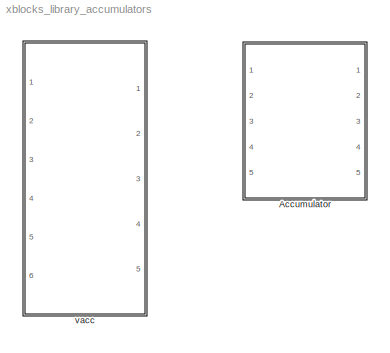
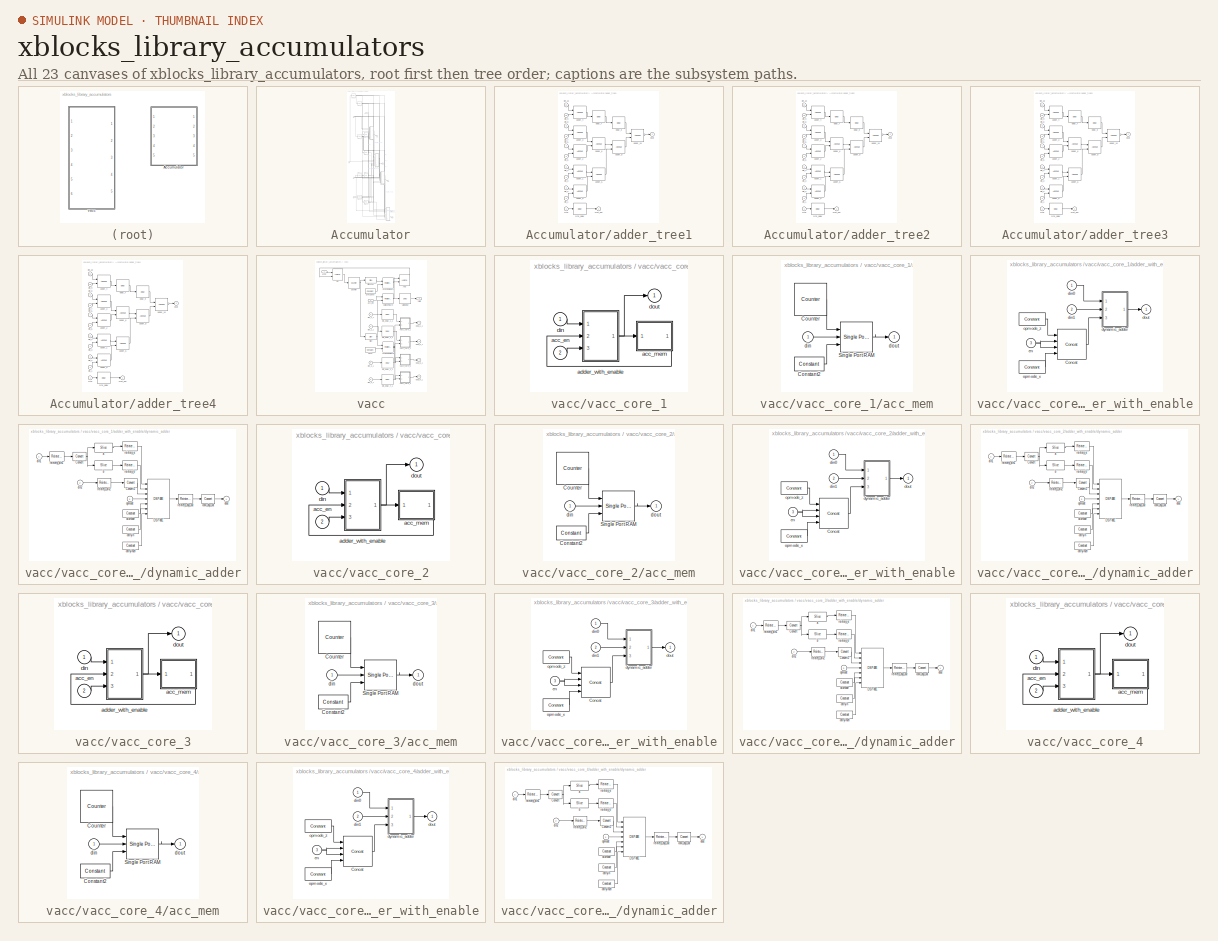
[diagram: thumbnail index - all 23 canvases of the model, root first then tree order]
MODEL xblocks_library_accumulators
KIND library
BLOCK [SubSystem] Accumulator
  AttributesFormatString = Accumulation Length = 10\nAdd Latency = 1\nDelay Length =1
  FunctionWithSeparateData = off
  MaskCallbackString = ||
  MaskDescription = Parallely accumulate for a given length.
  MaskEnableString = on,on,on
  MaskHideContents = off
  MaskIconFrame = on
  MaskIconOpaque = on
  MaskIconRotate = none
  MaskIconUnits = autoscale
  MaskInitialization = config.source=str2func('parallel_accumulator_init_xblock');\nconfig.depend=get_dependlist('parallel_accumulator');\nconfig.toplevel=gcb;\nset_param(gcb,'LinkStatus','inactive');\nxBlock(config, {config.toplevel,...\n    'n_inputs', n_inputs, ...\n    'len', len, ...\n    'add_latency', add_latency});
  MaskPortRotate = default
  MaskPromptString = number of inputs|Accumulation Lenght|Add Latency
  MaskStyleString = edit,edit,edit
  MaskToolTipString = on,on,on
  MaskTunableValueString = on,on,on
  MaskType = Parallel Accumulator (xBlock)
  MaskValueString = 4|10|1
  MaskVariables = n_inputs=@1;len=@2;add_latency=@3;
  MaskVisibilityString = on,on,on
  MinAlgLoopOccurrences = off
  Opaque = off
  Ports = [5, 5]
  PropExecContextOutsideSubsystem = off
  RTWSystemCode = Auto
  RequestExecContextInheritance = off
  SID = 1420
  UserData = DataTag0
  UserDataPersistent = on
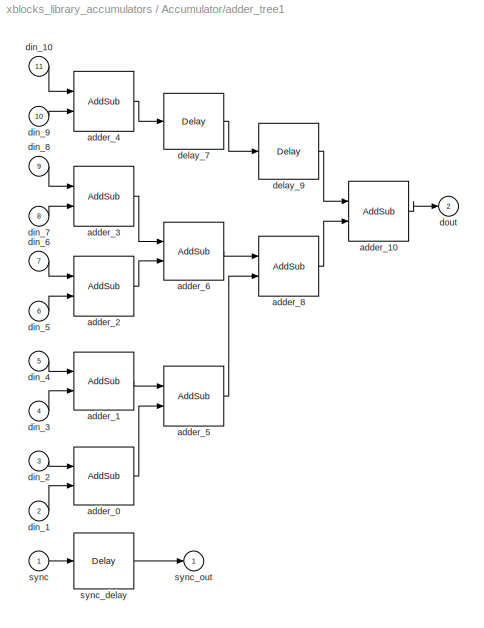
BLOCK [SubSystem] Accumulator/adder_tree1
  FunctionWithSeparateData = off
  MaskHideContents = off
  MinAlgLoopOccurrences = off
  Opaque = off
  Ports = [11, 2]
  PropExecContextOutsideSubsystem = off
  RTWSystemCode = Auto
  RequestExecContextInheritance = off
  SID = 1426
BLOCK [Reference] Accumulator/adder_tree1/adder_0  REF=xbsIndex_r4/AddSub
  Ports = [2, 1]
  SID = 1438
  SourceBlock = xbsIndex_r4/AddSub
  SourceType = Xilinx Adder/Subtracter Block
  arith_type = Unsigned
  bin_pt = 14
  block_type = addsub
  block_version = 11.4
  dbl_ovrd = off
  en = off
  has_advanced_control = 0
  hw_selection = Fabric
  latency = 1
  mode = Addition
  n_bits = 16
  overflow = Saturate
  pipelined = off
  precision = Full
  quantization = Round  (unbiased: +/- Inf)
  sg_icon_stat = 60,58,2,1,white,blue,0,8ff03b5e,right,
  sg_mask_display = fprintf('','COMMENT: begin icon graphics');\npatch([0 1 1 0 ],[0 0 1 1 ],[0.77 0.82 0.91]);\npatch([0.25 0.0833333 0.316667 0.0833333 0.25 0.5 0.566667 0.633333 0.9 0.683333 0.483333 0.333333 0.566667 0.333333 0.483333 0.683333 0.9 0.633333 0.566667 0.5 0.25 ],[0.103448 0.275862 0.517241 0.758621 0.931034 0.931034 0.862069 0.931034 0.931034 0.706897 0.913793 0.758621 0.517241 0.275862 0.12069 0.32...<+455ch>  <repeated x12 — deduplicated; at blocks: adder_0, adder_1, adder_6>
  sggui_pos = -1,-1,-1,-1
  use_behavioral_HDL = on
  use_carryin = off
  use_carryout = off
  xl_area = [0,0,0,0,0,0,0]
  xl_use_area = off
BLOCK [Reference] Accumulator/adder_tree1/adder_1  REF=xbsIndex_r4/AddSub
  Ports = [2, 1]
  SID = 1439
  SourceBlock = xbsIndex_r4/AddSub
  SourceType = Xilinx Adder/Subtracter Block
  arith_type = Unsigned
  bin_pt = 14
  block_type = addsub
  block_version = 11.4
  dbl_ovrd = off
  en = off
  has_advanced_control = 0
  hw_selection = Fabric
  latency = 1
  mode = Addition
  n_bits = 16
  overflow = Saturate
  pipelined = off
  precision = Full
  quantization = Round  (unbiased: +/- Inf)
  sg_icon_stat = 60,58,2,1,white,blue,0,8ff03b5e,right,
  sggui_pos = -1,-1,-1,-1
  use_behavioral_HDL = on
  use_carryin = off
  use_carryout = off
  xl_area = [0,0,0,0,0,0,0]
  xl_use_area = off
BLOCK [Reference] Accumulator/adder_tree1/adder_10  REF=xbsIndex_r4/AddSub
  Ports = [2, 1]
  SID = 1440
  SourceBlock = xbsIndex_r4/AddSub
  SourceType = Xilinx Adder/Subtracter Block
  arith_type = Unsigned
  bin_pt = 14
  block_type = addsub
  block_version = 11.4
  dbl_ovrd = off
  en = off
  has_advanced_control = 0
  hw_selection = Fabric
  latency = 1
  mode = Addition
  n_bits = 16
  overflow = Saturate
  pipelined = off
  precision = Full
  quantization = Round  (unbiased: +/- Inf)
  sg_icon_stat = 60,60,2,1,white,blue,0,8ff03b5e,right,
  sg_mask_display = fprintf('','COMMENT: begin icon graphics');\npatch([0 1 1 0 ],[0 0 1 1 ],[0.77 0.82 0.91]);\npatch([0.233333 0.0666667 0.3 0.0666667 0.233333 0.5 0.566667 0.633333 0.916667 0.7 0.483333 0.333333 0.583333 0.333333 0.483333 0.7 0.916667 0.633333 0.566667 0.5 0.233333 ],[0.1 0.266667 0.5 0.733333 0.9 0.9 0.833333 0.9 0.9 0.683333 0.9 0.75 0.5 0.25 0.1 0.316667 0.1 0.1 0.166667 0.1 0.1 ],[0.98 0.96 0....<+390ch>  <repeated x24 — deduplicated; at blocks: adder_10, adder_2, adder_3, adder_4, adder_5, adder_8>
  sggui_pos = -1,-1,-1,-1
  use_behavioral_HDL = on
  use_carryin = off
  use_carryout = off
  xl_area = [0,0,0,0,0,0,0]
  xl_use_area = off
BLOCK [Reference] Accumulator/adder_tree1/adder_2  REF=xbsIndex_r4/AddSub
  Ports = [2, 1]
  SID = 1441
  SourceBlock = xbsIndex_r4/AddSub
  SourceType = Xilinx Adder/Subtracter Block
  arith_type = Unsigned
  bin_pt = 14
  block_type = addsub
  block_version = 11.4
  dbl_ovrd = off
  en = off
  has_advanced_control = 0
  hw_selection = Fabric
  latency = 1
  mode = Addition
  n_bits = 16
  overflow = Saturate
  pipelined = off
  precision = Full
  quantization = Round  (unbiased: +/- Inf)
  sg_icon_stat = 60,60,2,1,white,blue,0,8ff03b5e,right,
  sggui_pos = -1,-1,-1,-1
  use_behavioral_HDL = on
  use_carryin = off
  use_carryout = off
  xl_area = [0,0,0,0,0,0,0]
  xl_use_area = off
BLOCK [Reference] Accumulator/adder_tree1/adder_3  REF=xbsIndex_r4/AddSub
  Ports = [2, 1]
  SID = 1442
  SourceBlock = xbsIndex_r4/AddSub
  SourceType = Xilinx Adder/Subtracter Block
  arith_type = Unsigned
  bin_pt = 14
  block_type = addsub
  block_version = 11.4
  dbl_ovrd = off
  en = off
  has_advanced_control = 0
  hw_selection = Fabric
  latency = 1
  mode = Addition
  n_bits = 16
  overflow = Saturate
  pipelined = off
  precision = Full
  quantization = Round  (unbiased: +/- Inf)
  sg_icon_stat = 60,60,2,1,white,blue,0,8ff03b5e,right,
  sggui_pos = -1,-1,-1,-1
  use_behavioral_HDL = on
  use_carryin = off
  use_carryout = off
  xl_area = [0,0,0,0,0,0,0]
  xl_use_area = off
BLOCK [Reference] Accumulator/adder_tree1/adder_4  REF=xbsIndex_r4/AddSub
  Ports = [2, 1]
  SID = 1443
  SourceBlock = xbsIndex_r4/AddSub
  SourceType = Xilinx Adder/Subtracter Block
  arith_type = Unsigned
  bin_pt = 14
  block_type = addsub
  block_version = 11.4
  dbl_ovrd = off
  en = off
  has_advanced_control = 0
  hw_selection = Fabric
  latency = 1
  mode = Addition
  n_bits = 16
  overflow = Saturate
  pipelined = off
  precision = Full
  quantization = Round  (unbiased: +/- Inf)
  sg_icon_stat = 60,60,2,1,white,blue,0,8ff03b5e,right,
  sggui_pos = -1,-1,-1,-1
  use_behavioral_HDL = on
  use_carryin = off
  use_carryout = off
  xl_area = [0,0,0,0,0,0,0]
  xl_use_area = off
BLOCK [Reference] Accumulator/adder_tree1/adder_5  REF=xbsIndex_r4/AddSub
  Ports = [2, 1]
  SID = 1444
  SourceBlock = xbsIndex_r4/AddSub
  SourceType = Xilinx Adder/Subtracter Block
  arith_type = Unsigned
  bin_pt = 14
  block_type = addsub
  block_version = 11.4
  dbl_ovrd = off
  en = off
  has_advanced_control = 0
  hw_selection = Fabric
  latency = 1
  mode = Addition
  n_bits = 16
  overflow = Saturate
  pipelined = off
  precision = Full
  quantization = Round  (unbiased: +/- Inf)
  sg_icon_stat = 60,60,2,1,white,blue,0,8ff03b5e,right,
  sggui_pos = -1,-1,-1,-1
  use_behavioral_HDL = on
  use_carryin = off
  use_carryout = off
  xl_area = [0,0,0,0,0,0,0]
  xl_use_area = off
BLOCK [Reference] Accumulator/adder_tree1/adder_6  REF=xbsIndex_r4/AddSub
  Ports = [2, 1]
  SID = 1445
  SourceBlock = xbsIndex_r4/AddSub
  SourceType = Xilinx Adder/Subtracter Block
  arith_type = Unsigned
  bin_pt = 14
  block_type = addsub
  block_version = 11.4
  dbl_ovrd = off
  en = off
  has_advanced_control = 0
  hw_selection = Fabric
  latency = 1
  mode = Addition
  n_bits = 16
  overflow = Saturate
  pipelined = off
  precision = Full
  quantization = Round  (unbiased: +/- Inf)
  sg_icon_stat = 60,58,2,1,white,blue,0,8ff03b5e,right,
  sggui_pos = -1,-1,-1,-1
  use_behavioral_HDL = on
  use_carryin = off
  use_carryout = off
  xl_area = [0,0,0,0,0,0,0]
  xl_use_area = off
BLOCK [Reference] Accumulator/adder_tree1/adder_8  REF=xbsIndex_r4/AddSub
  Ports = [2, 1]
  SID = 1446
  SourceBlock = xbsIndex_r4/AddSub
  SourceType = Xilinx Adder/Subtracter Block
  arith_type = Unsigned
  bin_pt = 14
  block_type = addsub
  block_version = 11.4
  dbl_ovrd = off
  en = off
  has_advanced_control = 0
  hw_selection = Fabric
  latency = 1
  mode = Addition
  n_bits = 16
  overflow = Saturate
  pipelined = off
  precision = Full
  quantization = Round  (unbiased: +/- Inf)
  sg_icon_stat = 60,60,2,1,white,blue,0,8ff03b5e,right,
  sggui_pos = -1,-1,-1,-1
  use_behavioral_HDL = on
  use_carryin = off
  use_carryout = off
  xl_area = [0,0,0,0,0,0,0]
  xl_use_area = off
BLOCK [Reference] Accumulator/adder_tree1/delay_7  REF=xbsIndex_r4/Delay
  Ports = [1, 1]
  SID = 1447
  SourceBlock = xbsIndex_r4/Delay
  SourceType = Xilinx Delay Block
  block_type = delay
  block_version = 11.4
  dbl_ovrd = off
  en = off
  has_advanced_control = 0
  infoedit = Hardware notes: A delay line is a chain, each link of which is an SRL16 followed by a flip-flop.
  latency = 1
  reg_retiming = off
  sg_icon_stat = 60,56,1,1,white,blue,0,07b98262,right,
  sg_mask_display = fprintf('','COMMENT: begin icon graphics');\npatch([0 1 1 0 ],[0 0 1 1 ],[0.77 0.82 0.91]);\npatch([0.25 0.1 0.316667 0.1 0.25 0.5 0.566667 0.633333 0.9 0.683333 0.483333 0.333333 0.533333 0.333333 0.483333 0.683333 0.9 0.633333 0.566667 0.5 0.25 ],[0.107143 0.267857 0.5 0.732143 0.892857 0.892857 0.821429 0.892857 0.892857 0.660714 0.875 0.714286 0.5 0.285714 0.125 0.339286 0.107143 0.107143 0.17...<+249ch>  <repeated x26 — deduplicated; at blocks: delay_7, delay_9, sync_delay, delay1_1, delay1_2, delay1_3, delay1_4, delay2_1, delay2_2, delay2_3, delay2_4, delay3_4, ValidDelay, din_delay_1_1, din_delay_2_1, din_delay_3_1, +1 more>
  sggui_pos = -1,-1,-1,-1
  xl_area = [0,0,0,0,0,0,0]
  xl_use_area = off
BLOCK [Reference] Accumulator/adder_tree1/delay_9  REF=xbsIndex_r4/Delay
  Ports = [1, 1]
  SID = 1448
  SourceBlock = xbsIndex_r4/Delay
  SourceType = Xilinx Delay Block
  block_type = delay
  block_version = 11.4
  dbl_ovrd = off
  en = off
  has_advanced_control = 0
  infoedit = Hardware notes: A delay line is a chain, each link of which is an SRL16 followed by a flip-flop.
  latency = 1
  reg_retiming = off
  sg_icon_stat = 60,56,1,1,white,blue,0,07b98262,right,
  sggui_pos = -1,-1,-1,-1
  xl_area = [0,0,0,0,0,0,0]
  xl_use_area = off
BLOCK [Inport] Accumulator/adder_tree1/din_1
  IconDisplay = Port number
  Port = 2
  SID = 1428
BLOCK [Inport] Accumulator/adder_tree1/din_10
  IconDisplay = Port number
  Port = 11
  SID = 1437
BLOCK [Inport] Accumulator/adder_tree1/din_2
  IconDisplay = Port number
  Port = 3
  SID = 1429
BLOCK [Inport] Accumulator/adder_tree1/din_3
  IconDisplay = Port number
  Port = 4
  SID = 1430
BLOCK [Inport] Accumulator/adder_tree1/din_4
  IconDisplay = Port number
  Port = 5
  SID = 1431
BLOCK [Inport] Accumulator/adder_tree1/din_5
  IconDisplay = Port number
  Port = 6
  SID = 1432
BLOCK [Inport] Accumulator/adder_tree1/din_6
  IconDisplay = Port number
  Port = 7
  SID = 1433
BLOCK [Inport] Accumulator/adder_tree1/din_7
  IconDisplay = Port number
  Port = 8
  SID = 1434
BLOCK [Inport] Accumulator/adder_tree1/din_8
  IconDisplay = Port number
  Port = 9
  SID = 1435
BLOCK [Inport] Accumulator/adder_tree1/din_9
  IconDisplay = Port number
  Port = 10
  SID = 1436
BLOCK [Outport] Accumulator/adder_tree1/dout
  IconDisplay = Port number
  Port = 2
  SID = 1451
BLOCK [Inport] Accumulator/adder_tree1/sync
  IconDisplay = Port number
  SID = 1427
BLOCK [Reference] Accumulator/adder_tree1/sync_delay  REF=xbsIndex_r4/Delay
  Ports = [1, 1]
  SID = 1449
  SourceBlock = xbsIndex_r4/Delay
  SourceType = Xilinx Delay Block
  block_type = delay
  block_version = 11.4
  dbl_ovrd = off
  en = off
  has_advanced_control = 0
  infoedit = Hardware notes: A delay line is a chain, each link of which is an SRL16 followed by a flip-flop.
  latency = 4
  reg_retiming = off
  sg_icon_stat = 60,56,1,1,white,blue,0,d390c2d8,right,
  sggui_pos = -1,-1,-1,-1
  xl_area = [0,0,0,0,0,0,0]
  xl_use_area = off
BLOCK [Outport] Accumulator/adder_tree1/sync_out
  IconDisplay = Port number
  SID = 1450
BLOCK [SubSystem] Accumulator/adder_tree2
  FunctionWithSeparateData = off
  MaskHideContents = off
  MinAlgLoopOccurrences = off
  Opaque = off
  Ports = [11, 2]
  PropExecContextOutsideSubsystem = off
  RTWSystemCode = Auto
  RequestExecContextInheritance = off
  SID = 1452
BLOCK [Reference] Accumulator/adder_tree2/adder_0  REF=xbsIndex_r4/AddSub
  Ports = [2, 1]
  SID = 1464
  SourceBlock = xbsIndex_r4/AddSub
  SourceType = Xilinx Adder/Subtracter Block
  arith_type = Unsigned
  bin_pt = 14
  block_type = addsub
  block_version = 11.4
  dbl_ovrd = off
  en = off
  has_advanced_control = 0
  hw_selection = Fabric
  latency = 1
  mode = Addition
  n_bits = 16
  overflow = Saturate
  pipelined = off
  precision = Full
  quantization = Round  (unbiased: +/- Inf)
  sg_icon_stat = 60,58,2,1,white,blue,0,8ff03b5e,right,
  sggui_pos = -1,-1,-1,-1
  use_behavioral_HDL = on
  use_carryin = off
  use_carryout = off
  xl_area = [0,0,0,0,0,0,0]
  xl_use_area = off
BLOCK [Reference] Accumulator/adder_tree2/adder_1  REF=xbsIndex_r4/AddSub
  Ports = [2, 1]
  SID = 1465
  SourceBlock = xbsIndex_r4/AddSub
  SourceType = Xilinx Adder/Subtracter Block
  arith_type = Unsigned
  bin_pt = 14
  block_type = addsub
  block_version = 11.4
  dbl_ovrd = off
  en = off
  has_advanced_control = 0
  hw_selection = Fabric
  latency = 1
  mode = Addition
  n_bits = 16
  overflow = Saturate
  pipelined = off
  precision = Full
  quantization = Round  (unbiased: +/- Inf)
  sg_icon_stat = 60,58,2,1,white,blue,0,8ff03b5e,right,
  sggui_pos = -1,-1,-1,-1
  use_behavioral_HDL = on
  use_carryin = off
  use_carryout = off
  xl_area = [0,0,0,0,0,0,0]
  xl_use_area = off
BLOCK [Reference] Accumulator/adder_tree2/adder_10  REF=xbsIndex_r4/AddSub
  Ports = [2, 1]
  SID = 1466
  SourceBlock = xbsIndex_r4/AddSub
  SourceType = Xilinx Adder/Subtracter Block
  arith_type = Unsigned
  bin_pt = 14
  block_type = addsub
  block_version = 11.4
  dbl_ovrd = off
  en = off
  has_advanced_control = 0
  hw_selection = Fabric
  latency = 1
  mode = Addition
  n_bits = 16
  overflow = Saturate
  pipelined = off
  precision = Full
  quantization = Round  (unbiased: +/- Inf)
  sg_icon_stat = 60,60,2,1,white,blue,0,8ff03b5e,right,
  sggui_pos = -1,-1,-1,-1
  use_behavioral_HDL = on
  use_carryin = off
  use_carryout = off
  xl_area = [0,0,0,0,0,0,0]
  xl_use_area = off
BLOCK [Reference] Accumulator/adder_tree2/adder_2  REF=xbsIndex_r4/AddSub
  Ports = [2, 1]
  SID = 1467
  SourceBlock = xbsIndex_r4/AddSub
  SourceType = Xilinx Adder/Subtracter Block
  arith_type = Unsigned
  bin_pt = 14
  block_type = addsub
  block_version = 11.4
  dbl_ovrd = off
  en = off
  has_advanced_control = 0
  hw_selection = Fabric
  latency = 1
  mode = Addition
  n_bits = 16
  overflow = Saturate
  pipelined = off
  precision = Full
  quantization = Round  (unbiased: +/- Inf)
  sg_icon_stat = 60,60,2,1,white,blue,0,8ff03b5e,right,
  sggui_pos = -1,-1,-1,-1
  use_behavioral_HDL = on
  use_carryin = off
  use_carryout = off
  xl_area = [0,0,0,0,0,0,0]
  xl_use_area = off
BLOCK [Reference] Accumulator/adder_tree2/adder_3  REF=xbsIndex_r4/AddSub
  Ports = [2, 1]
  SID = 1468
  SourceBlock = xbsIndex_r4/AddSub
  SourceType = Xilinx Adder/Subtracter Block
  arith_type = Unsigned
  bin_pt = 14
  block_type = addsub
  block_version = 11.4
  dbl_ovrd = off
  en = off
  has_advanced_control = 0
  hw_selection = Fabric
  latency = 1
  mode = Addition
  n_bits = 16
  overflow = Saturate
  pipelined = off
  precision = Full
  quantization = Round  (unbiased: +/- Inf)
  sg_icon_stat = 60,60,2,1,white,blue,0,8ff03b5e,right,
  sggui_pos = -1,-1,-1,-1
  use_behavioral_HDL = on
  use_carryin = off
  use_carryout = off
  xl_area = [0,0,0,0,0,0,0]
  xl_use_area = off
BLOCK [Reference] Accumulator/adder_tree2/adder_4  REF=xbsIndex_r4/AddSub
  Ports = [2, 1]
  SID = 1469
  SourceBlock = xbsIndex_r4/AddSub
  SourceType = Xilinx Adder/Subtracter Block
  arith_type = Unsigned
  bin_pt = 14
  block_type = addsub
  block_version = 11.4
  dbl_ovrd = off
  en = off
  has_advanced_control = 0
  hw_selection = Fabric
  latency = 1
  mode = Addition
  n_bits = 16
  overflow = Saturate
  pipelined = off
  precision = Full
  quantization = Round  (unbiased: +/- Inf)
  sg_icon_stat = 60,60,2,1,white,blue,0,8ff03b5e,right,
  sggui_pos = -1,-1,-1,-1
  use_behavioral_HDL = on
  use_carryin = off
  use_carryout = off
  xl_area = [0,0,0,0,0,0,0]
  xl_use_area = off
BLOCK [Reference] Accumulator/adder_tree2/adder_5  REF=xbsIndex_r4/AddSub
  Ports = [2, 1]
  SID = 1470
  SourceBlock = xbsIndex_r4/AddSub
  SourceType = Xilinx Adder/Subtracter Block
  arith_type = Unsigned
  bin_pt = 14
  block_type = addsub
  block_version = 11.4
  dbl_ovrd = off
  en = off
  has_advanced_control = 0
  hw_selection = Fabric
  latency = 1
  mode = Addition
  n_bits = 16
  overflow = Saturate
  pipelined = off
  precision = Full
  quantization = Round  (unbiased: +/- Inf)
  sg_icon_stat = 60,60,2,1,white,blue,0,8ff03b5e,right,
  sggui_pos = -1,-1,-1,-1
  use_behavioral_HDL = on
  use_carryin = off
  use_carryout = off
  xl_area = [0,0,0,0,0,0,0]
  xl_use_area = off
BLOCK [Reference] Accumulator/adder_tree2/adder_6  REF=xbsIndex_r4/AddSub
  Ports = [2, 1]
  SID = 1471
  SourceBlock = xbsIndex_r4/AddSub
  SourceType = Xilinx Adder/Subtracter Block
  arith_type = Unsigned
  bin_pt = 14
  block_type = addsub
  block_version = 11.4
  dbl_ovrd = off
  en = off
  has_advanced_control = 0
  hw_selection = Fabric
  latency = 1
  mode = Addition
  n_bits = 16
  overflow = Saturate
  pipelined = off
  precision = Full
  quantization = Round  (unbiased: +/- Inf)
  sg_icon_stat = 60,58,2,1,white,blue,0,8ff03b5e,right,
  sggui_pos = -1,-1,-1,-1
  use_behavioral_HDL = on
  use_carryin = off
  use_carryout = off
  xl_area = [0,0,0,0,0,0,0]
  xl_use_area = off
BLOCK [Reference] Accumulator/adder_tree2/adder_8  REF=xbsIndex_r4/AddSub
  Ports = [2, 1]
  SID = 1472
  SourceBlock = xbsIndex_r4/AddSub
  SourceType = Xilinx Adder/Subtracter Block
  arith_type = Unsigned
  bin_pt = 14
  block_type = addsub
  block_version = 11.4
  dbl_ovrd = off
  en = off
  has_advanced_control = 0
  hw_selection = Fabric
  latency = 1
  mode = Addition
  n_bits = 16
  overflow = Saturate
  pipelined = off
  precision = Full
  quantization = Round  (unbiased: +/- Inf)
  sg_icon_stat = 60,60,2,1,white,blue,0,8ff03b5e,right,
  sggui_pos = -1,-1,-1,-1
  use_behavioral_HDL = on
  use_carryin = off
  use_carryout = off
  xl_area = [0,0,0,0,0,0,0]
  xl_use_area = off
BLOCK [Reference] Accumulator/adder_tree2/delay_7  REF=xbsIndex_r4/Delay
  Ports = [1, 1]
  SID = 1473
  SourceBlock = xbsIndex_r4/Delay
  SourceType = Xilinx Delay Block
  block_type = delay
  block_version = 11.4
  dbl_ovrd = off
  en = off
  has_advanced_control = 0
  infoedit = Hardware notes: A delay line is a chain, each link of which is an SRL16 followed by a flip-flop.
  latency = 1
  reg_retiming = off
  sg_icon_stat = 60,56,1,1,white,blue,0,07b98262,right,
  sggui_pos = -1,-1,-1,-1
  xl_area = [0,0,0,0,0,0,0]
  xl_use_area = off
BLOCK [Reference] Accumulator/adder_tree2/delay_9  REF=xbsIndex_r4/Delay
  Ports = [1, 1]
  SID = 1474
  SourceBlock = xbsIndex_r4/Delay
  SourceType = Xilinx Delay Block
  block_type = delay
  block_version = 11.4
  dbl_ovrd = off
  en = off
  has_advanced_control = 0
  infoedit = Hardware notes: A delay line is a chain, each link of which is an SRL16 followed by a flip-flop.
  latency = 1
  reg_retiming = off
  sg_icon_stat = 60,56,1,1,white,blue,0,07b98262,right,
  sggui_pos = -1,-1,-1,-1
  xl_area = [0,0,0,0,0,0,0]
  xl_use_area = off
BLOCK [Inport] Accumulator/adder_tree2/din_1
  IconDisplay = Port number
  Port = 2
  SID = 1454
BLOCK [Inport] Accumulator/adder_tree2/din_10
  IconDisplay = Port number
  Port = 11
  SID = 1463
BLOCK [Inport] Accumulator/adder_tree2/din_2
  IconDisplay = Port number
  Port = 3
  SID = 1455
BLOCK [Inport] Accumulator/adder_tree2/din_3
  IconDisplay = Port number
  Port = 4
  SID = 1456
BLOCK [Inport] Accumulator/adder_tree2/din_4
  IconDisplay = Port number
  Port = 5
  SID = 1457
BLOCK [Inport] Accumulator/adder_tree2/din_5
  IconDisplay = Port number
  Port = 6
  SID = 1458
BLOCK [Inport] Accumulator/adder_tree2/din_6
  IconDisplay = Port number
  Port = 7
  SID = 1459
BLOCK [Inport] Accumulator/adder_tree2/din_7
  IconDisplay = Port number
  Port = 8
  SID = 1460
BLOCK [Inport] Accumulator/adder_tree2/din_8
  IconDisplay = Port number
  Port = 9
  SID = 1461
BLOCK [Inport] Accumulator/adder_tree2/din_9
  IconDisplay = Port number
  Port = 10
  SID = 1462
BLOCK [Outport] Accumulator/adder_tree2/dout
  IconDisplay = Port number
  Port = 2
  SID = 1477
BLOCK [Inport] Accumulator/adder_tree2/sync
  IconDisplay = Port number
  SID = 1453
BLOCK [Reference] Accumulator/adder_tree2/sync_delay  REF=xbsIndex_r4/Delay
  Ports = [1, 1]
  SID = 1475
  SourceBlock = xbsIndex_r4/Delay
  SourceType = Xilinx Delay Block
  block_type = delay
  block_version = 11.4
  dbl_ovrd = off
  en = off
  has_advanced_control = 0
  infoedit = Hardware notes: A delay line is a chain, each link of which is an SRL16 followed by a flip-flop.
  latency = 4
  reg_retiming = off
  sg_icon_stat = 60,56,1,1,white,blue,0,d390c2d8,right,
  sggui_pos = -1,-1,-1,-1
  xl_area = [0,0,0,0,0,0,0]
  xl_use_area = off
BLOCK [Outport] Accumulator/adder_tree2/sync_out
  IconDisplay = Port number
  SID = 1476
BLOCK [SubSystem] Accumulator/adder_tree3
  FunctionWithSeparateData = off
  MaskHideContents = off
  MinAlgLoopOccurrences = off
  Opaque = off
  Ports = [11, 2]
  PropExecContextOutsideSubsystem = off
  RTWSystemCode = Auto
  RequestExecContextInheritance = off
  SID = 1478
BLOCK [Reference] Accumulator/adder_tree3/adder_0  REF=xbsIndex_r4/AddSub
  Ports = [2, 1]
  SID = 1490
  SourceBlock = xbsIndex_r4/AddSub
  SourceType = Xilinx Adder/Subtracter Block
  arith_type = Unsigned
  bin_pt = 14
  block_type = addsub
  block_version = 11.4
  dbl_ovrd = off
  en = off
  has_advanced_control = 0
  hw_selection = Fabric
  latency = 1
  mode = Addition
  n_bits = 16
  overflow = Saturate
  pipelined = off
  precision = Full
  quantization = Round  (unbiased: +/- Inf)
  sg_icon_stat = 60,58,2,1,white,blue,0,8ff03b5e,right,
  sggui_pos = -1,-1,-1,-1
  use_behavioral_HDL = on
  use_carryin = off
  use_carryout = off
  xl_area = [0,0,0,0,0,0,0]
  xl_use_area = off
BLOCK [Reference] Accumulator/adder_tree3/adder_1  REF=xbsIndex_r4/AddSub
  Ports = [2, 1]
  SID = 1491
  SourceBlock = xbsIndex_r4/AddSub
  SourceType = Xilinx Adder/Subtracter Block
  arith_type = Unsigned
  bin_pt = 14
  block_type = addsub
  block_version = 11.4
  dbl_ovrd = off
  en = off
  has_advanced_control = 0
  hw_selection = Fabric
  latency = 1
  mode = Addition
  n_bits = 16
  overflow = Saturate
  pipelined = off
  precision = Full
  quantization = Round  (unbiased: +/- Inf)
  sg_icon_stat = 60,58,2,1,white,blue,0,8ff03b5e,right,
  sggui_pos = -1,-1,-1,-1
  use_behavioral_HDL = on
  use_carryin = off
  use_carryout = off
  xl_area = [0,0,0,0,0,0,0]
  xl_use_area = off
BLOCK [Reference] Accumulator/adder_tree3/adder_10  REF=xbsIndex_r4/AddSub
  Ports = [2, 1]
  SID = 1492
  SourceBlock = xbsIndex_r4/AddSub
  SourceType = Xilinx Adder/Subtracter Block
  arith_type = Unsigned
  bin_pt = 14
  block_type = addsub
  block_version = 11.4
  dbl_ovrd = off
  en = off
  has_advanced_control = 0
  hw_selection = Fabric
  latency = 1
  mode = Addition
  n_bits = 16
  overflow = Saturate
  pipelined = off
  precision = Full
  quantization = Round  (unbiased: +/- Inf)
  sg_icon_stat = 60,60,2,1,white,blue,0,8ff03b5e,right,
  sggui_pos = -1,-1,-1,-1
  use_behavioral_HDL = on
  use_carryin = off
  use_carryout = off
  xl_area = [0,0,0,0,0,0,0]
  xl_use_area = off
BLOCK [Reference] Accumulator/adder_tree3/adder_2  REF=xbsIndex_r4/AddSub
  Ports = [2, 1]
  SID = 1493
  SourceBlock = xbsIndex_r4/AddSub
  SourceType = Xilinx Adder/Subtracter Block
  arith_type = Unsigned
  bin_pt = 14
  block_type = addsub
  block_version = 11.4
  dbl_ovrd = off
  en = off
  has_advanced_control = 0
  hw_selection = Fabric
  latency = 1
  mode = Addition
  n_bits = 16
  overflow = Saturate
  pipelined = off
  precision = Full
  quantization = Round  (unbiased: +/- Inf)
  sg_icon_stat = 60,60,2,1,white,blue,0,8ff03b5e,right,
  sggui_pos = -1,-1,-1,-1
  use_behavioral_HDL = on
  use_carryin = off
  use_carryout = off
  xl_area = [0,0,0,0,0,0,0]
  xl_use_area = off
BLOCK [Reference] Accumulator/adder_tree3/adder_3  REF=xbsIndex_r4/AddSub
  Ports = [2, 1]
  SID = 1494
  SourceBlock = xbsIndex_r4/AddSub
  SourceType = Xilinx Adder/Subtracter Block
  arith_type = Unsigned
  bin_pt = 14
  block_type = addsub
  block_version = 11.4
  dbl_ovrd = off
  en = off
  has_advanced_control = 0
  hw_selection = Fabric
  latency = 1
  mode = Addition
  n_bits = 16
  overflow = Saturate
  pipelined = off
  precision = Full
  quantization = Round  (unbiased: +/- Inf)
  sg_icon_stat = 60,60,2,1,white,blue,0,8ff03b5e,right,
  sggui_pos = -1,-1,-1,-1
  use_behavioral_HDL = on
  use_carryin = off
  use_carryout = off
  xl_area = [0,0,0,0,0,0,0]
  xl_use_area = off
BLOCK [Reference] Accumulator/adder_tree3/adder_4  REF=xbsIndex_r4/AddSub
  Ports = [2, 1]
  SID = 1495
  SourceBlock = xbsIndex_r4/AddSub
  SourceType = Xilinx Adder/Subtracter Block
  arith_type = Unsigned
  bin_pt = 14
  block_type = addsub
  block_version = 11.4
  dbl_ovrd = off
  en = off
  has_advanced_control = 0
  hw_selection = Fabric
  latency = 1
  mode = Addition
  n_bits = 16
  overflow = Saturate
  pipelined = off
  precision = Full
  quantization = Round  (unbiased: +/- Inf)
  sg_icon_stat = 60,60,2,1,white,blue,0,8ff03b5e,right,
  sggui_pos = -1,-1,-1,-1
  use_behavioral_HDL = on
  use_carryin = off
  use_carryout = off
  xl_area = [0,0,0,0,0,0,0]
  xl_use_area = off
BLOCK [Reference] Accumulator/adder_tree3/adder_5  REF=xbsIndex_r4/AddSub
  Ports = [2, 1]
  SID = 1496
  SourceBlock = xbsIndex_r4/AddSub
  SourceType = Xilinx Adder/Subtracter Block
  arith_type = Unsigned
  bin_pt = 14
  block_type = addsub
  block_version = 11.4
  dbl_ovrd = off
  en = off
  has_advanced_control = 0
  hw_selection = Fabric
  latency = 1
  mode = Addition
  n_bits = 16
  overflow = Saturate
  pipelined = off
  precision = Full
  quantization = Round  (unbiased: +/- Inf)
  sg_icon_stat = 60,60,2,1,white,blue,0,8ff03b5e,right,
  sggui_pos = -1,-1,-1,-1
  use_behavioral_HDL = on
  use_carryin = off
  use_carryout = off
  xl_area = [0,0,0,0,0,0,0]
  xl_use_area = off
BLOCK [Reference] Accumulator/adder_tree3/adder_6  REF=xbsIndex_r4/AddSub
  Ports = [2, 1]
  SID = 1497
  SourceBlock = xbsIndex_r4/AddSub
  SourceType = Xilinx Adder/Subtracter Block
  arith_type = Unsigned
  bin_pt = 14
  block_type = addsub
  block_version = 11.4
  dbl_ovrd = off
  en = off
  has_advanced_control = 0
  hw_selection = Fabric
  latency = 1
  mode = Addition
  n_bits = 16
  overflow = Saturate
  pipelined = off
  precision = Full
  quantization = Round  (unbiased: +/- Inf)
  sg_icon_stat = 60,58,2,1,white,blue,0,8ff03b5e,right,
  sggui_pos = -1,-1,-1,-1
  use_behavioral_HDL = on
  use_carryin = off
  use_carryout = off
  xl_area = [0,0,0,0,0,0,0]
  xl_use_area = off
BLOCK [Reference] Accumulator/adder_tree3/adder_8  REF=xbsIndex_r4/AddSub
  Ports = [2, 1]
  SID = 1498
  SourceBlock = xbsIndex_r4/AddSub
  SourceType = Xilinx Adder/Subtracter Block
  arith_type = Unsigned
  bin_pt = 14
  block_type = addsub
  block_version = 11.4
  dbl_ovrd = off
  en = off
  has_advanced_control = 0
  hw_selection = Fabric
  latency = 1
  mode = Addition
  n_bits = 16
  overflow = Saturate
  pipelined = off
  precision = Full
  quantization = Round  (unbiased: +/- Inf)
  sg_icon_stat = 60,60,2,1,white,blue,0,8ff03b5e,right,
  sggui_pos = -1,-1,-1,-1
  use_behavioral_HDL = on
  use_carryin = off
  use_carryout = off
  xl_area = [0,0,0,0,0,0,0]
  xl_use_area = off
BLOCK [Reference] Accumulator/adder_tree3/delay_7  REF=xbsIndex_r4/Delay
  Ports = [1, 1]
  SID = 1499
  SourceBlock = xbsIndex_r4/Delay
  SourceType = Xilinx Delay Block
  block_type = delay
  block_version = 11.4
  dbl_ovrd = off
  en = off
  has_advanced_control = 0
  infoedit = Hardware notes: A delay line is a chain, each link of which is an SRL16 followed by a flip-flop.
  latency = 1
  reg_retiming = off
  sg_icon_stat = 60,56,1,1,white,blue,0,07b98262,right,
  sggui_pos = -1,-1,-1,-1
  xl_area = [0,0,0,0,0,0,0]
  xl_use_area = off
BLOCK [Reference] Accumulator/adder_tree3/delay_9  REF=xbsIndex_r4/Delay
  Ports = [1, 1]
  SID = 1500
  SourceBlock = xbsIndex_r4/Delay
  SourceType = Xilinx Delay Block
  block_type = delay
  block_version = 11.4
  dbl_ovrd = off
  en = off
  has_advanced_control = 0
  infoedit = Hardware notes: A delay line is a chain, each link of which is an SRL16 followed by a flip-flop.
  latency = 1
  reg_retiming = off
  sg_icon_stat = 60,56,1,1,white,blue,0,07b98262,right,
  sggui_pos = -1,-1,-1,-1
  xl_area = [0,0,0,0,0,0,0]
  xl_use_area = off
BLOCK [Inport] Accumulator/adder_tree3/din_1
  IconDisplay = Port number
  Port = 2
  SID = 1480
BLOCK [Inport] Accumulator/adder_tree3/din_10
  IconDisplay = Port number
  Port = 11
  SID = 1489
BLOCK [Inport] Accumulator/adder_tree3/din_2
  IconDisplay = Port number
  Port = 3
  SID = 1481
BLOCK [Inport] Accumulator/adder_tree3/din_3
  IconDisplay = Port number
  Port = 4
  SID = 1482
BLOCK [Inport] Accumulator/adder_tree3/din_4
  IconDisplay = Port number
  Port = 5
  SID = 1483
BLOCK [Inport] Accumulator/adder_tree3/din_5
  IconDisplay = Port number
  Port = 6
  SID = 1484
BLOCK [Inport] Accumulator/adder_tree3/din_6
  IconDisplay = Port number
  Port = 7
  SID = 1485
BLOCK [Inport] Accumulator/adder_tree3/din_7
  IconDisplay = Port number
  Port = 8
  SID = 1486
BLOCK [Inport] Accumulator/adder_tree3/din_8
  IconDisplay = Port number
  Port = 9
  SID = 1487
BLOCK [Inport] Accumulator/adder_tree3/din_9
  IconDisplay = Port number
  Port = 10
  SID = 1488
BLOCK [Outport] Accumulator/adder_tree3/dout
  IconDisplay = Port number
  Port = 2
  SID = 1503
BLOCK [Inport] Accumulator/adder_tree3/sync
  IconDisplay = Port number
  SID = 1479
BLOCK [Reference] Accumulator/adder_tree3/sync_delay  REF=xbsIndex_r4/Delay
  Ports = [1, 1]
  SID = 1501
  SourceBlock = xbsIndex_r4/Delay
  SourceType = Xilinx Delay Block
  block_type = delay
  block_version = 11.4
  dbl_ovrd = off
  en = off
  has_advanced_control = 0
  infoedit = Hardware notes: A delay line is a chain, each link of which is an SRL16 followed by a flip-flop.
  latency = 4
  reg_retiming = off
  sg_icon_stat = 60,56,1,1,white,blue,0,d390c2d8,right,
  sggui_pos = -1,-1,-1,-1
  xl_area = [0,0,0,0,0,0,0]
  xl_use_area = off
BLOCK [Outport] Accumulator/adder_tree3/sync_out
  IconDisplay = Port number
  SID = 1502
BLOCK [SubSystem] Accumulator/adder_tree4
  FunctionWithSeparateData = off
  MaskHideContents = off
  MinAlgLoopOccurrences = off
  Opaque = off
  Ports = [11, 2]
  PropExecContextOutsideSubsystem = off
  RTWSystemCode = Auto
  RequestExecContextInheritance = off
  SID = 1504
BLOCK [Reference] Accumulator/adder_tree4/adder_0  REF=xbsIndex_r4/AddSub
  Ports = [2, 1]
  SID = 1516
  SourceBlock = xbsIndex_r4/AddSub
  SourceType = Xilinx Adder/Subtracter Block
  arith_type = Unsigned
  bin_pt = 14
  block_type = addsub
  block_version = 11.4
  dbl_ovrd = off
  en = off
  has_advanced_control = 0
  hw_selection = Fabric
  latency = 1
  mode = Addition
  n_bits = 16
  overflow = Saturate
  pipelined = off
  precision = Full
  quantization = Round  (unbiased: +/- Inf)
  sg_icon_stat = 60,58,2,1,white,blue,0,8ff03b5e,right,
  sggui_pos = -1,-1,-1,-1
  use_behavioral_HDL = on
  use_carryin = off
  use_carryout = off
  xl_area = [0,0,0,0,0,0,0]
  xl_use_area = off
BLOCK [Reference] Accumulator/adder_tree4/adder_1  REF=xbsIndex_r4/AddSub
  Ports = [2, 1]
  SID = 1517
  SourceBlock = xbsIndex_r4/AddSub
  SourceType = Xilinx Adder/Subtracter Block
  arith_type = Unsigned
  bin_pt = 14
  block_type = addsub
  block_version = 11.4
  dbl_ovrd = off
  en = off
  has_advanced_control = 0
  hw_selection = Fabric
  latency = 1
  mode = Addition
  n_bits = 16
  overflow = Saturate
  pipelined = off
  precision = Full
  quantization = Round  (unbiased: +/- Inf)
  sg_icon_stat = 60,58,2,1,white,blue,0,8ff03b5e,right,
  sggui_pos = -1,-1,-1,-1
  use_behavioral_HDL = on
  use_carryin = off
  use_carryout = off
  xl_area = [0,0,0,0,0,0,0]
  xl_use_area = off
BLOCK [Reference] Accumulator/adder_tree4/adder_10  REF=xbsIndex_r4/AddSub
  Ports = [2, 1]
  SID = 1518
  SourceBlock = xbsIndex_r4/AddSub
  SourceType = Xilinx Adder/Subtracter Block
  arith_type = Unsigned
  bin_pt = 14
  block_type = addsub
  block_version = 11.4
  dbl_ovrd = off
  en = off
  has_advanced_control = 0
  hw_selection = Fabric
  latency = 1
  mode = Addition
  n_bits = 16
  overflow = Saturate
  pipelined = off
  precision = Full
  quantization = Round  (unbiased: +/- Inf)
  sg_icon_stat = 60,60,2,1,white,blue,0,8ff03b5e,right,
  sggui_pos = -1,-1,-1,-1
  use_behavioral_HDL = on
  use_carryin = off
  use_carryout = off
  xl_area = [0,0,0,0,0,0,0]
  xl_use_area = off
BLOCK [Reference] Accumulator/adder_tree4/adder_2  REF=xbsIndex_r4/AddSub
  Ports = [2, 1]
  SID = 1519
  SourceBlock = xbsIndex_r4/AddSub
  SourceType = Xilinx Adder/Subtracter Block
  arith_type = Unsigned
  bin_pt = 14
  block_type = addsub
  block_version = 11.4
  dbl_ovrd = off
  en = off
  has_advanced_control = 0
  hw_selection = Fabric
  latency = 1
  mode = Addition
  n_bits = 16
  overflow = Saturate
  pipelined = off
  precision = Full
  quantization = Round  (unbiased: +/- Inf)
  sg_icon_stat = 60,60,2,1,white,blue,0,8ff03b5e,right,
  sggui_pos = -1,-1,-1,-1
  use_behavioral_HDL = on
  use_carryin = off
  use_carryout = off
  xl_area = [0,0,0,0,0,0,0]
  xl_use_area = off
BLOCK [Reference] Accumulator/adder_tree4/adder_3  REF=xbsIndex_r4/AddSub
  Ports = [2, 1]
  SID = 1520
  SourceBlock = xbsIndex_r4/AddSub
  SourceType = Xilinx Adder/Subtracter Block
  arith_type = Unsigned
  bin_pt = 14
  block_type = addsub
  block_version = 11.4
  dbl_ovrd = off
  en = off
  has_advanced_control = 0
  hw_selection = Fabric
  latency = 1
  mode = Addition
  n_bits = 16
  overflow = Saturate
  pipelined = off
  precision = Full
  quantization = Round  (unbiased: +/- Inf)
  sg_icon_stat = 60,60,2,1,white,blue,0,8ff03b5e,right,
  sggui_pos = -1,-1,-1,-1
  use_behavioral_HDL = on
  use_carryin = off
  use_carryout = off
  xl_area = [0,0,0,0,0,0,0]
  xl_use_area = off
BLOCK [Reference] Accumulator/adder_tree4/adder_4  REF=xbsIndex_r4/AddSub
  Ports = [2, 1]
  SID = 1521
  SourceBlock = xbsIndex_r4/AddSub
  SourceType = Xilinx Adder/Subtracter Block
  arith_type = Unsigned
  bin_pt = 14
  block_type = addsub
  block_version = 11.4
  dbl_ovrd = off
  en = off
  has_advanced_control = 0
  hw_selection = Fabric
  latency = 1
  mode = Addition
  n_bits = 16
  overflow = Saturate
  pipelined = off
  precision = Full
  quantization = Round  (unbiased: +/- Inf)
  sg_icon_stat = 60,60,2,1,white,blue,0,8ff03b5e,right,
  sggui_pos = -1,-1,-1,-1
  use_behavioral_HDL = on
  use_carryin = off
  use_carryout = off
  xl_area = [0,0,0,0,0,0,0]
  xl_use_area = off
BLOCK [Reference] Accumulator/adder_tree4/adder_5  REF=xbsIndex_r4/AddSub
  Ports = [2, 1]
  SID = 1522
  SourceBlock = xbsIndex_r4/AddSub
  SourceType = Xilinx Adder/Subtracter Block
  arith_type = Unsigned
  bin_pt = 14
  block_type = addsub
  block_version = 11.4
  dbl_ovrd = off
  en = off
  has_advanced_control = 0
  hw_selection = Fabric
  latency = 1
  mode = Addition
  n_bits = 16
  overflow = Saturate
  pipelined = off
  precision = Full
  quantization = Round  (unbiased: +/- Inf)
  sg_icon_stat = 60,60,2,1,white,blue,0,8ff03b5e,right,
  sggui_pos = -1,-1,-1,-1
  use_behavioral_HDL = on
  use_carryin = off
  use_carryout = off
  xl_area = [0,0,0,0,0,0,0]
  xl_use_area = off
BLOCK [Reference] Accumulator/adder_tree4/adder_6  REF=xbsIndex_r4/AddSub
  Ports = [2, 1]
  SID = 1523
  SourceBlock = xbsIndex_r4/AddSub
  SourceType = Xilinx Adder/Subtracter Block
  arith_type = Unsigned
  bin_pt = 14
  block_type = addsub
  block_version = 11.4
  dbl_ovrd = off
  en = off
  has_advanced_control = 0
  hw_selection = Fabric
  latency = 1
  mode = Addition
  n_bits = 16
  overflow = Saturate
  pipelined = off
  precision = Full
  quantization = Round  (unbiased: +/- Inf)
  sg_icon_stat = 60,58,2,1,white,blue,0,8ff03b5e,right,
  sggui_pos = -1,-1,-1,-1
  use_behavioral_HDL = on
  use_carryin = off
  use_carryout = off
  xl_area = [0,0,0,0,0,0,0]
  xl_use_area = off
BLOCK [Reference] Accumulator/adder_tree4/adder_8  REF=xbsIndex_r4/AddSub
  Ports = [2, 1]
  SID = 1524
  SourceBlock = xbsIndex_r4/AddSub
  SourceType = Xilinx Adder/Subtracter Block
  arith_type = Unsigned
  bin_pt = 14
  block_type = addsub
  block_version = 11.4
  dbl_ovrd = off
  en = off
  has_advanced_control = 0
  hw_selection = Fabric
  latency = 1
  mode = Addition
  n_bits = 16
  overflow = Saturate
  pipelined = off
  precision = Full
  quantization = Round  (unbiased: +/- Inf)
  sg_icon_stat = 60,60,2,1,white,blue,0,8ff03b5e,right,
  sggui_pos = -1,-1,-1,-1
  use_behavioral_HDL = on
  use_carryin = off
  use_carryout = off
  xl_area = [0,0,0,0,0,0,0]
  xl_use_area = off
BLOCK [Reference] Accumulator/adder_tree4/delay_7  REF=xbsIndex_r4/Delay
  Ports = [1, 1]
  SID = 1525
  SourceBlock = xbsIndex_r4/Delay
  SourceType = Xilinx Delay Block
  block_type = delay
  block_version = 11.4
  dbl_ovrd = off
  en = off
  has_advanced_control = 0
  infoedit = Hardware notes: A delay line is a chain, each link of which is an SRL16 followed by a flip-flop.
  latency = 1
  reg_retiming = off
  sg_icon_stat = 60,56,1,1,white,blue,0,07b98262,right,
  sggui_pos = -1,-1,-1,-1
  xl_area = [0,0,0,0,0,0,0]
  xl_use_area = off
BLOCK [Reference] Accumulator/adder_tree4/delay_9  REF=xbsIndex_r4/Delay
  Ports = [1, 1]
  SID = 1526
  SourceBlock = xbsIndex_r4/Delay
  SourceType = Xilinx Delay Block
  block_type = delay
  block_version = 11.4
  dbl_ovrd = off
  en = off
  has_advanced_control = 0
  infoedit = Hardware notes: A delay line is a chain, each link of which is an SRL16 followed by a flip-flop.
  latency = 1
  reg_retiming = off
  sg_icon_stat = 60,56,1,1,white,blue,0,07b98262,right,
  sggui_pos = -1,-1,-1,-1
  xl_area = [0,0,0,0,0,0,0]
  xl_use_area = off
BLOCK [Inport] Accumulator/adder_tree4/din_1
  IconDisplay = Port number
  Port = 2
  SID = 1506
BLOCK [Inport] Accumulator/adder_tree4/din_10
  IconDisplay = Port number
  Port = 11
  SID = 1515
BLOCK [Inport] Accumulator/adder_tree4/din_2
  IconDisplay = Port number
  Port = 3
  SID = 1507
BLOCK [Inport] Accumulator/adder_tree4/din_3
  IconDisplay = Port number
  Port = 4
  SID = 1508
BLOCK [Inport] Accumulator/adder_tree4/din_4
  IconDisplay = Port number
  Port = 5
  SID = 1509
BLOCK [Inport] Accumulator/adder_tree4/din_5
  IconDisplay = Port number
  Port = 6
  SID = 1510
BLOCK [Inport] Accumulator/adder_tree4/din_6
  IconDisplay = Port number
  Port = 7
  SID = 1511
BLOCK [Inport] Accumulator/adder_tree4/din_7
  IconDisplay = Port number
  Port = 8
  SID = 1512
BLOCK [Inport] Accumulator/adder_tree4/din_8
  IconDisplay = Port number
  Port = 9
  SID = 1513
BLOCK [Inport] Accumulator/adder_tree4/din_9
  IconDisplay = Port number
  Port = 10
  SID = 1514
BLOCK [Outport] Accumulator/adder_tree4/dout
  IconDisplay = Port number
  Port = 2
  SID = 1529
BLOCK [Inport] Accumulator/adder_tree4/sync
  IconDisplay = Port number
  SID = 1505
BLOCK [Reference] Accumulator/adder_tree4/sync_delay  REF=xbsIndex_r4/Delay
  Ports = [1, 1]
  SID = 1527
  SourceBlock = xbsIndex_r4/Delay
  SourceType = Xilinx Delay Block
  block_type = delay
  block_version = 11.4
  dbl_ovrd = off
  en = off
  has_advanced_control = 0
  infoedit = Hardware notes: A delay line is a chain, each link of which is an SRL16 followed by a flip-flop.
  latency = 4
  reg_retiming = off
  sg_icon_stat = 60,56,1,1,white,blue,0,d390c2d8,right,
  sggui_pos = -1,-1,-1,-1
  xl_area = [0,0,0,0,0,0,0]
  xl_use_area = off
BLOCK [Outport] Accumulator/adder_tree4/sync_out
  IconDisplay = Port number
  SID = 1528
BLOCK [Reference] Accumulator/delay1_1  REF=xbsIndex_r4/Delay
  Ports = [1, 1]
  SID = 1530
  SourceBlock = xbsIndex_r4/Delay
  SourceType = Xilinx Delay Block
  block_type = delay
  block_version = 11.4
  dbl_ovrd = off
  en = off
  has_advanced_control = 0
  infoedit = Hardware notes: A delay line is a chain, each link of which is an SRL16 followed by a flip-flop.
  latency = 1
  reg_retiming = off
  sg_icon_stat = 60,56,1,1,white,blue,0,07b98262,right,
  sggui_pos = -1,-1,-1,-1
  xl_area = [0,0,0,0,0,0,0]
  xl_use_area = off
BLOCK [Reference] Accumulator/delay1_2  REF=xbsIndex_r4/Delay
  Ports = [1, 1]
  SID = 1531
  SourceBlock = xbsIndex_r4/Delay
  SourceType = Xilinx Delay Block
  block_type = delay
  block_version = 11.4
  dbl_ovrd = off
  en = off
  has_advanced_control = 0
  infoedit = Hardware notes: A delay line is a chain, each link of which is an SRL16 followed by a flip-flop.
  latency = 1
  reg_retiming = off
  sg_icon_stat = 60,56,1,1,white,blue,0,07b98262,right,
  sggui_pos = -1,-1,-1,-1
  xl_area = [0,0,0,0,0,0,0]
  xl_use_area = off
BLOCK [Reference] Accumulator/delay1_3  REF=xbsIndex_r4/Delay
  Ports = [1, 1]
  SID = 1532
  SourceBlock = xbsIndex_r4/Delay
  SourceType = Xilinx Delay Block
  block_type = delay
  block_version = 11.4
  dbl_ovrd = off
  en = off
  has_advanced_control = 0
  infoedit = Hardware notes: A delay line is a chain, each link of which is an SRL16 followed by a flip-flop.
  latency = 1
  reg_retiming = off
  sg_icon_stat = 60,56,1,1,white,blue,0,07b98262,right,
  sggui_pos = -1,-1,-1,-1
  xl_area = [0,0,0,0,0,0,0]
  xl_use_area = off
BLOCK [Reference] Accumulator/delay1_4  REF=xbsIndex_r4/Delay
  Ports = [1, 1]
  SID = 1533
  SourceBlock = xbsIndex_r4/Delay
  SourceType = Xilinx Delay Block
  block_type = delay
  block_version = 11.4
  dbl_ovrd = off
  en = off
  has_advanced_control = 0
  infoedit = Hardware notes: A delay line is a chain, each link of which is an SRL16 followed by a flip-flop.
  latency = 1
  reg_retiming = off
  sg_icon_stat = 60,56,1,1,white,blue,0,07b98262,right,
  sggui_pos = -1,-1,-1,-1
  xl_area = [0,0,0,0,0,0,0]
  xl_use_area = off
BLOCK [Reference] Accumulator/delay2_1  REF=xbsIndex_r4/Delay
  Ports = [1, 1]
  SID = 1534
  SourceBlock = xbsIndex_r4/Delay
  SourceType = Xilinx Delay Block
  block_type = delay
  block_version = 11.4
  dbl_ovrd = off
  en = off
  has_advanced_control = 0
  infoedit = Hardware notes: A delay line is a chain, each link of which is an SRL16 followed by a flip-flop.
  latency = 1
  reg_retiming = off
  sg_icon_stat = 60,56,1,1,white,blue,0,07b98262,right,
  sggui_pos = -1,-1,-1,-1
  xl_area = [0,0,0,0,0,0,0]
  xl_use_area = off
BLOCK [Reference] Accumulator/delay2_2  REF=xbsIndex_r4/Delay
  Ports = [1, 1]
  SID = 1535
  SourceBlock = xbsIndex_r4/Delay
  SourceType = Xilinx Delay Block
  block_type = delay
  block_version = 11.4
  dbl_ovrd = off
  en = off
  has_advanced_control = 0
  infoedit = Hardware notes: A delay line is a chain, each link of which is an SRL16 followed by a flip-flop.
  latency = 1
  reg_retiming = off
  sg_icon_stat = 60,56,1,1,white,blue,0,07b98262,right,
  sggui_pos = -1,-1,-1,-1
  xl_area = [0,0,0,0,0,0,0]
  xl_use_area = off
BLOCK [Reference] Accumulator/delay2_3  REF=xbsIndex_r4/Delay
  Ports = [1, 1]
  SID = 1536
  SourceBlock = xbsIndex_r4/Delay
  SourceType = Xilinx Delay Block
  block_type = delay
  block_version = 11.4
  dbl_ovrd = off
  en = off
  has_advanced_control = 0
  infoedit = Hardware notes: A delay line is a chain, each link of which is an SRL16 followed by a flip-flop.
  latency = 1
  reg_retiming = off
  sg_icon_stat = 60,56,1,1,white,blue,0,07b98262,right,
  sggui_pos = -1,-1,-1,-1
  xl_area = [0,0,0,0,0,0,0]
  xl_use_area = off
BLOCK [Reference] Accumulator/delay2_4  REF=xbsIndex_r4/Delay
  Ports = [1, 1]
  SID = 1537
  SourceBlock = xbsIndex_r4/Delay
  SourceType = Xilinx Delay Block
  block_type = delay
  block_version = 11.4
  dbl_ovrd = off
  en = off
  has_advanced_control = 0
  infoedit = Hardware notes: A delay line is a chain, each link of which is an SRL16 followed by a flip-flop.
  latency = 1
  reg_retiming = off
  sg_icon_stat = 60,56,1,1,white,blue,0,07b98262,right,
  sggui_pos = -1,-1,-1,-1
  xl_area = [0,0,0,0,0,0,0]
  xl_use_area = off
BLOCK [Reference] Accumulator/delay3_4  REF=xbsIndex_r4/Delay
  Ports = [1, 1]
  SID = 1538
  SourceBlock = xbsIndex_r4/Delay
  SourceType = Xilinx Delay Block
  block_type = delay
  block_version = 11.4
  dbl_ovrd = off
  en = off
  has_advanced_control = 0
  infoedit = Hardware notes: A delay line is a chain, each link of which is an SRL16 followed by a flip-flop.
  latency = 1
  reg_retiming = off
  sg_icon_stat = 60,56,1,1,white,blue,0,07b98262,right,
  sggui_pos = -1,-1,-1,-1
  xl_area = [0,0,0,0,0,0,0]
  xl_use_area = off
BLOCK [Inport] Accumulator/in1
  IconDisplay = Port number
  Port = 2
  SID = 1422
BLOCK [Inport] Accumulator/in2
  IconDisplay = Port number
  Port = 3
  SID = 1423
BLOCK [Inport] Accumulator/in3
  IconDisplay = Port number
  Port = 4
  SID = 1424
BLOCK [Inport] Accumulator/in4
  IconDisplay = Port number
  Port = 5
  SID = 1425
BLOCK [Outport] Accumulator/out1
  IconDisplay = Port number
  Port = 2
  SID = 1540
BLOCK [Outport] Accumulator/out2
  IconDisplay = Port number
  Port = 3
  SID = 1541
BLOCK [Outport] Accumulator/out3
  IconDisplay = Port number
  Port = 4
  SID = 1542
BLOCK [Outport] Accumulator/out4
  IconDisplay = Port number
  Port = 5
  SID = 1543
BLOCK [Inport] Accumulator/sync_in
  IconDisplay = Port number
  SID = 1421
BLOCK [Outport] Accumulator/sync_out
  IconDisplay = Port number
  SID = 1539
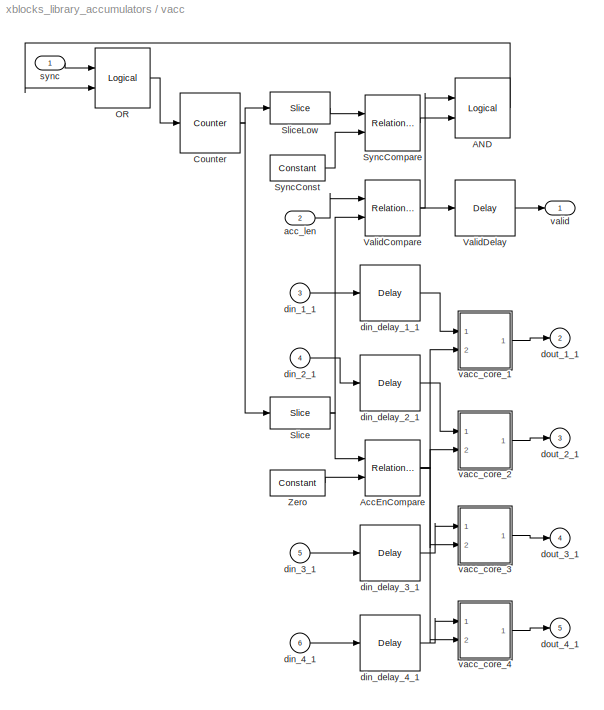
BLOCK [SubSystem] vacc
  AttributesFormatString = vector length=32, inputs=4\nmax accumulations=2^5
  FunctionWithSeparateData = off
  MaskCallbackString = ||||||||||||
  MaskDescription = Sync is expected the clock before the first data to be accumulated.\nUse the Cram block to feed din for multiple simultaneous inputs.\nacc_len is the number of vectors to sum.\nvalid is high while a valid accumulation is being clocked out on dout.\nIf only one sync pulse is provided, valid accumulations will repeatedly appear on dout as they become available.\nUndesired behavior may occur if acc_l...<+279ch>
  MaskEnableString = on,on,on,on,on,on,on,on,on,on,on,on,on
  MaskHideContents = off
  MaskIconFrame = on
  MaskIconOpaque = on
  MaskIconRotate = none
  MaskIconUnits = autoscale
  MaskInitialization = config.toplevel = gcb;\nconfig.source = str2func('vacc_init_xblock');\nxBlock( config, {...\n    'veclen', veclen, ...\n    'n_inputs', n_inputs, ...\n    'max_accum', max_accum, ...\n    'arith_type', arith_type, ...\n    'in_bit_width', in_bit_width, ...\n    'in_bin_pt', in_bin_pt, ...\n    'out_bit_width', out_bit_width, ...\n    'out_bin_pt', out_bin_pt, ...\n    'register_din', register_din,...<+155ch>
  MaskPortRotate = default
  MaskPromptString = Vector Length (2^?)|Number of Simultaneous Vectors|Maximum # Accumulations (2^?)|Arithmetic Type (0=Unsigned, 1=Signed)|Input Bit Width|Input Binary Point|Output Bit Width|Output Binary Point|Register Input Data  (1 = Enable Register Retiming on input delay)|Add Latency|BRAM Latency|Mux Latency|Use DSP48
  MaskStyleString = edit,edit,edit,edit,edit,edit,edit,edit,edit,edit,edit,edit,edit
  MaskToolTipString = on,on,on,on,on,on,on,on,on,on,on,on,on
  MaskTunableValueString = on,on,on,on,on,on,on,on,on,on,on,on,on
  MaskType = vacc
  MaskValueString = 5|4|5|0|18|17|32|17|0|2|2|1|1
  MaskVariables = veclen=@1;n_inputs=@2;max_accum=@3;arith_type=@4;in_bit_width=@5;in_bin_pt=@6;out_bit_width=@7;out_bin_pt=@8;register_din=@9;add_latency=@10;bram_latency=@11;mux_latency=@12;use_dsp48=@13;
  MaskVisibilityString = on,on,on,on,on,on,on,on,on,on,on,on,on
  MinAlgLoopOccurrences = off
  Opaque = off
  Ports = [6, 5]
  PropExecContextOutsideSubsystem = off
  RTWSystemCode = Auto
  RequestExecContextInheritance = off
  SID = 1086
  UserData = DataTag1
  UserDataPersistent = on
BLOCK [Reference] vacc/AND  REF=xbsIndex_r4/Logical
  Ports = [2, 1]
  SID = 1261
  SourceBlock = xbsIndex_r4/Logical
  SourceType = Xilinx Logical Block Block
  align_bp = on
  arith_type = Unsigned
  bin_pt = 2
  block_type = logical
  block_version = 11.4
  dbl_ovrd = off
  en = off
  has_advanced_control = 0
  inputs = 2
  latency = 0
  logical_function = AND
  n_bits = 8
  precision = Full
  sg_icon_stat = 55,60,2,1,white,blue,0,0a851f85,right,
  sg_mask_display = fprintf('','COMMENT: begin icon graphics');\npatch([0 1 1 0 ],[0 0 1 1 ],[0.77 0.82 0.91]);\npatch([0.236364 0.0727273 0.309091 0.0727273 0.236364 0.509091 0.581818 0.654545 0.945455 0.727273 0.509091 0.345455 0.581818 0.345455 0.509091 0.727273 0.945455 0.654545 0.581818 0.509091 0.236364 ],[0.133333 0.283333 0.5 0.716667 0.866667 0.866667 0.8 0.866667 0.866667 0.666667 0.866667 0.716667 0.5 0.28...<+310ch>
  sggui_pos = -1,-1,-1,-1
  xl_area = [0,0,0,0,0,0,0]
  xl_use_area = off
BLOCK [Reference] vacc/AccEnCompare  REF=xbsIndex_r4/Relational
  Ports = [2, 1]
  SID = 1262
  SourceBlock = xbsIndex_r4/Relational
  SourceType = Xilinx Arithmetic Relational Operator Block
  block_type = relational
  block_version = 11.4
  dbl_ovrd = off
  en = off
  has_advanced_control = 0
  latency = 1
  mode = a!=b
  sg_icon_stat = 55,56,2,1,white,blue,0,9551bfee,right,
  sg_mask_display = fprintf('','COMMENT: begin icon graphics');\npatch([0 1 1 0 ],[0 0 1 1 ],[0.77 0.82 0.91]);\npatch([0.236364 0.0727273 0.309091 0.0727273 0.236364 0.509091 0.581818 0.654545 0.945455 0.727273 0.509091 0.345455 0.581818 0.345455 0.509091 0.727273 0.945455 0.654545 0.581818 0.509091 0.236364 ],[0.107143 0.267857 0.5 0.732143 0.892857 0.892857 0.821429 0.892857 0.892857 0.678571 0.892857 0.732143 0.5...<+413ch>
  sggui_pos = -1,-1,-1,-1
  xl_area = [0,0,0,0,0,0,0]
  xl_use_area = off
BLOCK [Reference] vacc/Counter  REF=xbsIndex_r4/Counter
  Ports = [1, 1]
  SID = 1263
  SourceBlock = xbsIndex_r4/Counter
  SourceType = Xilinx Counter Block
  arith_type = Unsigned
  bin_pt = 0
  block_type = counter
  block_version = 11.4
  cnt_by_val = 1
  cnt_to = Inf
  cnt_type = Free Running
  dbl_ovrd = off
  en = off
  explicit_period = on
  has_advanced_control = 0
  implementation = Fabric
  infoedit = Hardware notes: Free running counters are the least expensive in hardware.  A count limited counter is implemented by combining a counter with a comparator.
  load_pin = off
  n_bits = 10
  operation = Up
  period = 1
  rst = on
  sg_icon_stat = 60,60,1,1,white,blue,0,c59595e6,right,
  sg_mask_display = fprintf('','COMMENT: begin icon graphics');\npatch([0 1 1 0 ],[0 0 1 1 ],[0.77 0.82 0.91]);\npatch([0.233333 0.0666667 0.3 0.0666667 0.233333 0.5 0.566667 0.633333 0.916667 0.7 0.483333 0.333333 0.583333 0.333333 0.483333 0.7 0.916667 0.633333 0.566667 0.5 0.233333 ],[0.1 0.266667 0.5 0.733333 0.9 0.9 0.833333 0.9 0.9 0.683333 0.9 0.75 0.5 0.25 0.1 0.316667 0.1 0.1 0.166667 0.1 0.1 ],[0.98 0.96 0....<+255ch>
  sggui_pos = -1,-1,-1,-1
  start_count = 0
  use_behavioral_HDL = off
  use_rpm = on
  xl_area = [0,0,0,0,0,0,0]
  xl_use_area = off
BLOCK [Reference] vacc/OR  REF=xbsIndex_r4/Logical
  Ports = [2, 1]
  SID = 1264
  SourceBlock = xbsIndex_r4/Logical
  SourceType = Xilinx Logical Block Block
  align_bp = on
  arith_type = Unsigned
  bin_pt = 2
  block_type = logical
  block_version = 11.4
  dbl_ovrd = off
  en = off
  has_advanced_control = 0
  inputs = 2
  latency = 0
  logical_function = OR
  n_bits = 8
  precision = Full
  sg_icon_stat = 55,60,2,1,white,blue,0,fc354646,right,
  sg_mask_display = fprintf('','COMMENT: begin icon graphics');\npatch([0 1 1 0 ],[0 0 1 1 ],[0.77 0.82 0.91]);\npatch([0.236364 0.0727273 0.309091 0.0727273 0.236364 0.509091 0.581818 0.654545 0.945455 0.727273 0.509091 0.345455 0.581818 0.345455 0.509091 0.727273 0.945455 0.654545 0.581818 0.509091 0.236364 ],[0.133333 0.283333 0.5 0.716667 0.866667 0.866667 0.8 0.866667 0.866667 0.666667 0.866667 0.716667 0.5 0.28...<+309ch>
  sggui_pos = -1,-1,-1,-1
  xl_area = [0,0,0,0,0,0,0]
  xl_use_area = off
BLOCK [Reference] vacc/Slice  REF=xbsIndex_r4/Slice
  Ports = [1, 1]
  SID = 1265
  SourceBlock = xbsIndex_r4/Slice
  SourceType = Xilinx Bit Slice Extractor Block
  base0 = LSB of Input
  base1 = MSB of Input
  bit0 = 0
  bit1 = 0
  block_type = slice
  block_version = 11.4
  boolean_output = off
  dbl_ovrd = off
  has_advanced_control = 0
  infoedit = Extracts a given range of bits from each input sample and presents it at the output.  The output type is ordinarily unsigned with binary point at zero, but can be Boolean when the slice is one bit wide.<br><br>Hardware notes: In hardware this block costs nothing.  <repeated x10 — deduplicated; at blocks: Slice, SliceLow, a, b>
  mode = Upper Bit Location + Width
  nbits = 5
  sg_icon_stat = 60,32,1,1,white,blue,0,1fd851a7,right,
  sg_mask_display = fprintf('','COMMENT: begin icon graphics');\npatch([0 1 1 0 ],[0 0 1 1 ],[0.77 0.82 0.91]);\npatch([0.35 0.266667 0.383333 0.266667 0.35 0.483333 0.516667 0.55 0.7 0.583333 0.466667 0.383333 0.5 0.383333 0.466667 0.583333 0.7 0.55 0.516667 0.483333 0.35 ],[0.09375 0.25 0.46875 0.6875 0.84375 0.84375 0.78125 0.84375 0.84375 0.625 0.84375 0.6875 0.46875 0.25 0.09375 0.3125 0.09375 0.09375 0.15625 0....<+241ch>  <repeated x10 — deduplicated; at blocks: Slice, SliceLow, a, b>
  sggui_pos = -1,-1,-1,-1
BLOCK [Reference] vacc/SliceLow  REF=xbsIndex_r4/Slice
  Ports = [1, 1]
  SID = 1266
  SourceBlock = xbsIndex_r4/Slice
  SourceType = Xilinx Bit Slice Extractor Block
  base0 = LSB of Input
  base1 = MSB of Input
  bit0 = 0
  bit1 = 0
  block_type = slice
  block_version = 11.4
  boolean_output = off
  dbl_ovrd = off
  has_advanced_control = 0
  mode = Lower Bit Location + Width
  nbits = 5
  sg_icon_stat = 60,32,1,1,white,blue,0,1fd851a7,right,
  sggui_pos = -1,-1,-1,-1
BLOCK [Reference] vacc/SyncCompare  REF=xbsIndex_r4/Relational
  Ports = [2, 1]
  SID = 1267
  SourceBlock = xbsIndex_r4/Relational
  SourceType = Xilinx Arithmetic Relational Operator Block
  block_type = relational
  block_version = 11.4
  dbl_ovrd = off
  en = off
  has_advanced_control = 0
  latency = 1
  mode = a=b
  sg_icon_stat = 55,56,2,1,white,blue,0,2d4703fd,right,
  sg_mask_display = fprintf('','COMMENT: begin icon graphics');\npatch([0 1 1 0 ],[0 0 1 1 ],[0.77 0.82 0.91]);\npatch([0.236364 0.0727273 0.309091 0.0727273 0.236364 0.509091 0.581818 0.654545 0.945455 0.727273 0.509091 0.345455 0.581818 0.345455 0.509091 0.727273 0.945455 0.654545 0.581818 0.509091 0.236364 ],[0.107143 0.267857 0.5 0.732143 0.892857 0.892857 0.821429 0.892857 0.892857 0.678571 0.892857 0.732143 0.5...<+412ch>
  sggui_pos = -1,-1,-1,-1
  xl_area = [0,0,0,0,0,0,0]
  xl_use_area = off
BLOCK [Reference] vacc/SyncConst  REF=xbsIndex_r4/Constant
  Ports = [0, 1]
  SID = 1268
  SourceBlock = xbsIndex_r4/Constant
  SourceType = Xilinx Constant Block Block
  arith_type = Unsigned
  bin_pt = 0
  block_type = constant
  block_version = 11.4
  carry = CIN
  const = 30
  dbl_ovrd = off
  dsp48_infoedit = The use of this block for DSP48 instructions is deprecated.  Please use the Opmode block.
  equ = P=C
  explicit_period = on
  has_advanced_control = 0
  inp1 = P
  inp2 = PCIN>>17
  n_bits = 5
  opr = +
  opselect = C
  period = 1
  sg_icon_stat = 55,26,0,1,white,blue,0,a55af09c,right,
  sg_mask_display = fprintf('','COMMENT: begin icon graphics');\npatch([0 1 1 0 ],[0 0 1 1 ],[0.77 0.82 0.91]);\npatch([0.363636 0.290909 0.4 0.290909 0.363636 0.490909 0.527273 0.563636 0.690909 0.581818 0.472727 0.4 0.509091 0.4 0.472727 0.581818 0.690909 0.563636 0.527273 0.490909 0.363636 ],[0.115385 0.269231 0.5 0.730769 0.884615 0.884615 0.807692 0.884615 0.884615 0.653846 0.884615 0.730769 0.5 0.269231 0.11538...<+280ch>
  sggui_pos = -1,-1,-1,-1
BLOCK [Reference] vacc/ValidCompare  REF=xbsIndex_r4/Relational
  Ports = [2, 1]
  SID = 1269
  SourceBlock = xbsIndex_r4/Relational
  SourceType = Xilinx Arithmetic Relational Operator Block
  block_type = relational
  block_version = 11.4
  dbl_ovrd = off
  en = off
  has_advanced_control = 0
  latency = 1
  mode = a=b
  sg_icon_stat = 55,56,2,1,white,blue,0,2d4703fd,right,
  sg_mask_display = fprintf('','COMMENT: begin icon graphics');\npatch([0 1 1 0 ],[0 0 1 1 ],[0.77 0.82 0.91]);\npatch([0.236364 0.0727273 0.309091 0.0727273 0.236364 0.509091 0.581818 0.654545 0.945455 0.727273 0.509091 0.345455 0.581818 0.345455 0.509091 0.727273 0.945455 0.654545 0.581818 0.509091 0.236364 ],[0.107143 0.267857 0.5 0.732143 0.892857 0.892857 0.821429 0.892857 0.892857 0.678571 0.892857 0.732143 0.5...<+412ch>
  sggui_pos = -1,-1,-1,-1
  xl_area = [0,0,0,0,0,0,0]
  xl_use_area = off
BLOCK [Reference] vacc/ValidDelay  REF=xbsIndex_r4/Delay
  Ports = [1, 1]
  SID = 1270
  SourceBlock = xbsIndex_r4/Delay
  SourceType = Xilinx Delay Block
  block_type = delay
  block_version = 11.4
  dbl_ovrd = off
  en = off
  has_advanced_control = 0
  infoedit = Hardware notes: A delay line is a chain, each link of which is an SRL16 followed by a flip-flop.
  latency = 3
  reg_retiming = off
  sg_icon_stat = 60,56,1,1,white,blue,0,83e6bb61,right,
  sggui_pos = -1,-1,-1,-1
  xl_area = [0,0,0,0,0,0,0]
  xl_use_area = off
BLOCK [Reference] vacc/Zero  REF=xbsIndex_r4/Constant
  Ports = [0, 1]
  SID = 1271
  SourceBlock = xbsIndex_r4/Constant
  SourceType = Xilinx Constant Block Block
  arith_type = Unsigned
  bin_pt = 0
  block_type = constant
  block_version = 11.4
  carry = CIN
  const = 0
  dbl_ovrd = off
  dsp48_infoedit = The use of this block for DSP48 instructions is deprecated.  Please use the Opmode block.
  equ = P=C
  explicit_period = on
  has_advanced_control = 0
  inp1 = P
  inp2 = PCIN>>17
  n_bits = 8
  opr = +
  opselect = C
  period = 1
  sg_icon_stat = 55,26,0,1,white,blue,0,bf4ddd8b,right,
  sg_mask_display = fprintf('','COMMENT: begin icon graphics');\npatch([0 1 1 0 ],[0 0 1 1 ],[0.77 0.82 0.91]);\npatch([0.363636 0.290909 0.4 0.290909 0.363636 0.490909 0.527273 0.563636 0.690909 0.581818 0.472727 0.4 0.509091 0.4 0.472727 0.581818 0.690909 0.563636 0.527273 0.490909 0.363636 ],[0.115385 0.269231 0.5 0.730769 0.884615 0.884615 0.807692 0.884615 0.884615 0.653846 0.884615 0.730769 0.5 0.269231 0.11538...<+279ch>  <repeated x25 — deduplicated; at blocks: Zero, Constant2, alumode, carryin, carryinsel, opmode_x, opmode_z>
  sggui_pos = -1,-1,-1,-1
BLOCK [Inport] vacc/acc_len
  IconDisplay = Port number
  OutDataType = sfix(16)
  OutScaling = 2^0
  Port = 2
  SID = 1088
BLOCK [Inport] vacc/din_1_1
  IconDisplay = Port number
  Port = 3
  SID = 1089
BLOCK [Inport] vacc/din_2_1
  IconDisplay = Port number
  Port = 4
  SID = 1090
BLOCK [Inport] vacc/din_3_1
  IconDisplay = Port number
  Port = 5
  SID = 1091
BLOCK [Inport] vacc/din_4_1
  IconDisplay = Port number
  Port = 6
  SID = 1092
BLOCK [Reference] vacc/din_delay_1_1  REF=xbsIndex_r4/Delay
  Ports = [1, 1]
  SID = 1257
  SourceBlock = xbsIndex_r4/Delay
  SourceType = Xilinx Delay Block
  block_type = delay
  block_version = 11.4
  dbl_ovrd = off
  en = off
  has_advanced_control = 0
  infoedit = Hardware notes: A delay line is a chain, each link of which is an SRL16 followed by a flip-flop.
  latency = 2
  reg_retiming = off
  sg_icon_stat = 60,56,1,1,white,blue,0,85ce9542,right,
  sggui_pos = -1,-1,-1,-1
  xl_area = [0,0,0,0,0,0,0]
  xl_use_area = off
BLOCK [Reference] vacc/din_delay_2_1  REF=xbsIndex_r4/Delay
  Ports = [1, 1]
  SID = 1258
  SourceBlock = xbsIndex_r4/Delay
  SourceType = Xilinx Delay Block
  block_type = delay
  block_version = 11.4
  dbl_ovrd = off
  en = off
  has_advanced_control = 0
  infoedit = Hardware notes: A delay line is a chain, each link of which is an SRL16 followed by a flip-flop.
  latency = 2
  reg_retiming = off
  sg_icon_stat = 60,56,1,1,white,blue,0,85ce9542,right,
  sggui_pos = -1,-1,-1,-1
  xl_area = [0,0,0,0,0,0,0]
  xl_use_area = off
BLOCK [Reference] vacc/din_delay_3_1  REF=xbsIndex_r4/Delay
  Ports = [1, 1]
  SID = 1259
  SourceBlock = xbsIndex_r4/Delay
  SourceType = Xilinx Delay Block
  block_type = delay
  block_version = 11.4
  dbl_ovrd = off
  en = off
  has_advanced_control = 0
  infoedit = Hardware notes: A delay line is a chain, each link of which is an SRL16 followed by a flip-flop.
  latency = 2
  reg_retiming = off
  sg_icon_stat = 60,56,1,1,white,blue,0,85ce9542,right,
  sggui_pos = -1,-1,-1,-1
  xl_area = [0,0,0,0,0,0,0]
  xl_use_area = off
BLOCK [Reference] vacc/din_delay_4_1  REF=xbsIndex_r4/Delay
  Ports = [1, 1]
  SID = 1260
  SourceBlock = xbsIndex_r4/Delay
  SourceType = Xilinx Delay Block
  block_type = delay
  block_version = 11.4
  dbl_ovrd = off
  en = off
  has_advanced_control = 0
  infoedit = Hardware notes: A delay line is a chain, each link of which is an SRL16 followed by a flip-flop.
  latency = 2
  reg_retiming = off
  sg_icon_stat = 60,56,1,1,white,blue,0,85ce9542,right,
  sggui_pos = -1,-1,-1,-1
  xl_area = [0,0,0,0,0,0,0]
  xl_use_area = off
BLOCK [Outport] vacc/dout_1_1
  IconDisplay = Port number
  Port = 2
  SID = 1253
BLOCK [Outport] vacc/dout_2_1
  IconDisplay = Port number
  Port = 3
  SID = 1254
BLOCK [Outport] vacc/dout_3_1
  IconDisplay = Port number
  Port = 4
  SID = 1255
BLOCK [Outport] vacc/dout_4_1
  IconDisplay = Port number
  Port = 5
  SID = 1256
BLOCK [Inport] vacc/sync
  IconDisplay = Port number
  OutDataType = sfix(16)
  OutScaling = 2^0
  SID = 1087
BLOCK [SubSystem] vacc/vacc_core_1
  FunctionWithSeparateData = off
  MaskHideContents = off
  MinAlgLoopOccurrences = off
  Opaque = off
  Ports = [2, 1]
  PropExecContextOutsideSubsystem = off
  RTWSystemCode = Auto
  RequestExecContextInheritance = off
  SID = 1272
BLOCK [Inport] vacc/vacc_core_1/acc_en
  IconDisplay = Port number
  Port = 2
  SID = 1274
BLOCK [SubSystem] vacc/vacc_core_1/acc_mem
  FunctionWithSeparateData = off
  MaskHideContents = off
  MinAlgLoopOccurrences = off
  Opaque = off
  Ports = [1, 1]
  PropExecContextOutsideSubsystem = off
  RTWSystemCode = Auto
  RequestExecContextInheritance = off
  SID = 1303
BLOCK [Reference] vacc/vacc_core_1/acc_mem/Constant2  REF=xbsIndex_r4/Constant
  Ports = [0, 1]
  SID = 1306
  SourceBlock = xbsIndex_r4/Constant
  SourceType = Xilinx Constant Block Block
  arith_type = Boolean
  bin_pt = 0
  block_type = constant
  block_version = 11.4
  carry = CIN
  const = 1
  dbl_ovrd = off
  dsp48_infoedit = The use of this block for DSP48 instructions is deprecated.  Please use the Opmode block.
  equ = P=C
  explicit_period = on
  has_advanced_control = 0
  inp1 = P
  inp2 = PCIN>>17
  n_bits = 1
  opr = +
  opselect = C
  period = 1
  sg_icon_stat = 55,26,0,1,white,blue,0,1c72b5be,right,
  sggui_pos = -1,-1,-1,-1
BLOCK [Reference] vacc/vacc_core_1/acc_mem/Counter  REF=xbsIndex_r4/Counter
  Ports = [0, 1]
  SID = 1307
  SourceBlock = xbsIndex_r4/Counter
  SourceType = Xilinx Counter Block
  arith_type = Unsigned
  bin_pt = 0
  block_type = counter
  block_version = 11.4
  cnt_by_val = 1
  cnt_to = 27
  cnt_type = Count Limited
  dbl_ovrd = off
  en = off
  explicit_period = on
  has_advanced_control = 0
  implementation = Fabric
  infoedit = Hardware notes: Free running counters are the least expensive in hardware.  A count limited counter is implemented by combining a counter with a comparator.
  load_pin = off
  n_bits = 5
  operation = Up
  period = 1
  rst = off
  sg_icon_stat = 60,60,0,1,white,blue,0,335d209d,right,
  sg_mask_display = fprintf('','COMMENT: begin icon graphics');\npatch([0 1 1 0 ],[0 0 1 1 ],[0.77 0.82 0.91]);\npatch([0.233333 0.0666667 0.3 0.0666667 0.233333 0.5 0.566667 0.633333 0.916667 0.7 0.483333 0.333333 0.583333 0.333333 0.483333 0.7 0.916667 0.633333 0.566667 0.5 0.233333 ],[0.1 0.266667 0.5 0.733333 0.9 0.9 0.833333 0.9 0.9 0.683333 0.9 0.75 0.5 0.25 0.1 0.316667 0.1 0.1 0.166667 0.1 0.1 ],[0.98 0.96 0....<+210ch>  <repeated x4 — deduplicated; at blocks: Counter>
  sggui_pos = -1,-1,-1,-1
  start_count = 0
  use_behavioral_HDL = off
  use_rpm = 0
  xl_area = [0,0,0,0,0,0,0]
  xl_use_area = off
BLOCK [Reference] vacc/vacc_core_1/acc_mem/Single Port RAM  REF=xbsIndex_r4/Single Port RAM
  Ports = [3, 1]
  SID = 1308
  SourceBlock = xbsIndex_r4/Single Port RAM
  SourceType = Xilinx Single Port Random Access Memory Block
  block_type = spram
  block_version = 11.4
  dbl_ovrd = off
  depth = 32
  distributed_mem = Block RAM
  en = off
  has_advanced_control = 0
  initVector = 0
  init_reg = 0
  latency = 2
  optimize = Area
  rst = off
  sg_icon_stat = 60,56,3,1,white,blue,0,f2d5aa4c,right,
  sg_mask_display = fprintf('','COMMENT: begin icon graphics');\npatch([0 1 1 0 ],[0 0 1 1 ],[0.77 0.82 0.91]);\npatch([0.25 0.1 0.316667 0.1 0.25 0.5 0.566667 0.633333 0.9 0.683333 0.483333 0.333333 0.533333 0.333333 0.483333 0.683333 0.9 0.633333 0.566667 0.5 0.25 ],[0.107143 0.267857 0.5 0.732143 0.892857 0.892857 0.821429 0.892857 0.892857 0.660714 0.875 0.714286 0.5 0.285714 0.125 0.339286 0.107143 0.107143 0.17...<+385ch>  <repeated x4 — deduplicated; at blocks: Single Port RAM>
  sggui_pos = -1,-1,-1,-1
  use_rpm = off
  write_mode = Read Before Write
  xl_area = [0,0,0,0,0,0,0]
  xl_use_area = off
BLOCK [Inport] vacc/vacc_core_1/acc_mem/din
  IconDisplay = Port number
  SID = 1304
BLOCK [Outport] vacc/vacc_core_1/acc_mem/dout
  IconDisplay = Port number
  SID = 1305
BLOCK [SubSystem] vacc/vacc_core_1/adder_with_enable
  FunctionWithSeparateData = off
  MaskHideContents = off
  MinAlgLoopOccurrences = off
  Opaque = off
  Ports = [3, 1]
  PropExecContextOutsideSubsystem = off
  RTWSystemCode = Auto
  RequestExecContextInheritance = off
  SID = 1276
BLOCK [Reference] vacc/vacc_core_1/adder_with_enable/Concat  REF=xbsIndex_r4/Concat
  Ports = [4, 1]
  SID = 1281
  SourceBlock = xbsIndex_r4/Concat
  SourceType = Xilinx Bus Concatenator Block
  block_type = concat
  block_version = 11.4
  dbl_ovrd = off
  has_advanced_control = 0
  infoedit = Concatenates two or more inputs.  Output will be cast to an unsigned value with the binary point at zero.
  num_inputs = 4
  sg_icon_stat = 60,63,4,1,white,blue,0,47b26f1b,right,
  sg_mask_display = fprintf('','COMMENT: begin icon graphics');\npatch([0 1 1 0 ],[0 0 1 1 ],[0.77 0.82 0.91]);\npatch([0.233333 0.0666667 0.3 0.0666667 0.233333 0.5 0.566667 0.633333 0.916667 0.7 0.483333 0.333333 0.583333 0.333333 0.483333 0.7 0.916667 0.633333 0.566667 0.5 0.233333 ],[0.126984 0.285714 0.507937 0.730159 0.888889 0.888889 0.825397 0.888889 0.888889 0.68254 0.888889 0.746032 0.507937 0.269841 0.1269...<+324ch>  <repeated x4 — deduplicated; at blocks: Concat>
  sggui_pos = -1,-1,-1,-1
BLOCK [Inport] vacc/vacc_core_1/adder_with_enable/din0
  IconDisplay = Port number
  SID = 1277
BLOCK [Inport] vacc/vacc_core_1/adder_with_enable/din1
  IconDisplay = Port number
  Port = 2
  SID = 1278
BLOCK [Outport] vacc/vacc_core_1/adder_with_enable/dout
  IconDisplay = Port number
  SID = 1280
BLOCK [SubSystem] vacc/vacc_core_1/adder_with_enable/dynamic_adder
  FunctionWithSeparateData = off
  MaskHideContents = off
  MinAlgLoopOccurrences = off
  Opaque = off
  Ports = [3, 1]
  PropExecContextOutsideSubsystem = off
  RTWSystemCode = Auto
  RequestExecContextInheritance = off
  SID = 1284
BLOCK [Reference] vacc/vacc_core_1/adder_with_enable/dynamic_adder/Convert  REF=xbsIndex_r4/Convert
  Ports = [1, 1]
  SID = 1292
  SourceBlock = xbsIndex_r4/Convert
  SourceType = Xilinx Type Converter Block
  arith_type = Signed  (2's comp)
  bin_pt = 0
  block_type = convert
  block_version = 11.4
  dbl_ovrd = off
  has_advanced_control = 0
  infoedit = Hardware notes: rounding and saturating require hardware resources; truncating and wrapping do not.
  latency = 0
  n_bits = 48
  overflow = Wrap
  pipeline = off
  quantization = Truncate
  sg_icon_stat = 45,30,1,1,white,blue,0,edca21da,right,
  sg_mask_display = fprintf('','COMMENT: begin icon graphics');\npatch([0 1 1 0 ],[0 0 1 1 ],[0.77 0.82 0.91]);\npatch([0.333333 0.222222 0.377778 0.222222 0.333333 0.511111 0.555556 0.6 0.777778 0.622222 0.488889 0.377778 0.511111 0.377778 0.488889 0.622222 0.777778 0.6 0.555556 0.511111 0.333333 ],[0.1 0.266667 0.5 0.733333 0.9 0.9 0.833333 0.9 0.9 0.666667 0.866667 0.7 0.5 0.3 0.133333 0.333333 0.1 0.1 0.166667 0....<+232ch>  <repeated x8 — deduplicated; at blocks: Convert, Convert2>
  sggui_pos = -1,-1,-1,-1
  xl_area = [0,0,0,0,0,0,0]
  xl_use_area = off
BLOCK [Reference] vacc/vacc_core_1/adder_with_enable/dynamic_adder/Convert2  REF=xbsIndex_r4/Convert
  Ports = [1, 1]
  SID = 1293
  SourceBlock = xbsIndex_r4/Convert
  SourceType = Xilinx Type Converter Block
  arith_type = Signed  (2's comp)
  bin_pt = 0
  block_type = convert
  block_version = 11.4
  dbl_ovrd = off
  has_advanced_control = 0
  infoedit = Hardware notes: rounding and saturating require hardware resources; truncating and wrapping do not.
  latency = 0
  n_bits = 48
  overflow = Wrap
  pipeline = off
  quantization = Truncate
  sg_icon_stat = 45,30,1,1,white,blue,0,edca21da,right,
  sggui_pos = -1,-1,-1,-1
  xl_area = [0,0,0,0,0,0,0]
  xl_use_area = off
BLOCK [Reference] vacc/vacc_core_1/adder_with_enable/dynamic_adder/DSP48E  REF=xbsIndex_r4/DSP48E
  Ports = [7, 1]
  SID = 1294
  SourceBlock = xbsIndex_r4/DSP48E
  SourceType = Xilinx DSP48E Block
  addsub_mode = ONE48
  block_type = dsp48e
  block_version = 11.4
  en_a1 = off
  en_a2 = off
  en_all = off
  en_alumode = off
  en_b1 = off
  en_b2 = off
  en_c = off
  en_carry_in = off
  en_ctrl = off
  en_mult = off
  en_multcarryin = off
  en_p = off
  has_advanced_control = 0
  mask_from_creg = off
  pattern = '000000000000'
  pattern_from_creg = off
  pattern_mask = '3FFFFFFFFFFF'
  pipeline_a = 1
  pipeline_acout = 1
  pipeline_alumode = on
  pipeline_b = 1
  pipeline_bcout = 1
  pipeline_c = on
  pipeline_carryin = on
  pipeline_carryinsel = on
  pipeline_mult = on
  pipeline_opmode = on
  pipeline_p = on
  reset_preg = off
  rst_a = off
  rst_all = off
  rst_alumode = off
  rst_b = off
  rst_c = off
  rst_carry_in = off
  rst_ctrl = off
  rst_mult = off
  rst_p = off
  sel_rounding_mask = Select mask
  sg_icon_stat = 75,136,7,1,white,blue,0,51584ea8,right,
  sg_mask_display = fprintf('','COMMENT: begin icon graphics');\npatch([0 1 1 0 ],[0 0 1 1 ],[0.77 0.82 0.91]);\npatch([0.226667 0.0666667 0.306667 0.0666667 0.226667 0.493333 0.56 0.626667 0.906667 0.68 0.466667 0.306667 0.533333 0.306667 0.466667 0.68 0.906667 0.626667 0.56 0.493333 0.226667 ],[0.286765 0.375 0.507353 0.639706 0.727941 0.727941 0.691176 0.727941 0.727941 0.602941 0.720588 0.632353 0.507353 0.382353...<+614ch>  <repeated x4 — deduplicated; at blocks: DSP48E>
  sggui_pos = -1,-1,-1,-1
  use_a = Direct from A Port
  use_acout = off
  use_b = Direct from B Port
  use_bcout = off
  use_carrycascin = off
  use_carrycascout = off
  use_carryout = off
  use_creg = on
  use_multsignin = off
  use_multsignout = off
  use_op = off
  use_overflow = off
  use_patternbdetect = off
  use_patterndetect = off
  use_pcin = off
  use_pcout = off
  use_synth_model = off
  use_underflow = off
  xl_area = [0,0,0,0,0,0,0]
  xl_use_area = off
  xl_useadderonly = off
BLOCK [Reference] vacc/vacc_core_1/adder_with_enable/dynamic_adder/a  REF=xbsIndex_r4/Slice
  Ports = [1, 1]
  SID = 1295
  SourceBlock = xbsIndex_r4/Slice
  SourceType = Xilinx Bit Slice Extractor Block
  base0 = LSB of Input
  base1 = MSB of Input
  bit0 = 18
  bit1 = 0
  block_type = slice
  block_version = 11.4
  boolean_output = off
  dbl_ovrd = off
  has_advanced_control = 0
  mode = Lower Bit Location + Width
  nbits = 30
  sg_icon_stat = 60,32,1,1,white,blue,0,1fd851a7,right,
  sggui_pos = -1,-1,-1,-1
BLOCK [Reference] vacc/vacc_core_1/adder_with_enable/dynamic_adder/alumode  REF=xbsIndex_r4/Constant
  Ports = [0, 1]
  SID = 1288
  SourceBlock = xbsIndex_r4/Constant
  SourceType = Xilinx Constant Block Block
  arith_type = Unsigned
  bin_pt = 0
  block_type = constant
  block_version = 11.4
  carry = CIN
  const = 0
  dbl_ovrd = off
  dsp48_infoedit = The use of this block for DSP48 instructions is deprecated.  Please use the Opmode block.
  equ = P=C
  explicit_period = on
  has_advanced_control = 0
  inp1 = P
  inp2 = PCIN>>17
  n_bits = 4
  opr = +
  opselect = C
  period = 1
  sg_icon_stat = 55,26,0,1,white,blue,0,bf4ddd8b,right,
  sggui_pos = -1,-1,-1,-1
BLOCK [Reference] vacc/vacc_core_1/adder_with_enable/dynamic_adder/b  REF=xbsIndex_r4/Slice
  Ports = [1, 1]
  SID = 1296
  SourceBlock = xbsIndex_r4/Slice
  SourceType = Xilinx Bit Slice Extractor Block
  base0 = LSB of Input
  base1 = MSB of Input
  bit0 = 0
  bit1 = 0
  block_type = slice
  block_version = 11.4
  boolean_output = off
  dbl_ovrd = off
  has_advanced_control = 0
  mode = Lower Bit Location + Width
  nbits = 18
  sg_icon_stat = 60,32,1,1,white,blue,0,1fd851a7,right,
  sggui_pos = -1,-1,-1,-1
BLOCK [Reference] vacc/vacc_core_1/adder_with_enable/dynamic_adder/carryin  REF=xbsIndex_r4/Constant
  Ports = [0, 1]
  SID = 1289
  SourceBlock = xbsIndex_r4/Constant
  SourceType = Xilinx Constant Block Block
  arith_type = Unsigned
  bin_pt = 0
  block_type = constant
  block_version = 11.4
  carry = CIN
  const = 0
  dbl_ovrd = off
  dsp48_infoedit = The use of this block for DSP48 instructions is deprecated.  Please use the Opmode block.
  equ = P=C
  explicit_period = on
  has_advanced_control = 0
  inp1 = P
  inp2 = PCIN>>17
  n_bits = 1
  opr = +
  opselect = C
  period = 1
  sg_icon_stat = 55,26,0,1,white,blue,0,bf4ddd8b,right,
  sggui_pos = -1,-1,-1,-1
BLOCK [Reference] vacc/vacc_core_1/adder_with_enable/dynamic_adder/carryinsel  REF=xbsIndex_r4/Constant
  Ports = [0, 1]
  SID = 1290
  SourceBlock = xbsIndex_r4/Constant
  SourceType = Xilinx Constant Block Block
  arith_type = Unsigned
  bin_pt = 0
  block_type = constant
  block_version = 11.4
  carry = CIN
  const = 0
  dbl_ovrd = off
  dsp48_infoedit = The use of this block for DSP48 instructions is deprecated.  Please use the Opmode block.
  equ = P=C
  explicit_period = on
  has_advanced_control = 0
  inp1 = P
  inp2 = PCIN>>17
  n_bits = 3
  opr = +
  opselect = C
  period = 1
  sg_icon_stat = 55,26,0,1,white,blue,0,bf4ddd8b,right,
  sggui_pos = -1,-1,-1,-1
BLOCK [Reference] vacc/vacc_core_1/adder_with_enable/dynamic_adder/conv_dsp_out  REF=xbsIndex_r4/Convert
  Ports = [1, 1]
  SID = 1297
  SourceBlock = xbsIndex_r4/Convert
  SourceType = Xilinx Type Converter Block
  arith_type = Signed  (2's comp)
  bin_pt = 17
  block_type = convert
  block_version = 11.4
  dbl_ovrd = off
  has_advanced_control = 0
  infoedit = Hardware notes: rounding and saturating require hardware resources; truncating and wrapping do not.
  latency = 0
  n_bits = 32
  overflow = Wrap
  pipeline = off
  quantization = Truncate
  sg_icon_stat = 45,32,1,1,white,blue,0,edca21da,right,
  sg_mask_display = fprintf('','COMMENT: begin icon graphics');\npatch([0 1 1 0 ],[0 0 1 1 ],[0.77 0.82 0.91]);\npatch([0.311111 0.2 0.355556 0.2 0.311111 0.488889 0.533333 0.577778 0.777778 0.622222 0.466667 0.355556 0.511111 0.355556 0.466667 0.622222 0.777778 0.577778 0.533333 0.488889 0.311111 ],[0.09375 0.25 0.46875 0.6875 0.84375 0.84375 0.78125 0.84375 0.84375 0.625 0.84375 0.6875 0.46875 0.25 0.09375 0.3125 0...<+265ch>  <repeated x4 — deduplicated; at blocks: conv_dsp_out>
  sggui_pos = -1,-1,-1,-1
  xl_area = [0,0,0,0,0,0,0]
  xl_use_area = off
BLOCK [Inport] vacc/vacc_core_1/adder_with_enable/dynamic_adder/din1
  IconDisplay = Port number
  SID = 1285
BLOCK [Inport] vacc/vacc_core_1/adder_with_enable/dynamic_adder/din2
  IconDisplay = Port number
  Port = 2
  SID = 1286
BLOCK [Outport] vacc/vacc_core_1/adder_with_enable/dynamic_adder/dout
  IconDisplay = Port number
  SID = 1291
BLOCK [Inport] vacc/vacc_core_1/adder_with_enable/dynamic_adder/opmode
  IconDisplay = Port number
  Port = 3
  SID = 1287
BLOCK [Reference] vacc/vacc_core_1/adder_with_enable/dynamic_adder/reinterp_a  REF=xbsIndex_r4/Reinterpret
  Ports = [1, 1]
  SID = 1298
  SourceBlock = xbsIndex_r4/Reinterpret
  SourceType = Xilinx Type Reinterpreter Block
  arith_type = Signed  (2's comp)
  bin_pt = 0
  block_type = reinterpret
  block_version = 11.4
  force_arith_type = on
  force_bin_pt = off
  has_advanced_control = 0
  infoedit = Changes signal type without altering the binary representation.   You can changed the signal between signed and unsigned, and relocate the binary point.<br><br>Hardware notes: In hardware this block costs nothing.<br><br>Example:  Suppose the input is 6 bits wide, signed, with 2 fractional bits, and the output is forced to unsigned with 0 fractional bits.  Then an input of -2.0 (1110.00 in binary ...<+59ch>  <repeated x20 — deduplicated; at blocks: reinterp_a, reinterp_b, reinterp_din1, reinterp_din2, reinterp_dsp_out>
  sg_icon_stat = 50,32,1,1,white,blue,0,6b04d0b0,right,
  sg_mask_display = fprintf('','COMMENT: begin icon graphics');\npatch([0 1 1 0 ],[0 0 1 1 ],[0.77 0.82 0.91]);\npatch([0.32 0.22 0.36 0.22 0.32 0.48 0.52 0.56 0.74 0.6 0.46 0.36 0.5 0.36 0.46 0.6 0.74 0.56 0.52 0.48 0.32 ],[0.09375 0.25 0.46875 0.6875 0.84375 0.84375 0.78125 0.84375 0.84375 0.625 0.84375 0.6875 0.46875 0.25 0.09375 0.3125 0.09375 0.09375 0.15625 0.09375 0.09375 ],[0.98 0.96 0.92]);\nplot([0 1 1 0 0 ...<+178ch>  <repeated x16 — deduplicated; at blocks: reinterp_a, reinterp_b, reinterp_din1, reinterp_dsp_out>
  sggui_pos = -1,-1,-1,-1
BLOCK [Reference] vacc/vacc_core_1/adder_with_enable/dynamic_adder/reinterp_b  REF=xbsIndex_r4/Reinterpret
  Ports = [1, 1]
  SID = 1299
  SourceBlock = xbsIndex_r4/Reinterpret
  SourceType = Xilinx Type Reinterpreter Block
  arith_type = Signed  (2's comp)
  bin_pt = 0
  block_type = reinterpret
  block_version = 11.4
  force_arith_type = on
  force_bin_pt = off
  has_advanced_control = 0
  sg_icon_stat = 50,32,1,1,white,blue,0,6b04d0b0,right,
  sggui_pos = -1,-1,-1,-1
BLOCK [Reference] vacc/vacc_core_1/adder_with_enable/dynamic_adder/reinterp_din1  REF=xbsIndex_r4/Reinterpret
  Ports = [1, 1]
  SID = 1301
  SourceBlock = xbsIndex_r4/Reinterpret
  SourceType = Xilinx Type Reinterpreter Block
  arith_type = Signed  (2's comp)
  bin_pt = 0
  block_type = reinterpret
  block_version = 11.4
  force_arith_type = off
  force_bin_pt = on
  has_advanced_control = 0
  sg_icon_stat = 50,32,1,1,white,blue,0,6b04d0b0,right,
  sggui_pos = -1,-1,-1,-1
BLOCK [Reference] vacc/vacc_core_1/adder_with_enable/dynamic_adder/reinterp_din2  REF=xbsIndex_r4/Reinterpret
  Ports = [1, 1]
  SID = 1300
  SourceBlock = xbsIndex_r4/Reinterpret
  SourceType = Xilinx Type Reinterpreter Block
  arith_type = Signed  (2's comp)
  bin_pt = 0
  block_type = reinterpret
  block_version = 11.4
  force_arith_type = off
  force_bin_pt = on
  has_advanced_control = 0
  sg_icon_stat = 45,32,1,1,white,blue,0,6b04d0b0,right,
  sg_mask_display = fprintf('','COMMENT: begin icon graphics');\npatch([0 1 1 0 ],[0 0 1 1 ],[0.77 0.82 0.91]);\npatch([0.311111 0.2 0.355556 0.2 0.311111 0.488889 0.533333 0.577778 0.777778 0.622222 0.466667 0.355556 0.511111 0.355556 0.466667 0.622222 0.777778 0.577778 0.533333 0.488889 0.311111 ],[0.09375 0.25 0.46875 0.6875 0.84375 0.84375 0.78125 0.84375 0.84375 0.625 0.84375 0.6875 0.46875 0.25 0.09375 0.3125 0...<+255ch>  <repeated x4 — deduplicated; at blocks: reinterp_din2>
  sggui_pos = -1,-1,-1,-1
BLOCK [Reference] vacc/vacc_core_1/adder_with_enable/dynamic_adder/reinterp_dsp_out  REF=xbsIndex_r4/Reinterpret
  Ports = [1, 1]
  SID = 1302
  SourceBlock = xbsIndex_r4/Reinterpret
  SourceType = Xilinx Type Reinterpreter Block
  arith_type = Signed  (2's comp)
  bin_pt = 17
  block_type = reinterpret
  block_version = 11.4
  force_arith_type = on
  force_bin_pt = on
  has_advanced_control = 0
  sg_icon_stat = 50,32,1,1,white,blue,0,6b04d0b0,right,
  sggui_pos = -1,-1,-1,-1
BLOCK [Inport] vacc/vacc_core_1/adder_with_enable/en
  IconDisplay = Port number
  Port = 3
  SID = 1279
BLOCK [Reference] vacc/vacc_core_1/adder_with_enable/opmode_x  REF=xbsIndex_r4/Constant
  Ports = [0, 1]
  SID = 1282
  SourceBlock = xbsIndex_r4/Constant
  SourceType = Xilinx Constant Block Block
  arith_type = Unsigned
  bin_pt = 0
  block_type = constant
  block_version = 11.4
  carry = CIN
  const = 3
  dbl_ovrd = off
  dsp48_infoedit = The use of this block for DSP48 instructions is deprecated.  Please use the Opmode block.
  equ = P=C
  explicit_period = on
  has_advanced_control = 0
  inp1 = P
  inp2 = PCIN>>17
  n_bits = 2
  opr = +
  opselect = C
  period = 1
  sg_icon_stat = 55,26,0,1,white,blue,0,279a71c8,right,
  sggui_pos = -1,-1,-1,-1
BLOCK [Reference] vacc/vacc_core_1/adder_with_enable/opmode_z  REF=xbsIndex_r4/Constant
  Ports = [0, 1]
  SID = 1283
  SourceBlock = xbsIndex_r4/Constant
  SourceType = Xilinx Constant Block Block
  arith_type = Unsigned
  bin_pt = 0
  block_type = constant
  block_version = 11.4
  carry = CIN
  const = 0
  dbl_ovrd = off
  dsp48_infoedit = The use of this block for DSP48 instructions is deprecated.  Please use the Opmode block.
  equ = P=C
  explicit_period = on
  has_advanced_control = 0
  inp1 = P
  inp2 = PCIN>>17
  n_bits = 3
  opr = +
  opselect = C
  period = 1
  sg_icon_stat = 55,26,0,1,white,blue,0,bf4ddd8b,right,
  sggui_pos = -1,-1,-1,-1
BLOCK [Inport] vacc/vacc_core_1/din
  IconDisplay = Port number
  SID = 1273
BLOCK [Outport] vacc/vacc_core_1/dout
  IconDisplay = Port number
  SID = 1275
BLOCK [SubSystem] vacc/vacc_core_2
  FunctionWithSeparateData = off
  MaskHideContents = off
  MinAlgLoopOccurrences = off
  Opaque = off
  Ports = [2, 1]
  PropExecContextOutsideSubsystem = off
  RTWSystemCode = Auto
  RequestExecContextInheritance = off
  SID = 1309
BLOCK [Inport] vacc/vacc_core_2/acc_en
  IconDisplay = Port number
  Port = 2
  SID = 1311
BLOCK [SubSystem] vacc/vacc_core_2/acc_mem
  FunctionWithSeparateData = off
  MaskHideContents = off
  MinAlgLoopOccurrences = off
  Opaque = off
  Ports = [1, 1]
  PropExecContextOutsideSubsystem = off
  RTWSystemCode = Auto
  RequestExecContextInheritance = off
  SID = 1340
BLOCK [Reference] vacc/vacc_core_2/acc_mem/Constant2  REF=xbsIndex_r4/Constant
  Ports = [0, 1]
  SID = 1343
  SourceBlock = xbsIndex_r4/Constant
  SourceType = Xilinx Constant Block Block
  arith_type = Boolean
  bin_pt = 0
  block_type = constant
  block_version = 11.4
  carry = CIN
  const = 1
  dbl_ovrd = off
  dsp48_infoedit = The use of this block for DSP48 instructions is deprecated.  Please use the Opmode block.
  equ = P=C
  explicit_period = on
  has_advanced_control = 0
  inp1 = P
  inp2 = PCIN>>17
  n_bits = 1
  opr = +
  opselect = C
  period = 1
  sg_icon_stat = 55,26,0,1,white,blue,0,1c72b5be,right,
  sggui_pos = -1,-1,-1,-1
BLOCK [Reference] vacc/vacc_core_2/acc_mem/Counter  REF=xbsIndex_r4/Counter
  Ports = [0, 1]
  SID = 1344
  SourceBlock = xbsIndex_r4/Counter
  SourceType = Xilinx Counter Block
  arith_type = Unsigned
  bin_pt = 0
  block_type = counter
  block_version = 11.4
  cnt_by_val = 1
  cnt_to = 27
  cnt_type = Count Limited
  dbl_ovrd = off
  en = off
  explicit_period = on
  has_advanced_control = 0
  implementation = Fabric
  infoedit = Hardware notes: Free running counters are the least expensive in hardware.  A count limited counter is implemented by combining a counter with a comparator.
  load_pin = off
  n_bits = 5
  operation = Up
  period = 1
  rst = off
  sg_icon_stat = 60,60,0,1,white,blue,0,335d209d,right,
  sggui_pos = -1,-1,-1,-1
  start_count = 0
  use_behavioral_HDL = off
  use_rpm = 0
  xl_area = [0,0,0,0,0,0,0]
  xl_use_area = off
BLOCK [Reference] vacc/vacc_core_2/acc_mem/Single Port RAM  REF=xbsIndex_r4/Single Port RAM
  Ports = [3, 1]
  SID = 1345
  SourceBlock = xbsIndex_r4/Single Port RAM
  SourceType = Xilinx Single Port Random Access Memory Block
  block_type = spram
  block_version = 11.4
  dbl_ovrd = off
  depth = 32
  distributed_mem = Block RAM
  en = off
  has_advanced_control = 0
  initVector = 0
  init_reg = 0
  latency = 2
  optimize = Area
  rst = off
  sg_icon_stat = 60,56,3,1,white,blue,0,f2d5aa4c,right,
  sggui_pos = -1,-1,-1,-1
  use_rpm = off
  write_mode = Read Before Write
  xl_area = [0,0,0,0,0,0,0]
  xl_use_area = off
BLOCK [Inport] vacc/vacc_core_2/acc_mem/din
  IconDisplay = Port number
  SID = 1341
BLOCK [Outport] vacc/vacc_core_2/acc_mem/dout
  IconDisplay = Port number
  SID = 1342
BLOCK [SubSystem] vacc/vacc_core_2/adder_with_enable
  FunctionWithSeparateData = off
  MaskHideContents = off
  MinAlgLoopOccurrences = off
  Opaque = off
  Ports = [3, 1]
  PropExecContextOutsideSubsystem = off
  RTWSystemCode = Auto
  RequestExecContextInheritance = off
  SID = 1313
BLOCK [Reference] vacc/vacc_core_2/adder_with_enable/Concat  REF=xbsIndex_r4/Concat
  Ports = [4, 1]
  SID = 1318
  SourceBlock = xbsIndex_r4/Concat
  SourceType = Xilinx Bus Concatenator Block
  block_type = concat
  block_version = 11.4
  dbl_ovrd = off
  has_advanced_control = 0
  infoedit = Concatenates two or more inputs.  Output will be cast to an unsigned value with the binary point at zero.
  num_inputs = 4
  sg_icon_stat = 60,63,4,1,white,blue,0,47b26f1b,right,
  sggui_pos = -1,-1,-1,-1
BLOCK [Inport] vacc/vacc_core_2/adder_with_enable/din0
  IconDisplay = Port number
  SID = 1314
BLOCK [Inport] vacc/vacc_core_2/adder_with_enable/din1
  IconDisplay = Port number
  Port = 2
  SID = 1315
BLOCK [Outport] vacc/vacc_core_2/adder_with_enable/dout
  IconDisplay = Port number
  SID = 1317
BLOCK [SubSystem] vacc/vacc_core_2/adder_with_enable/dynamic_adder
  FunctionWithSeparateData = off
  MaskHideContents = off
  MinAlgLoopOccurrences = off
  Opaque = off
  Ports = [3, 1]
  PropExecContextOutsideSubsystem = off
  RTWSystemCode = Auto
  RequestExecContextInheritance = off
  SID = 1321
BLOCK [Reference] vacc/vacc_core_2/adder_with_enable/dynamic_adder/Convert  REF=xbsIndex_r4/Convert
  Ports = [1, 1]
  SID = 1329
  SourceBlock = xbsIndex_r4/Convert
  SourceType = Xilinx Type Converter Block
  arith_type = Signed  (2's comp)
  bin_pt = 0
  block_type = convert
  block_version = 11.4
  dbl_ovrd = off
  has_advanced_control = 0
  infoedit = Hardware notes: rounding and saturating require hardware resources; truncating and wrapping do not.
  latency = 0
  n_bits = 48
  overflow = Wrap
  pipeline = off
  quantization = Truncate
  sg_icon_stat = 45,30,1,1,white,blue,0,edca21da,right,
  sggui_pos = -1,-1,-1,-1
  xl_area = [0,0,0,0,0,0,0]
  xl_use_area = off
BLOCK [Reference] vacc/vacc_core_2/adder_with_enable/dynamic_adder/Convert2  REF=xbsIndex_r4/Convert
  Ports = [1, 1]
  SID = 1330
  SourceBlock = xbsIndex_r4/Convert
  SourceType = Xilinx Type Converter Block
  arith_type = Signed  (2's comp)
  bin_pt = 0
  block_type = convert
  block_version = 11.4
  dbl_ovrd = off
  has_advanced_control = 0
  infoedit = Hardware notes: rounding and saturating require hardware resources; truncating and wrapping do not.
  latency = 0
  n_bits = 48
  overflow = Wrap
  pipeline = off
  quantization = Truncate
  sg_icon_stat = 45,30,1,1,white,blue,0,edca21da,right,
  sggui_pos = -1,-1,-1,-1
  xl_area = [0,0,0,0,0,0,0]
  xl_use_area = off
BLOCK [Reference] vacc/vacc_core_2/adder_with_enable/dynamic_adder/DSP48E  REF=xbsIndex_r4/DSP48E
  Ports = [7, 1]
  SID = 1331
  SourceBlock = xbsIndex_r4/DSP48E
  SourceType = Xilinx DSP48E Block
  addsub_mode = ONE48
  block_type = dsp48e
  block_version = 11.4
  en_a1 = off
  en_a2 = off
  en_all = off
  en_alumode = off
  en_b1 = off
  en_b2 = off
  en_c = off
  en_carry_in = off
  en_ctrl = off
  en_mult = off
  en_multcarryin = off
  en_p = off
  has_advanced_control = 0
  mask_from_creg = off
  pattern = '000000000000'
  pattern_from_creg = off
  pattern_mask = '3FFFFFFFFFFF'
  pipeline_a = 1
  pipeline_acout = 1
  pipeline_alumode = on
  pipeline_b = 1
  pipeline_bcout = 1
  pipeline_c = on
  pipeline_carryin = on
  pipeline_carryinsel = on
  pipeline_mult = on
  pipeline_opmode = on
  pipeline_p = on
  reset_preg = off
  rst_a = off
  rst_all = off
  rst_alumode = off
  rst_b = off
  rst_c = off
  rst_carry_in = off
  rst_ctrl = off
  rst_mult = off
  rst_p = off
  sel_rounding_mask = Select mask
  sg_icon_stat = 75,136,7,1,white,blue,0,51584ea8,right,
  sggui_pos = -1,-1,-1,-1
  use_a = Direct from A Port
  use_acout = off
  use_b = Direct from B Port
  use_bcout = off
  use_carrycascin = off
  use_carrycascout = off
  use_carryout = off
  use_creg = on
  use_multsignin = off
  use_multsignout = off
  use_op = off
  use_overflow = off
  use_patternbdetect = off
  use_patterndetect = off
  use_pcin = off
  use_pcout = off
  use_synth_model = off
  use_underflow = off
  xl_area = [0,0,0,0,0,0,0]
  xl_use_area = off
  xl_useadderonly = off
BLOCK [Reference] vacc/vacc_core_2/adder_with_enable/dynamic_adder/a  REF=xbsIndex_r4/Slice
  Ports = [1, 1]
  SID = 1332
  SourceBlock = xbsIndex_r4/Slice
  SourceType = Xilinx Bit Slice Extractor Block
  base0 = LSB of Input
  base1 = MSB of Input
  bit0 = 18
  bit1 = 0
  block_type = slice
  block_version = 11.4
  boolean_output = off
  dbl_ovrd = off
  has_advanced_control = 0
  mode = Lower Bit Location + Width
  nbits = 30
  sg_icon_stat = 60,32,1,1,white,blue,0,1fd851a7,right,
  sggui_pos = -1,-1,-1,-1
BLOCK [Reference] vacc/vacc_core_2/adder_with_enable/dynamic_adder/alumode  REF=xbsIndex_r4/Constant
  Ports = [0, 1]
  SID = 1325
  SourceBlock = xbsIndex_r4/Constant
  SourceType = Xilinx Constant Block Block
  arith_type = Unsigned
  bin_pt = 0
  block_type = constant
  block_version = 11.4
  carry = CIN
  const = 0
  dbl_ovrd = off
  dsp48_infoedit = The use of this block for DSP48 instructions is deprecated.  Please use the Opmode block.
  equ = P=C
  explicit_period = on
  has_advanced_control = 0
  inp1 = P
  inp2 = PCIN>>17
  n_bits = 4
  opr = +
  opselect = C
  period = 1
  sg_icon_stat = 55,26,0,1,white,blue,0,bf4ddd8b,right,
  sggui_pos = -1,-1,-1,-1
BLOCK [Reference] vacc/vacc_core_2/adder_with_enable/dynamic_adder/b  REF=xbsIndex_r4/Slice
  Ports = [1, 1]
  SID = 1333
  SourceBlock = xbsIndex_r4/Slice
  SourceType = Xilinx Bit Slice Extractor Block
  base0 = LSB of Input
  base1 = MSB of Input
  bit0 = 0
  bit1 = 0
  block_type = slice
  block_version = 11.4
  boolean_output = off
  dbl_ovrd = off
  has_advanced_control = 0
  mode = Lower Bit Location + Width
  nbits = 18
  sg_icon_stat = 60,32,1,1,white,blue,0,1fd851a7,right,
  sggui_pos = -1,-1,-1,-1
BLOCK [Reference] vacc/vacc_core_2/adder_with_enable/dynamic_adder/carryin  REF=xbsIndex_r4/Constant
  Ports = [0, 1]
  SID = 1326
  SourceBlock = xbsIndex_r4/Constant
  SourceType = Xilinx Constant Block Block
  arith_type = Unsigned
  bin_pt = 0
  block_type = constant
  block_version = 11.4
  carry = CIN
  const = 0
  dbl_ovrd = off
  dsp48_infoedit = The use of this block for DSP48 instructions is deprecated.  Please use the Opmode block.
  equ = P=C
  explicit_period = on
  has_advanced_control = 0
  inp1 = P
  inp2 = PCIN>>17
  n_bits = 1
  opr = +
  opselect = C
  period = 1
  sg_icon_stat = 55,26,0,1,white,blue,0,bf4ddd8b,right,
  sggui_pos = -1,-1,-1,-1
BLOCK [Reference] vacc/vacc_core_2/adder_with_enable/dynamic_adder/carryinsel  REF=xbsIndex_r4/Constant
  Ports = [0, 1]
  SID = 1327
  SourceBlock = xbsIndex_r4/Constant
  SourceType = Xilinx Constant Block Block
  arith_type = Unsigned
  bin_pt = 0
  block_type = constant
  block_version = 11.4
  carry = CIN
  const = 0
  dbl_ovrd = off
  dsp48_infoedit = The use of this block for DSP48 instructions is deprecated.  Please use the Opmode block.
  equ = P=C
  explicit_period = on
  has_advanced_control = 0
  inp1 = P
  inp2 = PCIN>>17
  n_bits = 3
  opr = +
  opselect = C
  period = 1
  sg_icon_stat = 55,26,0,1,white,blue,0,bf4ddd8b,right,
  sggui_pos = -1,-1,-1,-1
BLOCK [Reference] vacc/vacc_core_2/adder_with_enable/dynamic_adder/conv_dsp_out  REF=xbsIndex_r4/Convert
  Ports = [1, 1]
  SID = 1334
  SourceBlock = xbsIndex_r4/Convert
  SourceType = Xilinx Type Converter Block
  arith_type = Signed  (2's comp)
  bin_pt = 17
  block_type = convert
  block_version = 11.4
  dbl_ovrd = off
  has_advanced_control = 0
  infoedit = Hardware notes: rounding and saturating require hardware resources; truncating and wrapping do not.
  latency = 0
  n_bits = 32
  overflow = Wrap
  pipeline = off
  quantization = Truncate
  sg_icon_stat = 45,32,1,1,white,blue,0,edca21da,right,
  sggui_pos = -1,-1,-1,-1
  xl_area = [0,0,0,0,0,0,0]
  xl_use_area = off
BLOCK [Inport] vacc/vacc_core_2/adder_with_enable/dynamic_adder/din1
  IconDisplay = Port number
  SID = 1322
BLOCK [Inport] vacc/vacc_core_2/adder_with_enable/dynamic_adder/din2
  IconDisplay = Port number
  Port = 2
  SID = 1323
BLOCK [Outport] vacc/vacc_core_2/adder_with_enable/dynamic_adder/dout
  IconDisplay = Port number
  SID = 1328
BLOCK [Inport] vacc/vacc_core_2/adder_with_enable/dynamic_adder/opmode
  IconDisplay = Port number
  Port = 3
  SID = 1324
BLOCK [Reference] vacc/vacc_core_2/adder_with_enable/dynamic_adder/reinterp_a  REF=xbsIndex_r4/Reinterpret
  Ports = [1, 1]
  SID = 1335
  SourceBlock = xbsIndex_r4/Reinterpret
  SourceType = Xilinx Type Reinterpreter Block
  arith_type = Signed  (2's comp)
  bin_pt = 0
  block_type = reinterpret
  block_version = 11.4
  force_arith_type = on
  force_bin_pt = off
  has_advanced_control = 0
  sg_icon_stat = 50,32,1,1,white,blue,0,6b04d0b0,right,
  sggui_pos = -1,-1,-1,-1
BLOCK [Reference] vacc/vacc_core_2/adder_with_enable/dynamic_adder/reinterp_b  REF=xbsIndex_r4/Reinterpret
  Ports = [1, 1]
  SID = 1336
  SourceBlock = xbsIndex_r4/Reinterpret
  SourceType = Xilinx Type Reinterpreter Block
  arith_type = Signed  (2's comp)
  bin_pt = 0
  block_type = reinterpret
  block_version = 11.4
  force_arith_type = on
  force_bin_pt = off
  has_advanced_control = 0
  sg_icon_stat = 50,32,1,1,white,blue,0,6b04d0b0,right,
  sggui_pos = -1,-1,-1,-1
BLOCK [Reference] vacc/vacc_core_2/adder_with_enable/dynamic_adder/reinterp_din1  REF=xbsIndex_r4/Reinterpret
  Ports = [1, 1]
  SID = 1338
  SourceBlock = xbsIndex_r4/Reinterpret
  SourceType = Xilinx Type Reinterpreter Block
  arith_type = Signed  (2's comp)
  bin_pt = 0
  block_type = reinterpret
  block_version = 11.4
  force_arith_type = off
  force_bin_pt = on
  has_advanced_control = 0
  sg_icon_stat = 50,32,1,1,white,blue,0,6b04d0b0,right,
  sggui_pos = -1,-1,-1,-1
BLOCK [Reference] vacc/vacc_core_2/adder_with_enable/dynamic_adder/reinterp_din2  REF=xbsIndex_r4/Reinterpret
  Ports = [1, 1]
  SID = 1337
  SourceBlock = xbsIndex_r4/Reinterpret
  SourceType = Xilinx Type Reinterpreter Block
  arith_type = Signed  (2's comp)
  bin_pt = 0
  block_type = reinterpret
  block_version = 11.4
  force_arith_type = off
  force_bin_pt = on
  has_advanced_control = 0
  sg_icon_stat = 45,32,1,1,white,blue,0,6b04d0b0,right,
  sggui_pos = -1,-1,-1,-1
BLOCK [Reference] vacc/vacc_core_2/adder_with_enable/dynamic_adder/reinterp_dsp_out  REF=xbsIndex_r4/Reinterpret
  Ports = [1, 1]
  SID = 1339
  SourceBlock = xbsIndex_r4/Reinterpret
  SourceType = Xilinx Type Reinterpreter Block
  arith_type = Signed  (2's comp)
  bin_pt = 17
  block_type = reinterpret
  block_version = 11.4
  force_arith_type = on
  force_bin_pt = on
  has_advanced_control = 0
  sg_icon_stat = 50,32,1,1,white,blue,0,6b04d0b0,right,
  sggui_pos = -1,-1,-1,-1
BLOCK [Inport] vacc/vacc_core_2/adder_with_enable/en
  IconDisplay = Port number
  Port = 3
  SID = 1316
BLOCK [Reference] vacc/vacc_core_2/adder_with_enable/opmode_x  REF=xbsIndex_r4/Constant
  Ports = [0, 1]
  SID = 1319
  SourceBlock = xbsIndex_r4/Constant
  SourceType = Xilinx Constant Block Block
  arith_type = Unsigned
  bin_pt = 0
  block_type = constant
  block_version = 11.4
  carry = CIN
  const = 3
  dbl_ovrd = off
  dsp48_infoedit = The use of this block for DSP48 instructions is deprecated.  Please use the Opmode block.
  equ = P=C
  explicit_period = on
  has_advanced_control = 0
  inp1 = P
  inp2 = PCIN>>17
  n_bits = 2
  opr = +
  opselect = C
  period = 1
  sg_icon_stat = 55,26,0,1,white,blue,0,279a71c8,right,
  sggui_pos = -1,-1,-1,-1
BLOCK [Reference] vacc/vacc_core_2/adder_with_enable/opmode_z  REF=xbsIndex_r4/Constant
  Ports = [0, 1]
  SID = 1320
  SourceBlock = xbsIndex_r4/Constant
  SourceType = Xilinx Constant Block Block
  arith_type = Unsigned
  bin_pt = 0
  block_type = constant
  block_version = 11.4
  carry = CIN
  const = 0
  dbl_ovrd = off
  dsp48_infoedit = The use of this block for DSP48 instructions is deprecated.  Please use the Opmode block.
  equ = P=C
  explicit_period = on
  has_advanced_control = 0
  inp1 = P
  inp2 = PCIN>>17
  n_bits = 3
  opr = +
  opselect = C
  period = 1
  sg_icon_stat = 55,26,0,1,white,blue,0,bf4ddd8b,right,
  sggui_pos = -1,-1,-1,-1
BLOCK [Inport] vacc/vacc_core_2/din
  IconDisplay = Port number
  SID = 1310
BLOCK [Outport] vacc/vacc_core_2/dout
  IconDisplay = Port number
  SID = 1312
BLOCK [SubSystem] vacc/vacc_core_3
  FunctionWithSeparateData = off
  MaskHideContents = off
  MinAlgLoopOccurrences = off
  Opaque = off
  Ports = [2, 1]
  PropExecContextOutsideSubsystem = off
  RTWSystemCode = Auto
  RequestExecContextInheritance = off
  SID = 1346
BLOCK [Inport] vacc/vacc_core_3/acc_en
  IconDisplay = Port number
  Port = 2
  SID = 1348
BLOCK [SubSystem] vacc/vacc_core_3/acc_mem
  FunctionWithSeparateData = off
  MaskHideContents = off
  MinAlgLoopOccurrences = off
  Opaque = off
  Ports = [1, 1]
  PropExecContextOutsideSubsystem = off
  RTWSystemCode = Auto
  RequestExecContextInheritance = off
  SID = 1377
BLOCK [Reference] vacc/vacc_core_3/acc_mem/Constant2  REF=xbsIndex_r4/Constant
  Ports = [0, 1]
  SID = 1380
  SourceBlock = xbsIndex_r4/Constant
  SourceType = Xilinx Constant Block Block
  arith_type = Boolean
  bin_pt = 0
  block_type = constant
  block_version = 11.4
  carry = CIN
  const = 1
  dbl_ovrd = off
  dsp48_infoedit = The use of this block for DSP48 instructions is deprecated.  Please use the Opmode block.
  equ = P=C
  explicit_period = on
  has_advanced_control = 0
  inp1 = P
  inp2 = PCIN>>17
  n_bits = 1
  opr = +
  opselect = C
  period = 1
  sg_icon_stat = 55,26,0,1,white,blue,0,1c72b5be,right,
  sggui_pos = -1,-1,-1,-1
BLOCK [Reference] vacc/vacc_core_3/acc_mem/Counter  REF=xbsIndex_r4/Counter
  Ports = [0, 1]
  SID = 1381
  SourceBlock = xbsIndex_r4/Counter
  SourceType = Xilinx Counter Block
  arith_type = Unsigned
  bin_pt = 0
  block_type = counter
  block_version = 11.4
  cnt_by_val = 1
  cnt_to = 27
  cnt_type = Count Limited
  dbl_ovrd = off
  en = off
  explicit_period = on
  has_advanced_control = 0
  implementation = Fabric
  infoedit = Hardware notes: Free running counters are the least expensive in hardware.  A count limited counter is implemented by combining a counter with a comparator.
  load_pin = off
  n_bits = 5
  operation = Up
  period = 1
  rst = off
  sg_icon_stat = 60,60,0,1,white,blue,0,335d209d,right,
  sggui_pos = -1,-1,-1,-1
  start_count = 0
  use_behavioral_HDL = off
  use_rpm = 0
  xl_area = [0,0,0,0,0,0,0]
  xl_use_area = off
BLOCK [Reference] vacc/vacc_core_3/acc_mem/Single Port RAM  REF=xbsIndex_r4/Single Port RAM
  Ports = [3, 1]
  SID = 1382
  SourceBlock = xbsIndex_r4/Single Port RAM
  SourceType = Xilinx Single Port Random Access Memory Block
  block_type = spram
  block_version = 11.4
  dbl_ovrd = off
  depth = 32
  distributed_mem = Block RAM
  en = off
  has_advanced_control = 0
  initVector = 0
  init_reg = 0
  latency = 2
  optimize = Area
  rst = off
  sg_icon_stat = 60,56,3,1,white,blue,0,f2d5aa4c,right,
  sggui_pos = -1,-1,-1,-1
  use_rpm = off
  write_mode = Read Before Write
  xl_area = [0,0,0,0,0,0,0]
  xl_use_area = off
BLOCK [Inport] vacc/vacc_core_3/acc_mem/din
  IconDisplay = Port number
  SID = 1378
BLOCK [Outport] vacc/vacc_core_3/acc_mem/dout
  IconDisplay = Port number
  SID = 1379
BLOCK [SubSystem] vacc/vacc_core_3/adder_with_enable
  FunctionWithSeparateData = off
  MaskHideContents = off
  MinAlgLoopOccurrences = off
  Opaque = off
  Ports = [3, 1]
  PropExecContextOutsideSubsystem = off
  RTWSystemCode = Auto
  RequestExecContextInheritance = off
  SID = 1350
BLOCK [Reference] vacc/vacc_core_3/adder_with_enable/Concat  REF=xbsIndex_r4/Concat
  Ports = [4, 1]
  SID = 1355
  SourceBlock = xbsIndex_r4/Concat
  SourceType = Xilinx Bus Concatenator Block
  block_type = concat
  block_version = 11.4
  dbl_ovrd = off
  has_advanced_control = 0
  infoedit = Concatenates two or more inputs.  Output will be cast to an unsigned value with the binary point at zero.
  num_inputs = 4
  sg_icon_stat = 60,63,4,1,white,blue,0,47b26f1b,right,
  sggui_pos = -1,-1,-1,-1
BLOCK [Inport] vacc/vacc_core_3/adder_with_enable/din0
  IconDisplay = Port number
  SID = 1351
BLOCK [Inport] vacc/vacc_core_3/adder_with_enable/din1
  IconDisplay = Port number
  Port = 2
  SID = 1352
BLOCK [Outport] vacc/vacc_core_3/adder_with_enable/dout
  IconDisplay = Port number
  SID = 1354
BLOCK [SubSystem] vacc/vacc_core_3/adder_with_enable/dynamic_adder
  FunctionWithSeparateData = off
  MaskHideContents = off
  MinAlgLoopOccurrences = off
  Opaque = off
  Ports = [3, 1]
  PropExecContextOutsideSubsystem = off
  RTWSystemCode = Auto
  RequestExecContextInheritance = off
  SID = 1358
BLOCK [Reference] vacc/vacc_core_3/adder_with_enable/dynamic_adder/Convert  REF=xbsIndex_r4/Convert
  Ports = [1, 1]
  SID = 1366
  SourceBlock = xbsIndex_r4/Convert
  SourceType = Xilinx Type Converter Block
  arith_type = Signed  (2's comp)
  bin_pt = 0
  block_type = convert
  block_version = 11.4
  dbl_ovrd = off
  has_advanced_control = 0
  infoedit = Hardware notes: rounding and saturating require hardware resources; truncating and wrapping do not.
  latency = 0
  n_bits = 48
  overflow = Wrap
  pipeline = off
  quantization = Truncate
  sg_icon_stat = 45,30,1,1,white,blue,0,edca21da,right,
  sggui_pos = -1,-1,-1,-1
  xl_area = [0,0,0,0,0,0,0]
  xl_use_area = off
BLOCK [Reference] vacc/vacc_core_3/adder_with_enable/dynamic_adder/Convert2  REF=xbsIndex_r4/Convert
  Ports = [1, 1]
  SID = 1367
  SourceBlock = xbsIndex_r4/Convert
  SourceType = Xilinx Type Converter Block
  arith_type = Signed  (2's comp)
  bin_pt = 0
  block_type = convert
  block_version = 11.4
  dbl_ovrd = off
  has_advanced_control = 0
  infoedit = Hardware notes: rounding and saturating require hardware resources; truncating and wrapping do not.
  latency = 0
  n_bits = 48
  overflow = Wrap
  pipeline = off
  quantization = Truncate
  sg_icon_stat = 45,30,1,1,white,blue,0,edca21da,right,
  sggui_pos = -1,-1,-1,-1
  xl_area = [0,0,0,0,0,0,0]
  xl_use_area = off
BLOCK [Reference] vacc/vacc_core_3/adder_with_enable/dynamic_adder/DSP48E  REF=xbsIndex_r4/DSP48E
  Ports = [7, 1]
  SID = 1368
  SourceBlock = xbsIndex_r4/DSP48E
  SourceType = Xilinx DSP48E Block
  addsub_mode = ONE48
  block_type = dsp48e
  block_version = 11.4
  en_a1 = off
  en_a2 = off
  en_all = off
  en_alumode = off
  en_b1 = off
  en_b2 = off
  en_c = off
  en_carry_in = off
  en_ctrl = off
  en_mult = off
  en_multcarryin = off
  en_p = off
  has_advanced_control = 0
  mask_from_creg = off
  pattern = '000000000000'
  pattern_from_creg = off
  pattern_mask = '3FFFFFFFFFFF'
  pipeline_a = 1
  pipeline_acout = 1
  pipeline_alumode = on
  pipeline_b = 1
  pipeline_bcout = 1
  pipeline_c = on
  pipeline_carryin = on
  pipeline_carryinsel = on
  pipeline_mult = on
  pipeline_opmode = on
  pipeline_p = on
  reset_preg = off
  rst_a = off
  rst_all = off
  rst_alumode = off
  rst_b = off
  rst_c = off
  rst_carry_in = off
  rst_ctrl = off
  rst_mult = off
  rst_p = off
  sel_rounding_mask = Select mask
  sg_icon_stat = 75,136,7,1,white,blue,0,51584ea8,right,
  sggui_pos = -1,-1,-1,-1
  use_a = Direct from A Port
  use_acout = off
  use_b = Direct from B Port
  use_bcout = off
  use_carrycascin = off
  use_carrycascout = off
  use_carryout = off
  use_creg = on
  use_multsignin = off
  use_multsignout = off
  use_op = off
  use_overflow = off
  use_patternbdetect = off
  use_patterndetect = off
  use_pcin = off
  use_pcout = off
  use_synth_model = off
  use_underflow = off
  xl_area = [0,0,0,0,0,0,0]
  xl_use_area = off
  xl_useadderonly = off
BLOCK [Reference] vacc/vacc_core_3/adder_with_enable/dynamic_adder/a  REF=xbsIndex_r4/Slice
  Ports = [1, 1]
  SID = 1369
  SourceBlock = xbsIndex_r4/Slice
  SourceType = Xilinx Bit Slice Extractor Block
  base0 = LSB of Input
  base1 = MSB of Input
  bit0 = 18
  bit1 = 0
  block_type = slice
  block_version = 11.4
  boolean_output = off
  dbl_ovrd = off
  has_advanced_control = 0
  mode = Lower Bit Location + Width
  nbits = 30
  sg_icon_stat = 60,32,1,1,white,blue,0,1fd851a7,right,
  sggui_pos = -1,-1,-1,-1
BLOCK [Reference] vacc/vacc_core_3/adder_with_enable/dynamic_adder/alumode  REF=xbsIndex_r4/Constant
  Ports = [0, 1]
  SID = 1362
  SourceBlock = xbsIndex_r4/Constant
  SourceType = Xilinx Constant Block Block
  arith_type = Unsigned
  bin_pt = 0
  block_type = constant
  block_version = 11.4
  carry = CIN
  const = 0
  dbl_ovrd = off
  dsp48_infoedit = The use of this block for DSP48 instructions is deprecated.  Please use the Opmode block.
  equ = P=C
  explicit_period = on
  has_advanced_control = 0
  inp1 = P
  inp2 = PCIN>>17
  n_bits = 4
  opr = +
  opselect = C
  period = 1
  sg_icon_stat = 55,26,0,1,white,blue,0,bf4ddd8b,right,
  sggui_pos = -1,-1,-1,-1
BLOCK [Reference] vacc/vacc_core_3/adder_with_enable/dynamic_adder/b  REF=xbsIndex_r4/Slice
  Ports = [1, 1]
  SID = 1370
  SourceBlock = xbsIndex_r4/Slice
  SourceType = Xilinx Bit Slice Extractor Block
  base0 = LSB of Input
  base1 = MSB of Input
  bit0 = 0
  bit1 = 0
  block_type = slice
  block_version = 11.4
  boolean_output = off
  dbl_ovrd = off
  has_advanced_control = 0
  mode = Lower Bit Location + Width
  nbits = 18
  sg_icon_stat = 60,32,1,1,white,blue,0,1fd851a7,right,
  sggui_pos = -1,-1,-1,-1
BLOCK [Reference] vacc/vacc_core_3/adder_with_enable/dynamic_adder/carryin  REF=xbsIndex_r4/Constant
  Ports = [0, 1]
  SID = 1363
  SourceBlock = xbsIndex_r4/Constant
  SourceType = Xilinx Constant Block Block
  arith_type = Unsigned
  bin_pt = 0
  block_type = constant
  block_version = 11.4
  carry = CIN
  const = 0
  dbl_ovrd = off
  dsp48_infoedit = The use of this block for DSP48 instructions is deprecated.  Please use the Opmode block.
  equ = P=C
  explicit_period = on
  has_advanced_control = 0
  inp1 = P
  inp2 = PCIN>>17
  n_bits = 1
  opr = +
  opselect = C
  period = 1
  sg_icon_stat = 55,26,0,1,white,blue,0,bf4ddd8b,right,
  sggui_pos = -1,-1,-1,-1
BLOCK [Reference] vacc/vacc_core_3/adder_with_enable/dynamic_adder/carryinsel  REF=xbsIndex_r4/Constant
  Ports = [0, 1]
  SID = 1364
  SourceBlock = xbsIndex_r4/Constant
  SourceType = Xilinx Constant Block Block
  arith_type = Unsigned
  bin_pt = 0
  block_type = constant
  block_version = 11.4
  carry = CIN
  const = 0
  dbl_ovrd = off
  dsp48_infoedit = The use of this block for DSP48 instructions is deprecated.  Please use the Opmode block.
  equ = P=C
  explicit_period = on
  has_advanced_control = 0
  inp1 = P
  inp2 = PCIN>>17
  n_bits = 3
  opr = +
  opselect = C
  period = 1
  sg_icon_stat = 55,26,0,1,white,blue,0,bf4ddd8b,right,
  sggui_pos = -1,-1,-1,-1
BLOCK [Reference] vacc/vacc_core_3/adder_with_enable/dynamic_adder/conv_dsp_out  REF=xbsIndex_r4/Convert
  Ports = [1, 1]
  SID = 1371
  SourceBlock = xbsIndex_r4/Convert
  SourceType = Xilinx Type Converter Block
  arith_type = Signed  (2's comp)
  bin_pt = 17
  block_type = convert
  block_version = 11.4
  dbl_ovrd = off
  has_advanced_control = 0
  infoedit = Hardware notes: rounding and saturating require hardware resources; truncating and wrapping do not.
  latency = 0
  n_bits = 32
  overflow = Wrap
  pipeline = off
  quantization = Truncate
  sg_icon_stat = 45,32,1,1,white,blue,0,edca21da,right,
  sggui_pos = -1,-1,-1,-1
  xl_area = [0,0,0,0,0,0,0]
  xl_use_area = off
BLOCK [Inport] vacc/vacc_core_3/adder_with_enable/dynamic_adder/din1
  IconDisplay = Port number
  SID = 1359
BLOCK [Inport] vacc/vacc_core_3/adder_with_enable/dynamic_adder/din2
  IconDisplay = Port number
  Port = 2
  SID = 1360
BLOCK [Outport] vacc/vacc_core_3/adder_with_enable/dynamic_adder/dout
  IconDisplay = Port number
  SID = 1365
BLOCK [Inport] vacc/vacc_core_3/adder_with_enable/dynamic_adder/opmode
  IconDisplay = Port number
  Port = 3
  SID = 1361
BLOCK [Reference] vacc/vacc_core_3/adder_with_enable/dynamic_adder/reinterp_a  REF=xbsIndex_r4/Reinterpret
  Ports = [1, 1]
  SID = 1372
  SourceBlock = xbsIndex_r4/Reinterpret
  SourceType = Xilinx Type Reinterpreter Block
  arith_type = Signed  (2's comp)
  bin_pt = 0
  block_type = reinterpret
  block_version = 11.4
  force_arith_type = on
  force_bin_pt = off
  has_advanced_control = 0
  sg_icon_stat = 50,32,1,1,white,blue,0,6b04d0b0,right,
  sggui_pos = -1,-1,-1,-1
BLOCK [Reference] vacc/vacc_core_3/adder_with_enable/dynamic_adder/reinterp_b  REF=xbsIndex_r4/Reinterpret
  Ports = [1, 1]
  SID = 1373
  SourceBlock = xbsIndex_r4/Reinterpret
  SourceType = Xilinx Type Reinterpreter Block
  arith_type = Signed  (2's comp)
  bin_pt = 0
  block_type = reinterpret
  block_version = 11.4
  force_arith_type = on
  force_bin_pt = off
  has_advanced_control = 0
  sg_icon_stat = 50,32,1,1,white,blue,0,6b04d0b0,right,
  sggui_pos = -1,-1,-1,-1
BLOCK [Reference] vacc/vacc_core_3/adder_with_enable/dynamic_adder/reinterp_din1  REF=xbsIndex_r4/Reinterpret
  Ports = [1, 1]
  SID = 1375
  SourceBlock = xbsIndex_r4/Reinterpret
  SourceType = Xilinx Type Reinterpreter Block
  arith_type = Signed  (2's comp)
  bin_pt = 0
  block_type = reinterpret
  block_version = 11.4
  force_arith_type = off
  force_bin_pt = on
  has_advanced_control = 0
  sg_icon_stat = 50,32,1,1,white,blue,0,6b04d0b0,right,
  sggui_pos = -1,-1,-1,-1
BLOCK [Reference] vacc/vacc_core_3/adder_with_enable/dynamic_adder/reinterp_din2  REF=xbsIndex_r4/Reinterpret
  Ports = [1, 1]
  SID = 1374
  SourceBlock = xbsIndex_r4/Reinterpret
  SourceType = Xilinx Type Reinterpreter Block
  arith_type = Signed  (2's comp)
  bin_pt = 0
  block_type = reinterpret
  block_version = 11.4
  force_arith_type = off
  force_bin_pt = on
  has_advanced_control = 0
  sg_icon_stat = 45,32,1,1,white,blue,0,6b04d0b0,right,
  sggui_pos = -1,-1,-1,-1
BLOCK [Reference] vacc/vacc_core_3/adder_with_enable/dynamic_adder/reinterp_dsp_out  REF=xbsIndex_r4/Reinterpret
  Ports = [1, 1]
  SID = 1376
  SourceBlock = xbsIndex_r4/Reinterpret
  SourceType = Xilinx Type Reinterpreter Block
  arith_type = Signed  (2's comp)
  bin_pt = 17
  block_type = reinterpret
  block_version = 11.4
  force_arith_type = on
  force_bin_pt = on
  has_advanced_control = 0
  sg_icon_stat = 50,32,1,1,white,blue,0,6b04d0b0,right,
  sggui_pos = -1,-1,-1,-1
BLOCK [Inport] vacc/vacc_core_3/adder_with_enable/en
  IconDisplay = Port number
  Port = 3
  SID = 1353
BLOCK [Reference] vacc/vacc_core_3/adder_with_enable/opmode_x  REF=xbsIndex_r4/Constant
  Ports = [0, 1]
  SID = 1356
  SourceBlock = xbsIndex_r4/Constant
  SourceType = Xilinx Constant Block Block
  arith_type = Unsigned
  bin_pt = 0
  block_type = constant
  block_version = 11.4
  carry = CIN
  const = 3
  dbl_ovrd = off
  dsp48_infoedit = The use of this block for DSP48 instructions is deprecated.  Please use the Opmode block.
  equ = P=C
  explicit_period = on
  has_advanced_control = 0
  inp1 = P
  inp2 = PCIN>>17
  n_bits = 2
  opr = +
  opselect = C
  period = 1
  sg_icon_stat = 55,26,0,1,white,blue,0,279a71c8,right,
  sggui_pos = -1,-1,-1,-1
BLOCK [Reference] vacc/vacc_core_3/adder_with_enable/opmode_z  REF=xbsIndex_r4/Constant
  Ports = [0, 1]
  SID = 1357
  SourceBlock = xbsIndex_r4/Constant
  SourceType = Xilinx Constant Block Block
  arith_type = Unsigned
  bin_pt = 0
  block_type = constant
  block_version = 11.4
  carry = CIN
  const = 0
  dbl_ovrd = off
  dsp48_infoedit = The use of this block for DSP48 instructions is deprecated.  Please use the Opmode block.
  equ = P=C
  explicit_period = on
  has_advanced_control = 0
  inp1 = P
  inp2 = PCIN>>17
  n_bits = 3
  opr = +
  opselect = C
  period = 1
  sg_icon_stat = 55,26,0,1,white,blue,0,bf4ddd8b,right,
  sggui_pos = -1,-1,-1,-1
BLOCK [Inport] vacc/vacc_core_3/din
  IconDisplay = Port number
  SID = 1347
BLOCK [Outport] vacc/vacc_core_3/dout
  IconDisplay = Port number
  SID = 1349
BLOCK [SubSystem] vacc/vacc_core_4
  FunctionWithSeparateData = off
  MaskHideContents = off
  MinAlgLoopOccurrences = off
  Opaque = off
  Ports = [2, 1]
  PropExecContextOutsideSubsystem = off
  RTWSystemCode = Auto
  RequestExecContextInheritance = off
  SID = 1383
BLOCK [Inport] vacc/vacc_core_4/acc_en
  IconDisplay = Port number
  Port = 2
  SID = 1385
BLOCK [SubSystem] vacc/vacc_core_4/acc_mem
  FunctionWithSeparateData = off
  MaskHideContents = off
  MinAlgLoopOccurrences = off
  Opaque = off
  Ports = [1, 1]
  PropExecContextOutsideSubsystem = off
  RTWSystemCode = Auto
  RequestExecContextInheritance = off
  SID = 1414
BLOCK [Reference] vacc/vacc_core_4/acc_mem/Constant2  REF=xbsIndex_r4/Constant
  Ports = [0, 1]
  SID = 1417
  SourceBlock = xbsIndex_r4/Constant
  SourceType = Xilinx Constant Block Block
  arith_type = Boolean
  bin_pt = 0
  block_type = constant
  block_version = 11.4
  carry = CIN
  const = 1
  dbl_ovrd = off
  dsp48_infoedit = The use of this block for DSP48 instructions is deprecated.  Please use the Opmode block.
  equ = P=C
  explicit_period = on
  has_advanced_control = 0
  inp1 = P
  inp2 = PCIN>>17
  n_bits = 1
  opr = +
  opselect = C
  period = 1
  sg_icon_stat = 55,26,0,1,white,blue,0,1c72b5be,right,
  sggui_pos = -1,-1,-1,-1
BLOCK [Reference] vacc/vacc_core_4/acc_mem/Counter  REF=xbsIndex_r4/Counter
  Ports = [0, 1]
  SID = 1418
  SourceBlock = xbsIndex_r4/Counter
  SourceType = Xilinx Counter Block
  arith_type = Unsigned
  bin_pt = 0
  block_type = counter
  block_version = 11.4
  cnt_by_val = 1
  cnt_to = 27
  cnt_type = Count Limited
  dbl_ovrd = off
  en = off
  explicit_period = on
  has_advanced_control = 0
  implementation = Fabric
  infoedit = Hardware notes: Free running counters are the least expensive in hardware.  A count limited counter is implemented by combining a counter with a comparator.
  load_pin = off
  n_bits = 5
  operation = Up
  period = 1
  rst = off
  sg_icon_stat = 60,60,0,1,white,blue,0,335d209d,right,
  sggui_pos = -1,-1,-1,-1
  start_count = 0
  use_behavioral_HDL = off
  use_rpm = 0
  xl_area = [0,0,0,0,0,0,0]
  xl_use_area = off
BLOCK [Reference] vacc/vacc_core_4/acc_mem/Single Port RAM  REF=xbsIndex_r4/Single Port RAM
  Ports = [3, 1]
  SID = 1419
  SourceBlock = xbsIndex_r4/Single Port RAM
  SourceType = Xilinx Single Port Random Access Memory Block
  block_type = spram
  block_version = 11.4
  dbl_ovrd = off
  depth = 32
  distributed_mem = Block RAM
  en = off
  has_advanced_control = 0
  initVector = 0
  init_reg = 0
  latency = 2
  optimize = Area
  rst = off
  sg_icon_stat = 60,56,3,1,white,blue,0,f2d5aa4c,right,
  sggui_pos = -1,-1,-1,-1
  use_rpm = off
  write_mode = Read Before Write
  xl_area = [0,0,0,0,0,0,0]
  xl_use_area = off
BLOCK [Inport] vacc/vacc_core_4/acc_mem/din
  IconDisplay = Port number
  SID = 1415
BLOCK [Outport] vacc/vacc_core_4/acc_mem/dout
  IconDisplay = Port number
  SID = 1416
BLOCK [SubSystem] vacc/vacc_core_4/adder_with_enable
  FunctionWithSeparateData = off
  MaskHideContents = off
  MinAlgLoopOccurrences = off
  Opaque = off
  Ports = [3, 1]
  PropExecContextOutsideSubsystem = off
  RTWSystemCode = Auto
  RequestExecContextInheritance = off
  SID = 1387
BLOCK [Reference] vacc/vacc_core_4/adder_with_enable/Concat  REF=xbsIndex_r4/Concat
  Ports = [4, 1]
  SID = 1392
  SourceBlock = xbsIndex_r4/Concat
  SourceType = Xilinx Bus Concatenator Block
  block_type = concat
  block_version = 11.4
  dbl_ovrd = off
  has_advanced_control = 0
  infoedit = Concatenates two or more inputs.  Output will be cast to an unsigned value with the binary point at zero.
  num_inputs = 4
  sg_icon_stat = 60,63,4,1,white,blue,0,47b26f1b,right,
  sggui_pos = -1,-1,-1,-1
BLOCK [Inport] vacc/vacc_core_4/adder_with_enable/din0
  IconDisplay = Port number
  SID = 1388
BLOCK [Inport] vacc/vacc_core_4/adder_with_enable/din1
  IconDisplay = Port number
  Port = 2
  SID = 1389
BLOCK [Outport] vacc/vacc_core_4/adder_with_enable/dout
  IconDisplay = Port number
  SID = 1391
BLOCK [SubSystem] vacc/vacc_core_4/adder_with_enable/dynamic_adder
  FunctionWithSeparateData = off
  MaskHideContents = off
  MinAlgLoopOccurrences = off
  Opaque = off
  Ports = [3, 1]
  PropExecContextOutsideSubsystem = off
  RTWSystemCode = Auto
  RequestExecContextInheritance = off
  SID = 1395
BLOCK [Reference] vacc/vacc_core_4/adder_with_enable/dynamic_adder/Convert  REF=xbsIndex_r4/Convert
  Ports = [1, 1]
  SID = 1403
  SourceBlock = xbsIndex_r4/Convert
  SourceType = Xilinx Type Converter Block
  arith_type = Signed  (2's comp)
  bin_pt = 0
  block_type = convert
  block_version = 11.4
  dbl_ovrd = off
  has_advanced_control = 0
  infoedit = Hardware notes: rounding and saturating require hardware resources; truncating and wrapping do not.
  latency = 0
  n_bits = 48
  overflow = Wrap
  pipeline = off
  quantization = Truncate
  sg_icon_stat = 45,30,1,1,white,blue,0,edca21da,right,
  sggui_pos = -1,-1,-1,-1
  xl_area = [0,0,0,0,0,0,0]
  xl_use_area = off
BLOCK [Reference] vacc/vacc_core_4/adder_with_enable/dynamic_adder/Convert2  REF=xbsIndex_r4/Convert
  Ports = [1, 1]
  SID = 1404
  SourceBlock = xbsIndex_r4/Convert
  SourceType = Xilinx Type Converter Block
  arith_type = Signed  (2's comp)
  bin_pt = 0
  block_type = convert
  block_version = 11.4
  dbl_ovrd = off
  has_advanced_control = 0
  infoedit = Hardware notes: rounding and saturating require hardware resources; truncating and wrapping do not.
  latency = 0
  n_bits = 48
  overflow = Wrap
  pipeline = off
  quantization = Truncate
  sg_icon_stat = 45,30,1,1,white,blue,0,edca21da,right,
  sggui_pos = -1,-1,-1,-1
  xl_area = [0,0,0,0,0,0,0]
  xl_use_area = off
BLOCK [Reference] vacc/vacc_core_4/adder_with_enable/dynamic_adder/DSP48E  REF=xbsIndex_r4/DSP48E
  Ports = [7, 1]
  SID = 1405
  SourceBlock = xbsIndex_r4/DSP48E
  SourceType = Xilinx DSP48E Block
  addsub_mode = ONE48
  block_type = dsp48e
  block_version = 11.4
  en_a1 = off
  en_a2 = off
  en_all = off
  en_alumode = off
  en_b1 = off
  en_b2 = off
  en_c = off
  en_carry_in = off
  en_ctrl = off
  en_mult = off
  en_multcarryin = off
  en_p = off
  has_advanced_control = 0
  mask_from_creg = off
  pattern = '000000000000'
  pattern_from_creg = off
  pattern_mask = '3FFFFFFFFFFF'
  pipeline_a = 1
  pipeline_acout = 1
  pipeline_alumode = on
  pipeline_b = 1
  pipeline_bcout = 1
  pipeline_c = on
  pipeline_carryin = on
  pipeline_carryinsel = on
  pipeline_mult = on
  pipeline_opmode = on
  pipeline_p = on
  reset_preg = off
  rst_a = off
  rst_all = off
  rst_alumode = off
  rst_b = off
  rst_c = off
  rst_carry_in = off
  rst_ctrl = off
  rst_mult = off
  rst_p = off
  sel_rounding_mask = Select mask
  sg_icon_stat = 75,136,7,1,white,blue,0,51584ea8,right,
  sggui_pos = -1,-1,-1,-1
  use_a = Direct from A Port
  use_acout = off
  use_b = Direct from B Port
  use_bcout = off
  use_carrycascin = off
  use_carrycascout = off
  use_carryout = off
  use_creg = on
  use_multsignin = off
  use_multsignout = off
  use_op = off
  use_overflow = off
  use_patternbdetect = off
  use_patterndetect = off
  use_pcin = off
  use_pcout = off
  use_synth_model = off
  use_underflow = off
  xl_area = [0,0,0,0,0,0,0]
  xl_use_area = off
  xl_useadderonly = off
BLOCK [Reference] vacc/vacc_core_4/adder_with_enable/dynamic_adder/a  REF=xbsIndex_r4/Slice
  Ports = [1, 1]
  SID = 1406
  SourceBlock = xbsIndex_r4/Slice
  SourceType = Xilinx Bit Slice Extractor Block
  base0 = LSB of Input
  base1 = MSB of Input
  bit0 = 18
  bit1 = 0
  block_type = slice
  block_version = 11.4
  boolean_output = off
  dbl_ovrd = off
  has_advanced_control = 0
  mode = Lower Bit Location + Width
  nbits = 30
  sg_icon_stat = 60,32,1,1,white,blue,0,1fd851a7,right,
  sggui_pos = -1,-1,-1,-1
BLOCK [Reference] vacc/vacc_core_4/adder_with_enable/dynamic_adder/alumode  REF=xbsIndex_r4/Constant
  Ports = [0, 1]
  SID = 1399
  SourceBlock = xbsIndex_r4/Constant
  SourceType = Xilinx Constant Block Block
  arith_type = Unsigned
  bin_pt = 0
  block_type = constant
  block_version = 11.4
  carry = CIN
  const = 0
  dbl_ovrd = off
  dsp48_infoedit = The use of this block for DSP48 instructions is deprecated.  Please use the Opmode block.
  equ = P=C
  explicit_period = on
  has_advanced_control = 0
  inp1 = P
  inp2 = PCIN>>17
  n_bits = 4
  opr = +
  opselect = C
  period = 1
  sg_icon_stat = 55,26,0,1,white,blue,0,bf4ddd8b,right,
  sggui_pos = -1,-1,-1,-1
BLOCK [Reference] vacc/vacc_core_4/adder_with_enable/dynamic_adder/b  REF=xbsIndex_r4/Slice
  Ports = [1, 1]
  SID = 1407
  SourceBlock = xbsIndex_r4/Slice
  SourceType = Xilinx Bit Slice Extractor Block
  base0 = LSB of Input
  base1 = MSB of Input
  bit0 = 0
  bit1 = 0
  block_type = slice
  block_version = 11.4
  boolean_output = off
  dbl_ovrd = off
  has_advanced_control = 0
  mode = Lower Bit Location + Width
  nbits = 18
  sg_icon_stat = 60,32,1,1,white,blue,0,1fd851a7,right,
  sggui_pos = -1,-1,-1,-1
BLOCK [Reference] vacc/vacc_core_4/adder_with_enable/dynamic_adder/carryin  REF=xbsIndex_r4/Constant
  Ports = [0, 1]
  SID = 1400
  SourceBlock = xbsIndex_r4/Constant
  SourceType = Xilinx Constant Block Block
  arith_type = Unsigned
  bin_pt = 0
  block_type = constant
  block_version = 11.4
  carry = CIN
  const = 0
  dbl_ovrd = off
  dsp48_infoedit = The use of this block for DSP48 instructions is deprecated.  Please use the Opmode block.
  equ = P=C
  explicit_period = on
  has_advanced_control = 0
  inp1 = P
  inp2 = PCIN>>17
  n_bits = 1
  opr = +
  opselect = C
  period = 1
  sg_icon_stat = 55,26,0,1,white,blue,0,bf4ddd8b,right,
  sggui_pos = -1,-1,-1,-1
BLOCK [Reference] vacc/vacc_core_4/adder_with_enable/dynamic_adder/carryinsel  REF=xbsIndex_r4/Constant
  Ports = [0, 1]
  SID = 1401
  SourceBlock = xbsIndex_r4/Constant
  SourceType = Xilinx Constant Block Block
  arith_type = Unsigned
  bin_pt = 0
  block_type = constant
  block_version = 11.4
  carry = CIN
  const = 0
  dbl_ovrd = off
  dsp48_infoedit = The use of this block for DSP48 instructions is deprecated.  Please use the Opmode block.
  equ = P=C
  explicit_period = on
  has_advanced_control = 0
  inp1 = P
  inp2 = PCIN>>17
  n_bits = 3
  opr = +
  opselect = C
  period = 1
  sg_icon_stat = 55,26,0,1,white,blue,0,bf4ddd8b,right,
  sggui_pos = -1,-1,-1,-1
BLOCK [Reference] vacc/vacc_core_4/adder_with_enable/dynamic_adder/conv_dsp_out  REF=xbsIndex_r4/Convert
  Ports = [1, 1]
  SID = 1408
  SourceBlock = xbsIndex_r4/Convert
  SourceType = Xilinx Type Converter Block
  arith_type = Signed  (2's comp)
  bin_pt = 17
  block_type = convert
  block_version = 11.4
  dbl_ovrd = off
  has_advanced_control = 0
  infoedit = Hardware notes: rounding and saturating require hardware resources; truncating and wrapping do not.
  latency = 0
  n_bits = 32
  overflow = Wrap
  pipeline = off
  quantization = Truncate
  sg_icon_stat = 45,32,1,1,white,blue,0,edca21da,right,
  sggui_pos = -1,-1,-1,-1
  xl_area = [0,0,0,0,0,0,0]
  xl_use_area = off
BLOCK [Inport] vacc/vacc_core_4/adder_with_enable/dynamic_adder/din1
  IconDisplay = Port number
  SID = 1396
BLOCK [Inport] vacc/vacc_core_4/adder_with_enable/dynamic_adder/din2
  IconDisplay = Port number
  Port = 2
  SID = 1397
BLOCK [Outport] vacc/vacc_core_4/adder_with_enable/dynamic_adder/dout
  IconDisplay = Port number
  SID = 1402
BLOCK [Inport] vacc/vacc_core_4/adder_with_enable/dynamic_adder/opmode
  IconDisplay = Port number
  Port = 3
  SID = 1398
BLOCK [Reference] vacc/vacc_core_4/adder_with_enable/dynamic_adder/reinterp_a  REF=xbsIndex_r4/Reinterpret
  Ports = [1, 1]
  SID = 1409
  SourceBlock = xbsIndex_r4/Reinterpret
  SourceType = Xilinx Type Reinterpreter Block
  arith_type = Signed  (2's comp)
  bin_pt = 0
  block_type = reinterpret
  block_version = 11.4
  force_arith_type = on
  force_bin_pt = off
  has_advanced_control = 0
  sg_icon_stat = 50,32,1,1,white,blue,0,6b04d0b0,right,
  sggui_pos = -1,-1,-1,-1
BLOCK [Reference] vacc/vacc_core_4/adder_with_enable/dynamic_adder/reinterp_b  REF=xbsIndex_r4/Reinterpret
  Ports = [1, 1]
  SID = 1410
  SourceBlock = xbsIndex_r4/Reinterpret
  SourceType = Xilinx Type Reinterpreter Block
  arith_type = Signed  (2's comp)
  bin_pt = 0
  block_type = reinterpret
  block_version = 11.4
  force_arith_type = on
  force_bin_pt = off
  has_advanced_control = 0
  sg_icon_stat = 50,32,1,1,white,blue,0,6b04d0b0,right,
  sggui_pos = -1,-1,-1,-1
BLOCK [Reference] vacc/vacc_core_4/adder_with_enable/dynamic_adder/reinterp_din1  REF=xbsIndex_r4/Reinterpret
  Ports = [1, 1]
  SID = 1412
  SourceBlock = xbsIndex_r4/Reinterpret
  SourceType = Xilinx Type Reinterpreter Block
  arith_type = Signed  (2's comp)
  bin_pt = 0
  block_type = reinterpret
  block_version = 11.4
  force_arith_type = off
  force_bin_pt = on
  has_advanced_control = 0
  sg_icon_stat = 50,32,1,1,white,blue,0,6b04d0b0,right,
  sggui_pos = -1,-1,-1,-1
BLOCK [Reference] vacc/vacc_core_4/adder_with_enable/dynamic_adder/reinterp_din2  REF=xbsIndex_r4/Reinterpret
  Ports = [1, 1]
  SID = 1411
  SourceBlock = xbsIndex_r4/Reinterpret
  SourceType = Xilinx Type Reinterpreter Block
  arith_type = Signed  (2's comp)
  bin_pt = 0
  block_type = reinterpret
  block_version = 11.4
  force_arith_type = off
  force_bin_pt = on
  has_advanced_control = 0
  sg_icon_stat = 45,32,1,1,white,blue,0,6b04d0b0,right,
  sggui_pos = -1,-1,-1,-1
BLOCK [Reference] vacc/vacc_core_4/adder_with_enable/dynamic_adder/reinterp_dsp_out  REF=xbsIndex_r4/Reinterpret
  Ports = [1, 1]
  SID = 1413
  SourceBlock = xbsIndex_r4/Reinterpret
  SourceType = Xilinx Type Reinterpreter Block
  arith_type = Signed  (2's comp)
  bin_pt = 17
  block_type = reinterpret
  block_version = 11.4
  force_arith_type = on
  force_bin_pt = on
  has_advanced_control = 0
  sg_icon_stat = 50,32,1,1,white,blue,0,6b04d0b0,right,
  sggui_pos = -1,-1,-1,-1
BLOCK [Inport] vacc/vacc_core_4/adder_with_enable/en
  IconDisplay = Port number
  Port = 3
  SID = 1390
BLOCK [Reference] vacc/vacc_core_4/adder_with_enable/opmode_x  REF=xbsIndex_r4/Constant
  Ports = [0, 1]
  SID = 1393
  SourceBlock = xbsIndex_r4/Constant
  SourceType = Xilinx Constant Block Block
  arith_type = Unsigned
  bin_pt = 0
  block_type = constant
  block_version = 11.4
  carry = CIN
  const = 3
  dbl_ovrd = off
  dsp48_infoedit = The use of this block for DSP48 instructions is deprecated.  Please use the Opmode block.
  equ = P=C
  explicit_period = on
  has_advanced_control = 0
  inp1 = P
  inp2 = PCIN>>17
  n_bits = 2
  opr = +
  opselect = C
  period = 1
  sg_icon_stat = 55,26,0,1,white,blue,0,279a71c8,right,
  sggui_pos = -1,-1,-1,-1
BLOCK [Reference] vacc/vacc_core_4/adder_with_enable/opmode_z  REF=xbsIndex_r4/Constant
  Ports = [0, 1]
  SID = 1394
  SourceBlock = xbsIndex_r4/Constant
  SourceType = Xilinx Constant Block Block
  arith_type = Unsigned
  bin_pt = 0
  block_type = constant
  block_version = 11.4
  carry = CIN
  const = 0
  dbl_ovrd = off
  dsp48_infoedit = The use of this block for DSP48 instructions is deprecated.  Please use the Opmode block.
  equ = P=C
  explicit_period = on
  has_advanced_control = 0
  inp1 = P
  inp2 = PCIN>>17
  n_bits = 3
  opr = +
  opselect = C
  period = 1
  sg_icon_stat = 55,26,0,1,white,blue,0,bf4ddd8b,right,
  sggui_pos = -1,-1,-1,-1
BLOCK [Inport] vacc/vacc_core_4/din
  IconDisplay = Port number
  SID = 1384
BLOCK [Outport] vacc/vacc_core_4/dout
  IconDisplay = Port number
  SID = 1386
BLOCK [Outport] vacc/valid
  IconDisplay = Port number
  OutDataType = sfix(16)
  OutScaling = 2^0
  SID = 1252
LINE Accumulator/adder_tree1/adder_0:1 -> Accumulator/adder_tree1/adder_5:2
LINE Accumulator/adder_tree1/adder_10:1 -> Accumulator/adder_tree1/dout:1
LINE Accumulator/adder_tree1/adder_1:1 -> Accumulator/adder_tree1/adder_5:1
LINE Accumulator/adder_tree1/adder_2:1 -> Accumulator/adder_tree1/adder_6:2
LINE Accumulator/adder_tree1/adder_3:1 -> Accumulator/adder_tree1/adder_6:1
LINE Accumulator/adder_tree1/adder_4:1 -> Accumulator/adder_tree1/delay_7:1
LINE Accumulator/adder_tree1/adder_5:1 -> Accumulator/adder_tree1/adder_8:2
LINE Accumulator/adder_tree1/adder_6:1 -> Accumulator/adder_tree1/adder_8:1
LINE Accumulator/adder_tree1/adder_8:1 -> Accumulator/adder_tree1/adder_10:2
LINE Accumulator/adder_tree1/delay_7:1 -> Accumulator/adder_tree1/delay_9:1
LINE Accumulator/adder_tree1/delay_9:1 -> Accumulator/adder_tree1/adder_10:1
LINE Accumulator/adder_tree1/din_10:1 -> Accumulator/adder_tree1/adder_4:1
LINE Accumulator/adder_tree1/din_1:1 -> Accumulator/adder_tree1/adder_0:2
LINE Accumulator/adder_tree1/din_2:1 -> Accumulator/adder_tree1/adder_0:1
LINE Accumulator/adder_tree1/din_3:1 -> Accumulator/adder_tree1/adder_1:2
LINE Accumulator/adder_tree1/din_4:1 -> Accumulator/adder_tree1/adder_1:1
LINE Accumulator/adder_tree1/din_5:1 -> Accumulator/adder_tree1/adder_2:2
LINE Accumulator/adder_tree1/din_6:1 -> Accumulator/adder_tree1/adder_2:1
LINE Accumulator/adder_tree1/din_7:1 -> Accumulator/adder_tree1/adder_3:2
LINE Accumulator/adder_tree1/din_8:1 -> Accumulator/adder_tree1/adder_3:1
LINE Accumulator/adder_tree1/din_9:1 -> Accumulator/adder_tree1/adder_4:2
LINE Accumulator/adder_tree1/sync:1 -> Accumulator/adder_tree1/sync_delay:1
LINE Accumulator/adder_tree1/sync_delay:1 -> Accumulator/adder_tree1/sync_out:1
LINE Accumulator/adder_tree1:1 -> Accumulator/adder_tree2:1
LINE Accumulator/adder_tree1:2 -> Accumulator/out1:1
LINE Accumulator/adder_tree2/adder_0:1 -> Accumulator/adder_tree2/adder_5:2
LINE Accumulator/adder_tree2/adder_10:1 -> Accumulator/adder_tree2/dout:1
LINE Accumulator/adder_tree2/adder_1:1 -> Accumulator/adder_tree2/adder_5:1
LINE Accumulator/adder_tree2/adder_2:1 -> Accumulator/adder_tree2/adder_6:2
LINE Accumulator/adder_tree2/adder_3:1 -> Accumulator/adder_tree2/adder_6:1
LINE Accumulator/adder_tree2/adder_4:1 -> Accumulator/adder_tree2/delay_7:1
LINE Accumulator/adder_tree2/adder_5:1 -> Accumulator/adder_tree2/adder_8:2
LINE Accumulator/adder_tree2/adder_6:1 -> Accumulator/adder_tree2/adder_8:1
LINE Accumulator/adder_tree2/adder_8:1 -> Accumulator/adder_tree2/adder_10:2
LINE Accumulator/adder_tree2/delay_7:1 -> Accumulator/adder_tree2/delay_9:1
LINE Accumulator/adder_tree2/delay_9:1 -> Accumulator/adder_tree2/adder_10:1
LINE Accumulator/adder_tree2/din_10:1 -> Accumulator/adder_tree2/adder_4:1
LINE Accumulator/adder_tree2/din_1:1 -> Accumulator/adder_tree2/adder_0:2
LINE Accumulator/adder_tree2/din_2:1 -> Accumulator/adder_tree2/adder_0:1
LINE Accumulator/adder_tree2/din_3:1 -> Accumulator/adder_tree2/adder_1:2
LINE Accumulator/adder_tree2/din_4:1 -> Accumulator/adder_tree2/adder_1:1
LINE Accumulator/adder_tree2/din_5:1 -> Accumulator/adder_tree2/adder_2:2
LINE Accumulator/adder_tree2/din_6:1 -> Accumulator/adder_tree2/adder_2:1
LINE Accumulator/adder_tree2/din_7:1 -> Accumulator/adder_tree2/adder_3:2
LINE Accumulator/adder_tree2/din_8:1 -> Accumulator/adder_tree2/adder_3:1
LINE Accumulator/adder_tree2/din_9:1 -> Accumulator/adder_tree2/adder_4:2
LINE Accumulator/adder_tree2/sync:1 -> Accumulator/adder_tree2/sync_delay:1
LINE Accumulator/adder_tree2/sync_delay:1 -> Accumulator/adder_tree2/sync_out:1
LINE Accumulator/adder_tree2:1 -> Accumulator/adder_tree3:1
LINE Accumulator/adder_tree2:2 -> Accumulator/out2:1
LINE Accumulator/adder_tree3/adder_0:1 -> Accumulator/adder_tree3/adder_5:2
LINE Accumulator/adder_tree3/adder_10:1 -> Accumulator/adder_tree3/dout:1
LINE Accumulator/adder_tree3/adder_1:1 -> Accumulator/adder_tree3/adder_5:1
LINE Accumulator/adder_tree3/adder_2:1 -> Accumulator/adder_tree3/adder_6:2
LINE Accumulator/adder_tree3/adder_3:1 -> Accumulator/adder_tree3/adder_6:1
LINE Accumulator/adder_tree3/adder_4:1 -> Accumulator/adder_tree3/delay_7:1
LINE Accumulator/adder_tree3/adder_5:1 -> Accumulator/adder_tree3/adder_8:2
LINE Accumulator/adder_tree3/adder_6:1 -> Accumulator/adder_tree3/adder_8:1
LINE Accumulator/adder_tree3/adder_8:1 -> Accumulator/adder_tree3/adder_10:2
LINE Accumulator/adder_tree3/delay_7:1 -> Accumulator/adder_tree3/delay_9:1
LINE Accumulator/adder_tree3/delay_9:1 -> Accumulator/adder_tree3/adder_10:1
LINE Accumulator/adder_tree3/din_10:1 -> Accumulator/adder_tree3/adder_4:1
LINE Accumulator/adder_tree3/din_1:1 -> Accumulator/adder_tree3/adder_0:2
LINE Accumulator/adder_tree3/din_2:1 -> Accumulator/adder_tree3/adder_0:1
LINE Accumulator/adder_tree3/din_3:1 -> Accumulator/adder_tree3/adder_1:2
LINE Accumulator/adder_tree3/din_4:1 -> Accumulator/adder_tree3/adder_1:1
LINE Accumulator/adder_tree3/din_5:1 -> Accumulator/adder_tree3/adder_2:2
LINE Accumulator/adder_tree3/din_6:1 -> Accumulator/adder_tree3/adder_2:1
LINE Accumulator/adder_tree3/din_7:1 -> Accumulator/adder_tree3/adder_3:2
LINE Accumulator/adder_tree3/din_8:1 -> Accumulator/adder_tree3/adder_3:1
LINE Accumulator/adder_tree3/din_9:1 -> Accumulator/adder_tree3/adder_4:2
LINE Accumulator/adder_tree3/sync:1 -> Accumulator/adder_tree3/sync_delay:1
LINE Accumulator/adder_tree3/sync_delay:1 -> Accumulator/adder_tree3/sync_out:1
LINE Accumulator/adder_tree3:1 -> Accumulator/adder_tree4:1
LINE Accumulator/adder_tree3:2 -> Accumulator/out3:1
LINE Accumulator/adder_tree4/adder_0:1 -> Accumulator/adder_tree4/adder_5:2
LINE Accumulator/adder_tree4/adder_10:1 -> Accumulator/adder_tree4/dout:1
LINE Accumulator/adder_tree4/adder_1:1 -> Accumulator/adder_tree4/adder_5:1
LINE Accumulator/adder_tree4/adder_2:1 -> Accumulator/adder_tree4/adder_6:2
LINE Accumulator/adder_tree4/adder_3:1 -> Accumulator/adder_tree4/adder_6:1
LINE Accumulator/adder_tree4/adder_4:1 -> Accumulator/adder_tree4/delay_7:1
LINE Accumulator/adder_tree4/adder_5:1 -> Accumulator/adder_tree4/adder_8:2
LINE Accumulator/adder_tree4/adder_6:1 -> Accumulator/adder_tree4/adder_8:1
LINE Accumulator/adder_tree4/adder_8:1 -> Accumulator/adder_tree4/adder_10:2
LINE Accumulator/adder_tree4/delay_7:1 -> Accumulator/adder_tree4/delay_9:1
LINE Accumulator/adder_tree4/delay_9:1 -> Accumulator/adder_tree4/adder_10:1
LINE Accumulator/adder_tree4/din_10:1 -> Accumulator/adder_tree4/adder_4:1
LINE Accumulator/adder_tree4/din_1:1 -> Accumulator/adder_tree4/adder_0:2
LINE Accumulator/adder_tree4/din_2:1 -> Accumulator/adder_tree4/adder_0:1
LINE Accumulator/adder_tree4/din_3:1 -> Accumulator/adder_tree4/adder_1:2
LINE Accumulator/adder_tree4/din_4:1 -> Accumulator/adder_tree4/adder_1:1
LINE Accumulator/adder_tree4/din_5:1 -> Accumulator/adder_tree4/adder_2:2
LINE Accumulator/adder_tree4/din_6:1 -> Accumulator/adder_tree4/adder_2:1
LINE Accumulator/adder_tree4/din_7:1 -> Accumulator/adder_tree4/adder_3:2
LINE Accumulator/adder_tree4/din_8:1 -> Accumulator/adder_tree4/adder_3:1
LINE Accumulator/adder_tree4/din_9:1 -> Accumulator/adder_tree4/adder_4:2
LINE Accumulator/adder_tree4/sync:1 -> Accumulator/adder_tree4/sync_delay:1
LINE Accumulator/adder_tree4/sync_delay:1 -> Accumulator/adder_tree4/sync_out:1
LINE Accumulator/adder_tree4:1 -> Accumulator/sync_out:1
LINE Accumulator/adder_tree4:2 -> Accumulator/out4:1
NET Accumulator/delay1_1:1 -> Accumulator/adder_tree1:6, Accumulator/adder_tree2:7, Accumulator/adder_tree3:8, Accumulator/adder_tree4:9, Accumulator/delay2_1:1
NET Accumulator/delay1_2:1 -> Accumulator/adder_tree1:5, Accumulator/adder_tree2:6, Accumulator/adder_tree3:7, Accumulator/adder_tree4:8, Accumulator/delay2_2:1
NET Accumulator/delay1_3:1 -> Accumulator/adder_tree1:4, Accumulator/adder_tree2:5, Accumulator/adder_tree3:6, Accumulator/adder_tree4:7, Accumulator/delay2_3:1
NET Accumulator/delay1_4:1 -> Accumulator/adder_tree1:3, Accumulator/adder_tree2:4, Accumulator/adder_tree3:5, Accumulator/adder_tree4:6, Accumulator/delay2_4:1
NET Accumulator/delay2_1:1 -> Accumulator/adder_tree1:10, Accumulator/adder_tree2:11
NET Accumulator/delay2_2:1 -> Accumulator/adder_tree1:9, Accumulator/adder_tree2:10, Accumulator/adder_tree3:11
NET Accumulator/delay2_3:1 -> Accumulator/adder_tree1:8, Accumulator/adder_tree2:9, Accumulator/adder_tree3:10, Accumulator/adder_tree4:11
NET Accumulator/delay2_4:1 -> Accumulator/adder_tree1:7, Accumulator/adder_tree2:8, Accumulator/adder_tree3:9, Accumulator/adder_tree4:10, Accumulator/delay3_4:1
LINE Accumulator/delay3_4:1 -> Accumulator/adder_tree1:11
NET Accumulator/in1:1 -> Accumulator/adder_tree1:2, Accumulator/adder_tree2:3, Accumulator/adder_tree3:4, Accumulator/adder_tree4:5, Accumulator/delay1_1:1
NET Accumulator/in2:1 -> Accumulator/adder_tree2:2, Accumulator/adder_tree3:3, Accumulator/adder_tree4:4, Accumulator/delay1_2:1
NET Accumulator/in3:1 -> Accumulator/adder_tree3:2, Accumulator/adder_tree4:3, Accumulator/delay1_3:1
NET Accumulator/in4:1 -> Accumulator/adder_tree4:2, Accumulator/delay1_4:1
LINE Accumulator/sync_in:1 -> Accumulator/adder_tree1:1
LINE vacc/AND:1 -> vacc/OR:2
NET vacc/AccEnCompare:1 -> vacc/vacc_core_1:2, vacc/vacc_core_2:2, vacc/vacc_core_3:2, vacc/vacc_core_4:2
NET vacc/Counter:1 -> vacc/Slice:1, vacc/SliceLow:1
LINE vacc/OR:1 -> vacc/Counter:1
NET vacc/Slice:1 -> vacc/AccEnCompare:1, vacc/ValidCompare:2
LINE vacc/SliceLow:1 -> vacc/SyncCompare:1
LINE vacc/SyncCompare:1 -> vacc/AND:2
LINE vacc/SyncConst:1 -> vacc/SyncCompare:2
NET vacc/ValidCompare:1 -> vacc/AND:1, vacc/ValidDelay:1
LINE vacc/ValidDelay:1 -> vacc/valid:1
LINE vacc/Zero:1 -> vacc/AccEnCompare:2
LINE vacc/acc_len:1 -> vacc/ValidCompare:1
LINE vacc/din_1_1:1 -> vacc/din_delay_1_1:1
LINE vacc/din_2_1:1 -> vacc/din_delay_2_1:1
LINE vacc/din_3_1:1 -> vacc/din_delay_3_1:1
LINE vacc/din_4_1:1 -> vacc/din_delay_4_1:1
LINE vacc/din_delay_1_1:1 -> vacc/vacc_core_1:1
LINE vacc/din_delay_2_1:1 -> vacc/vacc_core_2:1
LINE vacc/din_delay_3_1:1 -> vacc/vacc_core_3:1
LINE vacc/din_delay_4_1:1 -> vacc/vacc_core_4:1
LINE vacc/sync:1 -> vacc/OR:1
LINE vacc/vacc_core_1/acc_en:1 -> vacc/vacc_core_1/adder_with_enable:3
LINE vacc/vacc_core_1/acc_mem/Constant2:1 -> vacc/vacc_core_1/acc_mem/Single Port RAM:3
LINE vacc/vacc_core_1/acc_mem/Counter:1 -> vacc/vacc_core_1/acc_mem/Single Port RAM:1
LINE vacc/vacc_core_1/acc_mem/Single Port RAM:1 -> vacc/vacc_core_1/acc_mem/dout:1
LINE vacc/vacc_core_1/acc_mem/din:1 -> vacc/vacc_core_1/acc_mem/Single Port RAM:2
LINE vacc/vacc_core_1/acc_mem:1 -> vacc/vacc_core_1/adder_with_enable:2
LINE vacc/vacc_core_1/adder_with_enable/Concat:1 -> vacc/vacc_core_1/adder_with_enable/dynamic_adder:3
LINE vacc/vacc_core_1/adder_with_enable/din0:1 -> vacc/vacc_core_1/adder_with_enable/dynamic_adder:1
LINE vacc/vacc_core_1/adder_with_enable/din1:1 -> vacc/vacc_core_1/adder_with_enable/dynamic_adder:2
LINE vacc/vacc_core_1/adder_with_enable/dynamic_adder/Convert2:1 -> vacc/vacc_core_1/adder_with_enable/dynamic_adder/DSP48E:3
NET vacc/vacc_core_1/adder_with_enable/dynamic_adder/Convert:1 -> vacc/vacc_core_1/adder_with_enable/dynamic_adder/a:1, vacc/vacc_core_1/adder_with_enable/dynamic_adder/b:1
LINE vacc/vacc_core_1/adder_with_enable/dynamic_adder/DSP48E:1 -> vacc/vacc_core_1/adder_with_enable/dynamic_adder/reinterp_dsp_out:1
LINE vacc/vacc_core_1/adder_with_enable/dynamic_adder/a:1 -> vacc/vacc_core_1/adder_with_enable/dynamic_adder/reinterp_a:1
LINE vacc/vacc_core_1/adder_with_enable/dynamic_adder/alumode:1 -> vacc/vacc_core_1/adder_with_enable/dynamic_adder/DSP48E:5
LINE vacc/vacc_core_1/adder_with_enable/dynamic_adder/b:1 -> vacc/vacc_core_1/adder_with_enable/dynamic_adder/reinterp_b:1
LINE vacc/vacc_core_1/adder_with_enable/dynamic_adder/carryin:1 -> vacc/vacc_core_1/adder_with_enable/dynamic_adder/DSP48E:6
LINE vacc/vacc_core_1/adder_with_enable/dynamic_adder/carryinsel:1 -> vacc/vacc_core_1/adder_with_enable/dynamic_adder/DSP48E:7
LINE vacc/vacc_core_1/adder_with_enable/dynamic_adder/conv_dsp_out:1 -> vacc/vacc_core_1/adder_with_enable/dynamic_adder/dout:1
LINE vacc/vacc_core_1/adder_with_enable/dynamic_adder/din1:1 -> vacc/vacc_core_1/adder_with_enable/dynamic_adder/reinterp_din1:1
LINE vacc/vacc_core_1/adder_with_enable/dynamic_adder/din2:1 -> vacc/vacc_core_1/adder_with_enable/dynamic_adder/reinterp_din2:1
LINE vacc/vacc_core_1/adder_with_enable/dynamic_adder/opmode:1 -> vacc/vacc_core_1/adder_with_enable/dynamic_adder/DSP48E:4
LINE vacc/vacc_core_1/adder_with_enable/dynamic_adder/reinterp_a:1 -> vacc/vacc_core_1/adder_with_enable/dynamic_adder/DSP48E:1
LINE vacc/vacc_core_1/adder_with_enable/dynamic_adder/reinterp_b:1 -> vacc/vacc_core_1/adder_with_enable/dynamic_adder/DSP48E:2
LINE vacc/vacc_core_1/adder_with_enable/dynamic_adder/reinterp_din1:1 -> vacc/vacc_core_1/adder_with_enable/dynamic_adder/Convert:1
LINE vacc/vacc_core_1/adder_with_enable/dynamic_adder/reinterp_din2:1 -> vacc/vacc_core_1/adder_with_enable/dynamic_adder/Convert2:1
LINE vacc/vacc_core_1/adder_with_enable/dynamic_adder/reinterp_dsp_out:1 -> vacc/vacc_core_1/adder_with_enable/dynamic_adder/conv_dsp_out:1
LINE vacc/vacc_core_1/adder_with_enable/dynamic_adder:1 -> vacc/vacc_core_1/adder_with_enable/dout:1
NET vacc/vacc_core_1/adder_with_enable/en:1 -> vacc/vacc_core_1/adder_with_enable/Concat:2, vacc/vacc_core_1/adder_with_enable/Concat:3
LINE vacc/vacc_core_1/adder_with_enable/opmode_x:1 -> vacc/vacc_core_1/adder_with_enable/Concat:4
LINE vacc/vacc_core_1/adder_with_enable/opmode_z:1 -> vacc/vacc_core_1/adder_with_enable/Concat:1
NET vacc/vacc_core_1/adder_with_enable:1 -> vacc/vacc_core_1/acc_mem:1, vacc/vacc_core_1/dout:1
LINE vacc/vacc_core_1/din:1 -> vacc/vacc_core_1/adder_with_enable:1
LINE vacc/vacc_core_1:1 -> vacc/dout_1_1:1
LINE vacc/vacc_core_2/acc_en:1 -> vacc/vacc_core_2/adder_with_enable:3
LINE vacc/vacc_core_2/acc_mem/Constant2:1 -> vacc/vacc_core_2/acc_mem/Single Port RAM:3
LINE vacc/vacc_core_2/acc_mem/Counter:1 -> vacc/vacc_core_2/acc_mem/Single Port RAM:1
LINE vacc/vacc_core_2/acc_mem/Single Port RAM:1 -> vacc/vacc_core_2/acc_mem/dout:1
LINE vacc/vacc_core_2/acc_mem/din:1 -> vacc/vacc_core_2/acc_mem/Single Port RAM:2
LINE vacc/vacc_core_2/acc_mem:1 -> vacc/vacc_core_2/adder_with_enable:2
LINE vacc/vacc_core_2/adder_with_enable/Concat:1 -> vacc/vacc_core_2/adder_with_enable/dynamic_adder:3
LINE vacc/vacc_core_2/adder_with_enable/din0:1 -> vacc/vacc_core_2/adder_with_enable/dynamic_adder:1
LINE vacc/vacc_core_2/adder_with_enable/din1:1 -> vacc/vacc_core_2/adder_with_enable/dynamic_adder:2
LINE vacc/vacc_core_2/adder_with_enable/dynamic_adder/Convert2:1 -> vacc/vacc_core_2/adder_with_enable/dynamic_adder/DSP48E:3
NET vacc/vacc_core_2/adder_with_enable/dynamic_adder/Convert:1 -> vacc/vacc_core_2/adder_with_enable/dynamic_adder/a:1, vacc/vacc_core_2/adder_with_enable/dynamic_adder/b:1
LINE vacc/vacc_core_2/adder_with_enable/dynamic_adder/DSP48E:1 -> vacc/vacc_core_2/adder_with_enable/dynamic_adder/reinterp_dsp_out:1
LINE vacc/vacc_core_2/adder_with_enable/dynamic_adder/a:1 -> vacc/vacc_core_2/adder_with_enable/dynamic_adder/reinterp_a:1
LINE vacc/vacc_core_2/adder_with_enable/dynamic_adder/alumode:1 -> vacc/vacc_core_2/adder_with_enable/dynamic_adder/DSP48E:5
LINE vacc/vacc_core_2/adder_with_enable/dynamic_adder/b:1 -> vacc/vacc_core_2/adder_with_enable/dynamic_adder/reinterp_b:1
LINE vacc/vacc_core_2/adder_with_enable/dynamic_adder/carryin:1 -> vacc/vacc_core_2/adder_with_enable/dynamic_adder/DSP48E:6
LINE vacc/vacc_core_2/adder_with_enable/dynamic_adder/carryinsel:1 -> vacc/vacc_core_2/adder_with_enable/dynamic_adder/DSP48E:7
LINE vacc/vacc_core_2/adder_with_enable/dynamic_adder/conv_dsp_out:1 -> vacc/vacc_core_2/adder_with_enable/dynamic_adder/dout:1
LINE vacc/vacc_core_2/adder_with_enable/dynamic_adder/din1:1 -> vacc/vacc_core_2/adder_with_enable/dynamic_adder/reinterp_din1:1
LINE vacc/vacc_core_2/adder_with_enable/dynamic_adder/din2:1 -> vacc/vacc_core_2/adder_with_enable/dynamic_adder/reinterp_din2:1
LINE vacc/vacc_core_2/adder_with_enable/dynamic_adder/opmode:1 -> vacc/vacc_core_2/adder_with_enable/dynamic_adder/DSP48E:4
LINE vacc/vacc_core_2/adder_with_enable/dynamic_adder/reinterp_a:1 -> vacc/vacc_core_2/adder_with_enable/dynamic_adder/DSP48E:1
LINE vacc/vacc_core_2/adder_with_enable/dynamic_adder/reinterp_b:1 -> vacc/vacc_core_2/adder_with_enable/dynamic_adder/DSP48E:2
LINE vacc/vacc_core_2/adder_with_enable/dynamic_adder/reinterp_din1:1 -> vacc/vacc_core_2/adder_with_enable/dynamic_adder/Convert:1
LINE vacc/vacc_core_2/adder_with_enable/dynamic_adder/reinterp_din2:1 -> vacc/vacc_core_2/adder_with_enable/dynamic_adder/Convert2:1
LINE vacc/vacc_core_2/adder_with_enable/dynamic_adder/reinterp_dsp_out:1 -> vacc/vacc_core_2/adder_with_enable/dynamic_adder/conv_dsp_out:1
LINE vacc/vacc_core_2/adder_with_enable/dynamic_adder:1 -> vacc/vacc_core_2/adder_with_enable/dout:1
NET vacc/vacc_core_2/adder_with_enable/en:1 -> vacc/vacc_core_2/adder_with_enable/Concat:2, vacc/vacc_core_2/adder_with_enable/Concat:3
LINE vacc/vacc_core_2/adder_with_enable/opmode_x:1 -> vacc/vacc_core_2/adder_with_enable/Concat:4
LINE vacc/vacc_core_2/adder_with_enable/opmode_z:1 -> vacc/vacc_core_2/adder_with_enable/Concat:1
NET vacc/vacc_core_2/adder_with_enable:1 -> vacc/vacc_core_2/acc_mem:1, vacc/vacc_core_2/dout:1
LINE vacc/vacc_core_2/din:1 -> vacc/vacc_core_2/adder_with_enable:1
LINE vacc/vacc_core_2:1 -> vacc/dout_2_1:1
LINE vacc/vacc_core_3/acc_en:1 -> vacc/vacc_core_3/adder_with_enable:3
LINE vacc/vacc_core_3/acc_mem/Constant2:1 -> vacc/vacc_core_3/acc_mem/Single Port RAM:3
LINE vacc/vacc_core_3/acc_mem/Counter:1 -> vacc/vacc_core_3/acc_mem/Single Port RAM:1
LINE vacc/vacc_core_3/acc_mem/Single Port RAM:1 -> vacc/vacc_core_3/acc_mem/dout:1
LINE vacc/vacc_core_3/acc_mem/din:1 -> vacc/vacc_core_3/acc_mem/Single Port RAM:2
LINE vacc/vacc_core_3/acc_mem:1 -> vacc/vacc_core_3/adder_with_enable:2
LINE vacc/vacc_core_3/adder_with_enable/Concat:1 -> vacc/vacc_core_3/adder_with_enable/dynamic_adder:3
LINE vacc/vacc_core_3/adder_with_enable/din0:1 -> vacc/vacc_core_3/adder_with_enable/dynamic_adder:1
LINE vacc/vacc_core_3/adder_with_enable/din1:1 -> vacc/vacc_core_3/adder_with_enable/dynamic_adder:2
LINE vacc/vacc_core_3/adder_with_enable/dynamic_adder/Convert2:1 -> vacc/vacc_core_3/adder_with_enable/dynamic_adder/DSP48E:3
NET vacc/vacc_core_3/adder_with_enable/dynamic_adder/Convert:1 -> vacc/vacc_core_3/adder_with_enable/dynamic_adder/a:1, vacc/vacc_core_3/adder_with_enable/dynamic_adder/b:1
LINE vacc/vacc_core_3/adder_with_enable/dynamic_adder/DSP48E:1 -> vacc/vacc_core_3/adder_with_enable/dynamic_adder/reinterp_dsp_out:1
LINE vacc/vacc_core_3/adder_with_enable/dynamic_adder/a:1 -> vacc/vacc_core_3/adder_with_enable/dynamic_adder/reinterp_a:1
LINE vacc/vacc_core_3/adder_with_enable/dynamic_adder/alumode:1 -> vacc/vacc_core_3/adder_with_enable/dynamic_adder/DSP48E:5
LINE vacc/vacc_core_3/adder_with_enable/dynamic_adder/b:1 -> vacc/vacc_core_3/adder_with_enable/dynamic_adder/reinterp_b:1
LINE vacc/vacc_core_3/adder_with_enable/dynamic_adder/carryin:1 -> vacc/vacc_core_3/adder_with_enable/dynamic_adder/DSP48E:6
LINE vacc/vacc_core_3/adder_with_enable/dynamic_adder/carryinsel:1 -> vacc/vacc_core_3/adder_with_enable/dynamic_adder/DSP48E:7
LINE vacc/vacc_core_3/adder_with_enable/dynamic_adder/conv_dsp_out:1 -> vacc/vacc_core_3/adder_with_enable/dynamic_adder/dout:1
LINE vacc/vacc_core_3/adder_with_enable/dynamic_adder/din1:1 -> vacc/vacc_core_3/adder_with_enable/dynamic_adder/reinterp_din1:1
LINE vacc/vacc_core_3/adder_with_enable/dynamic_adder/din2:1 -> vacc/vacc_core_3/adder_with_enable/dynamic_adder/reinterp_din2:1
LINE vacc/vacc_core_3/adder_with_enable/dynamic_adder/opmode:1 -> vacc/vacc_core_3/adder_with_enable/dynamic_adder/DSP48E:4
LINE vacc/vacc_core_3/adder_with_enable/dynamic_adder/reinterp_a:1 -> vacc/vacc_core_3/adder_with_enable/dynamic_adder/DSP48E:1
LINE vacc/vacc_core_3/adder_with_enable/dynamic_adder/reinterp_b:1 -> vacc/vacc_core_3/adder_with_enable/dynamic_adder/DSP48E:2
LINE vacc/vacc_core_3/adder_with_enable/dynamic_adder/reinterp_din1:1 -> vacc/vacc_core_3/adder_with_enable/dynamic_adder/Convert:1
LINE vacc/vacc_core_3/adder_with_enable/dynamic_adder/reinterp_din2:1 -> vacc/vacc_core_3/adder_with_enable/dynamic_adder/Convert2:1
LINE vacc/vacc_core_3/adder_with_enable/dynamic_adder/reinterp_dsp_out:1 -> vacc/vacc_core_3/adder_with_enable/dynamic_adder/conv_dsp_out:1
LINE vacc/vacc_core_3/adder_with_enable/dynamic_adder:1 -> vacc/vacc_core_3/adder_with_enable/dout:1
NET vacc/vacc_core_3/adder_with_enable/en:1 -> vacc/vacc_core_3/adder_with_enable/Concat:2, vacc/vacc_core_3/adder_with_enable/Concat:3
LINE vacc/vacc_core_3/adder_with_enable/opmode_x:1 -> vacc/vacc_core_3/adder_with_enable/Concat:4
LINE vacc/vacc_core_3/adder_with_enable/opmode_z:1 -> vacc/vacc_core_3/adder_with_enable/Concat:1
NET vacc/vacc_core_3/adder_with_enable:1 -> vacc/vacc_core_3/acc_mem:1, vacc/vacc_core_3/dout:1
LINE vacc/vacc_core_3/din:1 -> vacc/vacc_core_3/adder_with_enable:1
LINE vacc/vacc_core_3:1 -> vacc/dout_3_1:1
LINE vacc/vacc_core_4/acc_en:1 -> vacc/vacc_core_4/adder_with_enable:3
LINE vacc/vacc_core_4/acc_mem/Constant2:1 -> vacc/vacc_core_4/acc_mem/Single Port RAM:3
LINE vacc/vacc_core_4/acc_mem/Counter:1 -> vacc/vacc_core_4/acc_mem/Single Port RAM:1
LINE vacc/vacc_core_4/acc_mem/Single Port RAM:1 -> vacc/vacc_core_4/acc_mem/dout:1
LINE vacc/vacc_core_4/acc_mem/din:1 -> vacc/vacc_core_4/acc_mem/Single Port RAM:2
LINE vacc/vacc_core_4/acc_mem:1 -> vacc/vacc_core_4/adder_with_enable:2
LINE vacc/vacc_core_4/adder_with_enable/Concat:1 -> vacc/vacc_core_4/adder_with_enable/dynamic_adder:3
LINE vacc/vacc_core_4/adder_with_enable/din0:1 -> vacc/vacc_core_4/adder_with_enable/dynamic_adder:1
LINE vacc/vacc_core_4/adder_with_enable/din1:1 -> vacc/vacc_core_4/adder_with_enable/dynamic_adder:2
LINE vacc/vacc_core_4/adder_with_enable/dynamic_adder/Convert2:1 -> vacc/vacc_core_4/adder_with_enable/dynamic_adder/DSP48E:3
NET vacc/vacc_core_4/adder_with_enable/dynamic_adder/Convert:1 -> vacc/vacc_core_4/adder_with_enable/dynamic_adder/a:1, vacc/vacc_core_4/adder_with_enable/dynamic_adder/b:1
LINE vacc/vacc_core_4/adder_with_enable/dynamic_adder/DSP48E:1 -> vacc/vacc_core_4/adder_with_enable/dynamic_adder/reinterp_dsp_out:1
LINE vacc/vacc_core_4/adder_with_enable/dynamic_adder/a:1 -> vacc/vacc_core_4/adder_with_enable/dynamic_adder/reinterp_a:1
LINE vacc/vacc_core_4/adder_with_enable/dynamic_adder/alumode:1 -> vacc/vacc_core_4/adder_with_enable/dynamic_adder/DSP48E:5
LINE vacc/vacc_core_4/adder_with_enable/dynamic_adder/b:1 -> vacc/vacc_core_4/adder_with_enable/dynamic_adder/reinterp_b:1
LINE vacc/vacc_core_4/adder_with_enable/dynamic_adder/carryin:1 -> vacc/vacc_core_4/adder_with_enable/dynamic_adder/DSP48E:6
LINE vacc/vacc_core_4/adder_with_enable/dynamic_adder/carryinsel:1 -> vacc/vacc_core_4/adder_with_enable/dynamic_adder/DSP48E:7
LINE vacc/vacc_core_4/adder_with_enable/dynamic_adder/conv_dsp_out:1 -> vacc/vacc_core_4/adder_with_enable/dynamic_adder/dout:1
LINE vacc/vacc_core_4/adder_with_enable/dynamic_adder/din1:1 -> vacc/vacc_core_4/adder_with_enable/dynamic_adder/reinterp_din1:1
LINE vacc/vacc_core_4/adder_with_enable/dynamic_adder/din2:1 -> vacc/vacc_core_4/adder_with_enable/dynamic_adder/reinterp_din2:1
LINE vacc/vacc_core_4/adder_with_enable/dynamic_adder/opmode:1 -> vacc/vacc_core_4/adder_with_enable/dynamic_adder/DSP48E:4
LINE vacc/vacc_core_4/adder_with_enable/dynamic_adder/reinterp_a:1 -> vacc/vacc_core_4/adder_with_enable/dynamic_adder/DSP48E:1
LINE vacc/vacc_core_4/adder_with_enable/dynamic_adder/reinterp_b:1 -> vacc/vacc_core_4/adder_with_enable/dynamic_adder/DSP48E:2
LINE vacc/vacc_core_4/adder_with_enable/dynamic_adder/reinterp_din1:1 -> vacc/vacc_core_4/adder_with_enable/dynamic_adder/Convert:1
LINE vacc/vacc_core_4/adder_with_enable/dynamic_adder/reinterp_din2:1 -> vacc/vacc_core_4/adder_with_enable/dynamic_adder/Convert2:1
LINE vacc/vacc_core_4/adder_with_enable/dynamic_adder/reinterp_dsp_out:1 -> vacc/vacc_core_4/adder_with_enable/dynamic_adder/conv_dsp_out:1
LINE vacc/vacc_core_4/adder_with_enable/dynamic_adder:1 -> vacc/vacc_core_4/adder_with_enable/dout:1
NET vacc/vacc_core_4/adder_with_enable/en:1 -> vacc/vacc_core_4/adder_with_enable/Concat:2, vacc/vacc_core_4/adder_with_enable/Concat:3
LINE vacc/vacc_core_4/adder_with_enable/opmode_x:1 -> vacc/vacc_core_4/adder_with_enable/Concat:4
LINE vacc/vacc_core_4/adder_with_enable/opmode_z:1 -> vacc/vacc_core_4/adder_with_enable/Concat:1
NET vacc/vacc_core_4/adder_with_enable:1 -> vacc/vacc_core_4/acc_mem:1, vacc/vacc_core_4/dout:1
LINE vacc/vacc_core_4/din:1 -> vacc/vacc_core_4/adder_with_enable:1
LINE vacc/vacc_core_4:1 -> vacc/dout_4_1:1
note: NET lines group one-source signal fan-out (src -> all destinations, sorted); 1:1 wires keep LINE
